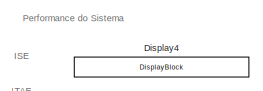
[diagram: root canvas - part 1/5, top center region]
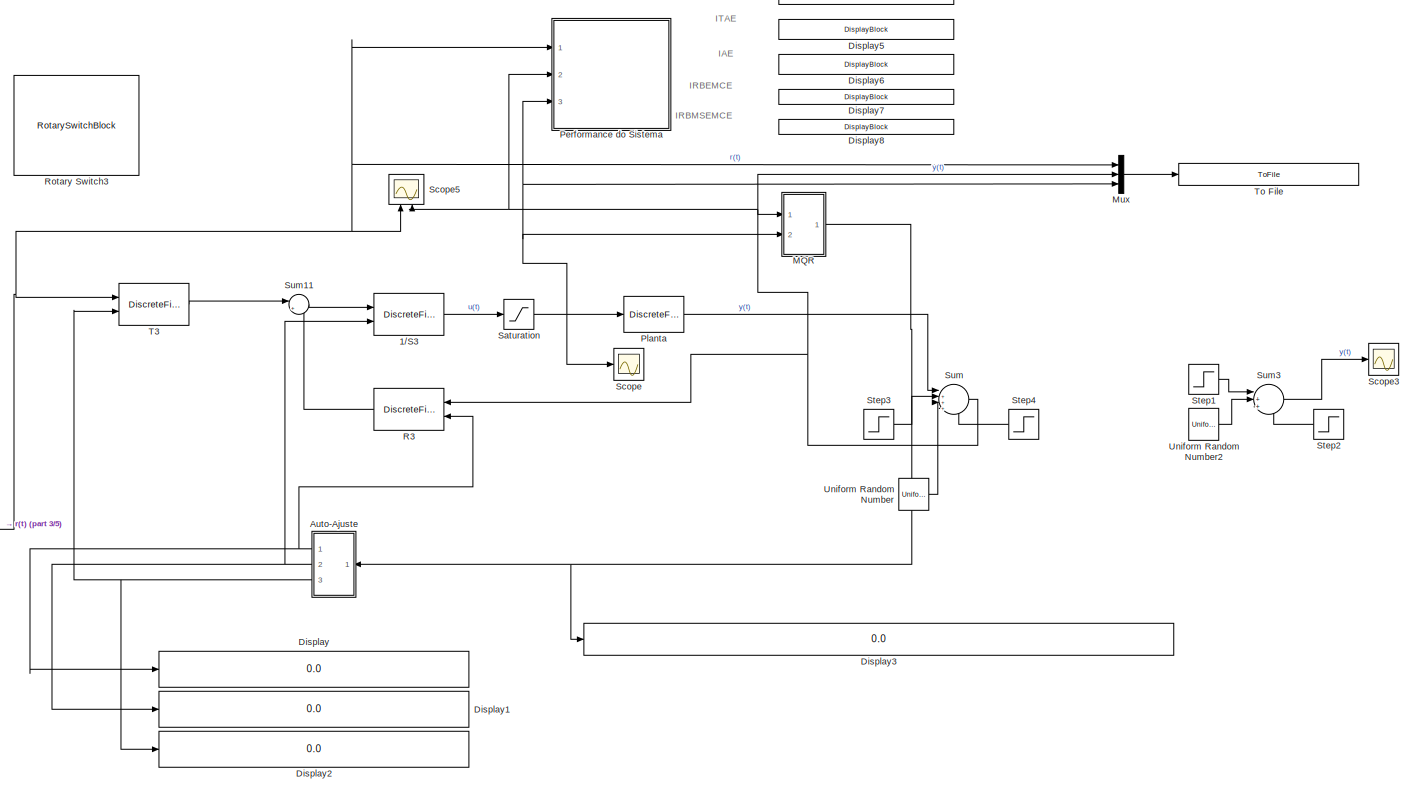
[diagram: root canvas - part 2/5, full width, top band]
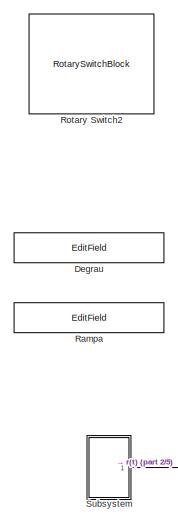
[diagram: root canvas - part 3/5, top left region]
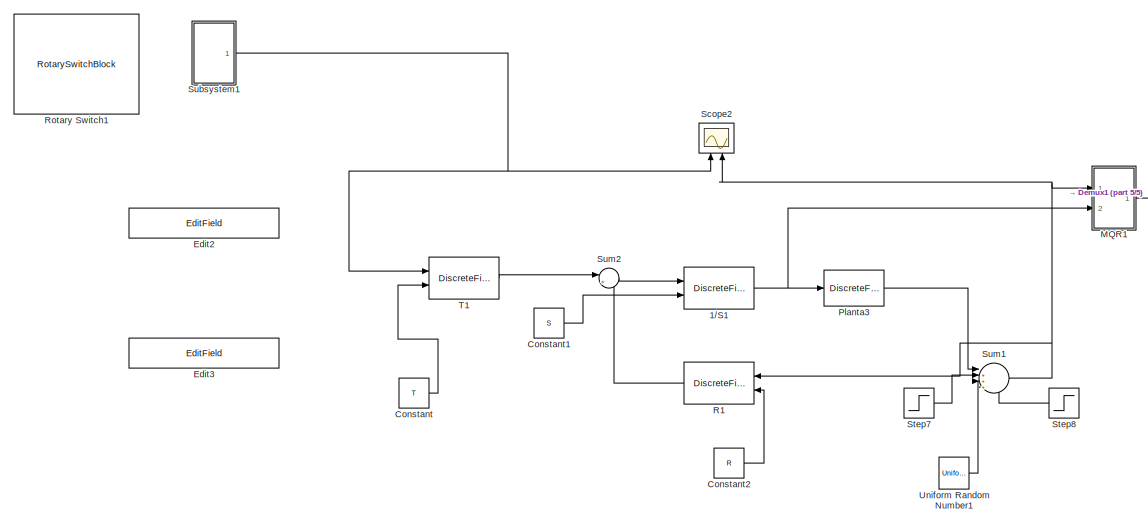
[diagram: root canvas - part 4/5, bottom center region]
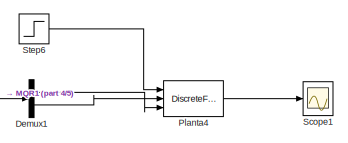
[diagram: root canvas - part 5/5, bottom right region]
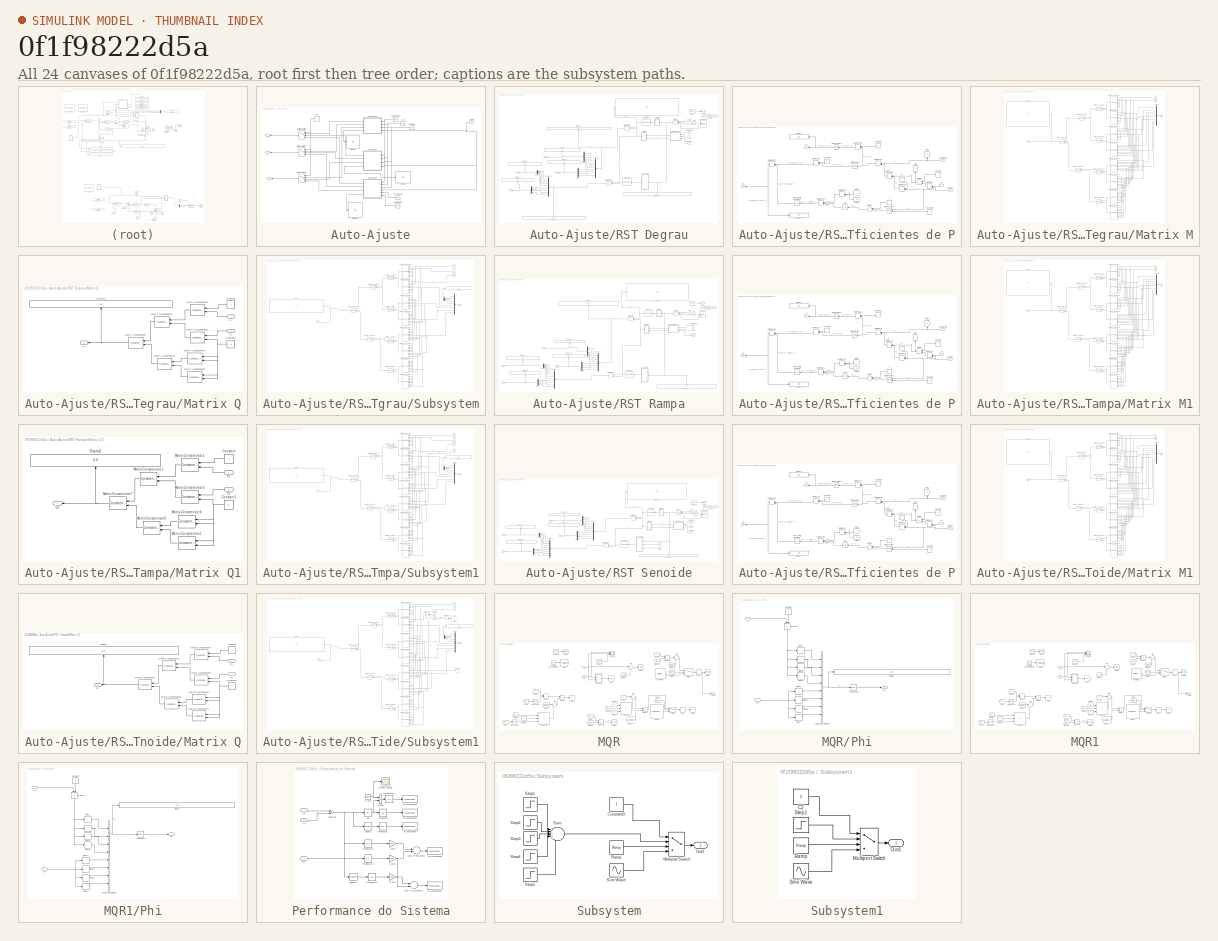
[diagram: thumbnail index - all 24 canvases of the model, root first then tree order]
MODEL slx_0f1f98222d5a
KIND model
CONFIG AbsTol = auto
CONFIG EnableMultiTasking = off
CONFIG FixedStep = auto
CONFIG MaxStep = auto
CONFIG MinStep = auto
CONFIG RelTol = 1e-3
CONFIG SampleTimeConstraint = Unconstrained
CONFIG Solver = FixedStepAuto
CONFIG SolverName = FixedStepAuto
CONFIG StartTime = 0.0
CONFIG StopTime = 200
BLOCK [DiscreteFilter] 1//S1
  Commented = on
  Denominator = 1
  DenominatorSource = Input port
  InputPortMap = u0,p3
  Numerator = 1
  Ports = [2, 1]
  SampleTime = Ta
  a0EqualsOne = on
BLOCK [DiscreteFilter] 1//S3
  Denominator = 1
  DenominatorSource = Input port
  InputPortMap = u0,p3
  Numerator = 1
  Ports = [2, 1]
  SampleTime = Ta
  a0EqualsOne = on
BLOCK [SubSystem] Auto-Ajuste
  Ports = [1, 3]
  RequestExecContextInheritance = off
BLOCK [Constant] Auto-Ajuste/Damping3
  Value = ep
BLOCK [Display] Auto-Ajuste/Display
  Decimation = 1
  Ports = [1]
BLOCK [Display] Auto-Ajuste/Display1
  Decimation = 1
  Ports = [1]
BLOCK [Display] Auto-Ajuste/Display2
  Decimation = 1
  Ports = [1]
BLOCK [Constant] Auto-Ajuste/Frequência
  Value = w0
BLOCK [Constant] Auto-Ajuste/MC
BLOCK [MultiPortSwitch] Auto-Ajuste/Multiport Switch
  InputSameDT = off
  Ports = [4, 1]
  SaturateOnIntegerOverflow = off
BLOCK [MultiPortSwitch] Auto-Ajuste/Multiport Switch1
  InputSameDT = off
  Ports = [4, 1]
  SaturateOnIntegerOverflow = off
BLOCK [MultiPortSwitch] Auto-Ajuste/Multiport Switch2
  InputSameDT = off
  Ports = [4, 1]
  SaturateOnIntegerOverflow = off
BLOCK [Outport] Auto-Ajuste/R
  IconDisplay = Port number
BLOCK [SubSystem] Auto-Ajuste/RST Degrau
  Ports = [4, 4]
  RequestExecContextInheritance = off
BLOCK [Reference] Auto-Ajuste/RST Degrau/ LU Inverse  REF=dspinverses/ LU Inverse
  Ports = [1, 1]
  SourceBlock = dspinverses/ LU Inverse
  SourceProductBaseCode = DS
  SourceProductName = DSP System Toolbox
  SourceType = LU Inverse
BLOCK [Reference] Auto-Ajuste/RST Degrau/ LU Inverse1  REF=dspinverses/ LU Inverse
  Ports = [1, 1]
  SourceBlock = dspinverses/ LU Inverse
  SourceProductBaseCode = DS
  SourceProductName = DSP System Toolbox
  SourceType = LU Inverse
BLOCK [Clock] Auto-Ajuste/RST Degrau/Clock
  DisplayTime = on
BLOCK [SubSystem] Auto-Ajuste/RST Degrau/Coeficientes de P
  Ports = [3, 2]
  RequestExecContextInheritance = off
BLOCK [Constant] Auto-Ajuste/RST Degrau/Coeficientes de P/ 
  Value = -1
BLOCK [Constant] Auto-Ajuste/RST Degrau/Coeficientes de P/1
BLOCK [Constant] Auto-Ajuste/RST Degrau/Coeficientes de P/Constant
  Value = 4
BLOCK [Constant] Auto-Ajuste/RST Degrau/Coeficientes de P/Constant1
  Value = -2
BLOCK [Constant] Auto-Ajuste/RST Degrau/Coeficientes de P/Constant2
  Value = 2
BLOCK [Constant] Auto-Ajuste/RST Degrau/Coeficientes de P/Constant3
  Value = 2
BLOCK [Inport] Auto-Ajuste/RST Degrau/Coeficientes de P/Damping
  IconDisplay = Port number
  Port = 3
BLOCK [Display] Auto-Ajuste/RST Degrau/Coeficientes de P/Display1
  Decimation = 1
  Ports = [1]
BLOCK [Display] Auto-Ajuste/RST Degrau/Coeficientes de P/Display3
  Decimation = 1
  Ports = [1]
BLOCK [Product] Auto-Ajuste/RST Degrau/Coeficientes de P/Divide
  InputSameDT = off
  Inputs = */
  OutDataTypeStr = Inherit: Inherit via internal rule
  Ports = [2, 1]
  RndMeth = Floor
  SaturateOnIntegerOverflow = off
BLOCK [DotProduct] Auto-Ajuste/RST Degrau/Coeficientes de P/Dot Product
  OutDataTypeStr = Inherit: Inherit via internal rule
BLOCK [DotProduct] Auto-Ajuste/RST Degrau/Coeficientes de P/Dot Product1
  OutDataTypeStr = Inherit: Inherit via internal rule
BLOCK [DotProduct] Auto-Ajuste/RST Degrau/Coeficientes de P/Dot Product2
  OutDataTypeStr = Inherit: Inherit via internal rule
BLOCK [DotProduct] Auto-Ajuste/RST Degrau/Coeficientes de P/Dot Product3
  OutDataTypeStr = Inherit: Inherit via internal rule
BLOCK [DotProduct] Auto-Ajuste/RST Degrau/Coeficientes de P/Dot Product4
  OutDataTypeStr = Inherit: Inherit via internal rule
BLOCK [DotProduct] Auto-Ajuste/RST Degrau/Coeficientes de P/Dot Product5
  OutDataTypeStr = Inherit: Inherit via internal rule
BLOCK [DotProduct] Auto-Ajuste/RST Degrau/Coeficientes de P/Dot Product6
  OutDataTypeStr = Inherit: Inherit via internal rule
BLOCK [DotProduct] Auto-Ajuste/RST Degrau/Coeficientes de P/Dot Product7
  OutDataTypeStr = Inherit: Inherit via internal rule
BLOCK [DotProduct] Auto-Ajuste/RST Degrau/Coeficientes de P/Dot Product8
  OutDataTypeStr = Inherit: Inherit via internal rule
BLOCK [From] Auto-Ajuste/RST Degrau/Coeficientes de P/From
BLOCK [From] Auto-Ajuste/RST Degrau/Coeficientes de P/From1
  GotoTag = B
BLOCK [Goto] Auto-Ajuste/RST Degrau/Coeficientes de P/Goto
BLOCK [Goto] Auto-Ajuste/RST Degrau/Coeficientes de P/Goto1
  GotoTag = B
BLOCK [Math] Auto-Ajuste/RST Degrau/Coeficientes de P/Math Function
  Ports = [1, 1]
BLOCK [Math] Auto-Ajuste/RST Degrau/Coeficientes de P/Math Function1
  Operator = pow
  Ports = [2, 1]
BLOCK [Math] Auto-Ajuste/RST Degrau/Coeficientes de P/Math Function2
  Ports = [1, 1]
BLOCK [Outport] Auto-Ajuste/RST Degrau/Coeficientes de P/P1
  IconDisplay = Port number
BLOCK [Outport] Auto-Ajuste/RST Degrau/Coeficientes de P/P2
  IconDisplay = Port number
  Port = 2
BLOCK [Inport] Auto-Ajuste/RST Degrau/Coeficientes de P/Sample Time
  IconDisplay = Port number
BLOCK [Sqrt] Auto-Ajuste/RST Degrau/Coeficientes de P/Sqrt
BLOCK [Sum] Auto-Ajuste/RST Degrau/Coeficientes de P/Subtract
  InputSameDT = off
  Inputs = +-
  OutDataTypeStr = Inherit: Inherit via internal rule
  Ports = [2, 1]
  SaturateOnIntegerOverflow = off
BLOCK [Trigonometry] Auto-Ajuste/RST Degrau/Coeficientes de P/Trigonometric Function1
  Operator = cos
  Ports = [1, 1]
BLOCK [Inport] Auto-Ajuste/RST Degrau/Coeficientes de P/Ts
  IconDisplay = Port number
  Port = 2
BLOCK [Inport] Auto-Ajuste/RST Degrau/Damping
  IconDisplay = Port number
  Port = 3
BLOCK [Demux] Auto-Ajuste/RST Degrau/Demux
  DisplayOption = bar
  Outputs = 8
  Ports = [1, 8]
BLOCK [Demux] Auto-Ajuste/RST Degrau/Demux1
  DisplayOption = bar
  Outputs = 8
  Ports = [1, 8]
BLOCK [Display] Auto-Ajuste/RST Degrau/Display
  Decimation = 1
  Ports = [1]
BLOCK [Display] Auto-Ajuste/RST Degrau/Display1
  Decimation = 1
  Ports = [1]
BLOCK [Display] Auto-Ajuste/RST Degrau/Display2
  Decimation = 1
  Ports = [1]
BLOCK [Display] Auto-Ajuste/RST Degrau/Display3
  Decimation = 1
  Ports = [1]
BLOCK [Display] Auto-Ajuste/RST Degrau/Display4
  Decimation = 1
  Ports = [1]
BLOCK [Display] Auto-Ajuste/RST Degrau/Display7
  Decimation = 1
  Ports = [1]
BLOCK [Display] Auto-Ajuste/RST Degrau/Display8
  Decimation = 1
  Ports = [1]
BLOCK [Display] Auto-Ajuste/RST Degrau/Display9
  Decimation = 1
  Ports = [1]
BLOCK [From] Auto-Ajuste/RST Degrau/From
  GotoTag = Clock3
BLOCK [Goto] Auto-Ajuste/RST Degrau/Goto
  GotoTag = Clock3
BLOCK [Outport] Auto-Ajuste/RST Degrau/L
  IconDisplay = Port number
  Port = 4
BLOCK [SubSystem] Auto-Ajuste/RST Degrau/Matrix M
  Ports = [1, 1]
  RequestExecContextInheritance = off
BLOCK [Constant] Auto-Ajuste/RST Degrau/Matrix M/ 1
  Value = 0
BLOCK [Constant] Auto-Ajuste/RST Degrau/Matrix M/2
BLOCK [Demux] Auto-Ajuste/RST Degrau/Matrix M/Demux
  DisplayOption = bar
  Outputs = 8
  Ports = [1, 8]
BLOCK [Display] Auto-Ajuste/RST Degrau/Matrix M/Display1
  Decimation = 1
  Ports = [1]
BLOCK [Inport] Auto-Ajuste/RST Degrau/Matrix M/In1
  IconDisplay = Port number
BLOCK [Outport] Auto-Ajuste/RST Degrau/Matrix M/M
  IconDisplay = Port number
BLOCK [Concatenate] Auto-Ajuste/RST Degrau/Matrix M/Matrix Concatenate1
  ConcatenateDimension = 2
  Mode = Multidimensional array
  NumInputs = 8
  Ports = [8, 1]
BLOCK [Concatenate] Auto-Ajuste/RST Degrau/Matrix M/Matrix Concatenate10
  Mode = Multidimensional array
  Ports = [2, 1]
BLOCK [Concatenate] Auto-Ajuste/RST Degrau/Matrix M/Matrix Concatenate11
  Mode = Multidimensional array
  Ports = [2, 1]
BLOCK [Concatenate] Auto-Ajuste/RST Degrau/Matrix M/Matrix Concatenate12
  Mode = Multidimensional array
  Ports = [2, 1]
BLOCK [Concatenate] Auto-Ajuste/RST Degrau/Matrix M/Matrix Concatenate13
  Mode = Multidimensional array
  Ports = [2, 1]
BLOCK [Concatenate] Auto-Ajuste/RST Degrau/Matrix M/Matrix Concatenate14
  Mode = Multidimensional array
  Ports = [2, 1]
BLOCK [Concatenate] Auto-Ajuste/RST Degrau/Matrix M/Matrix Concatenate15
  Mode = Multidimensional array
  Ports = [2, 1]
BLOCK [Concatenate] Auto-Ajuste/RST Degrau/Matrix M/Matrix Concatenate2
  ConcatenateDimension = 2
  Mode = Multidimensional array
  NumInputs = 8
  Ports = [8, 1]
BLOCK [Concatenate] Auto-Ajuste/RST Degrau/Matrix M/Matrix Concatenate3
  ConcatenateDimension = 2
  Mode = Multidimensional array
  NumInputs = 8
  Ports = [8, 1]
BLOCK [Concatenate] Auto-Ajuste/RST Degrau/Matrix M/Matrix Concatenate4
  ConcatenateDimension = 2
  Mode = Multidimensional array
  NumInputs = 8
  Ports = [8, 1]
BLOCK [Concatenate] Auto-Ajuste/RST Degrau/Matrix M/Matrix Concatenate5
  ConcatenateDimension = 2
  Mode = Multidimensional array
  NumInputs = 8
  Ports = [8, 1]
BLOCK [Concatenate] Auto-Ajuste/RST Degrau/Matrix M/Matrix Concatenate6
  ConcatenateDimension = 2
  Mode = Multidimensional array
  NumInputs = 8
  Ports = [8, 1]
BLOCK [Concatenate] Auto-Ajuste/RST Degrau/Matrix M/Matrix Concatenate7
  ConcatenateDimension = 2
  Mode = Multidimensional array
  NumInputs = 8
  Ports = [8, 1]
BLOCK [Concatenate] Auto-Ajuste/RST Degrau/Matrix M/Matrix Concatenate8
  ConcatenateDimension = 2
  Mode = Multidimensional array
  NumInputs = 8
  Ports = [8, 1]
BLOCK [Concatenate] Auto-Ajuste/RST Degrau/Matrix M/Matrix Concatenate9
  Mode = Multidimensional array
  Ports = [2, 1]
BLOCK [Product] Auto-Ajuste/RST Degrau/Matrix Multiply
  InputSameDT = off
  Multiplication = Matrix(*)
  OutDataTypeStr = Inherit: Inherit via internal rule
  Ports = [2, 1]
  RndMeth = Floor
  SaturateOnIntegerOverflow = off
BLOCK [Product] Auto-Ajuste/RST Degrau/Matrix Multiply1
  InputSameDT = off
  Multiplication = Matrix(*)
  OutDataTypeStr = Inherit: Inherit via internal rule
  Ports = [2, 1]
  RndMeth = Floor
  SaturateOnIntegerOverflow = off
BLOCK [SubSystem] Auto-Ajuste/RST Degrau/Matrix Q
  Ports = [2, 1]
  RequestExecContextInheritance = off
BLOCK [Constant] Auto-Ajuste/RST Degrau/Matrix Q/Constant
BLOCK [Constant] Auto-Ajuste/RST Degrau/Matrix Q/Constant1
  Value = 0
BLOCK [Display] Auto-Ajuste/RST Degrau/Matrix Q/Display1
  Decimation = 1
  Ports = [1]
BLOCK [Concatenate] Auto-Ajuste/RST Degrau/Matrix Q/Matrix Concatenate1
  Mode = Multidimensional array
  Ports = [2, 1]
BLOCK [Concatenate] Auto-Ajuste/RST Degrau/Matrix Q/Matrix Concatenate2
  Mode = Multidimensional array
  Ports = [2, 1]
BLOCK [Concatenate] Auto-Ajuste/RST Degrau/Matrix Q/Matrix Concatenate3
  Mode = Multidimensional array
  Ports = [2, 1]
BLOCK [Concatenate] Auto-Ajuste/RST Degrau/Matrix Q/Matrix Concatenate4
  Mode = Multidimensional array
  Ports = [2, 1]
BLOCK [Concatenate] Auto-Ajuste/RST Degrau/Matrix Q/Matrix Concatenate5
  Mode = Multidimensional array
  Ports = [2, 1]
BLOCK [Concatenate] Auto-Ajuste/RST Degrau/Matrix Q/Matrix Concatenate6
  Mode = Multidimensional array
  Ports = [2, 1]
BLOCK [Concatenate] Auto-Ajuste/RST Degrau/Matrix Q/Matrix Concatenate7
  Mode = Multidimensional array
  Ports = [2, 1]
BLOCK [Inport] Auto-Ajuste/RST Degrau/Matrix Q/P1
  IconDisplay = Port number
BLOCK [Inport] Auto-Ajuste/RST Degrau/Matrix Q/P2
  IconDisplay = Port number
  Port = 2
BLOCK [Outport] Auto-Ajuste/RST Degrau/Matrix Q/Q1
  IconDisplay = Port number
BLOCK [Mux] Auto-Ajuste/RST Degrau/Mux
  DisplayOption = bar
  Ports = [4, 1]
BLOCK [Mux] Auto-Ajuste/RST Degrau/Mux1
  DisplayOption = bar
  Ports = [4, 1]
BLOCK [Mux] Auto-Ajuste/RST Degrau/Mux2
  DisplayOption = bar
  Ports = [4, 1]
BLOCK [Mux] Auto-Ajuste/RST Degrau/Mux3
  DisplayOption = bar
  Ports = [4, 1]
BLOCK [Outport] Auto-Ajuste/RST Degrau/R
  IconDisplay = Port number
BLOCK [Outport] Auto-Ajuste/RST Degrau/S
  IconDisplay = Port number
  Port = 2
BLOCK [Inport] Auto-Ajuste/RST Degrau/Sample Time
  IconDisplay = Port number
BLOCK [SubSystem] Auto-Ajuste/RST Degrau/Subsystem
  Ports = [1, 1]
  RequestExecContextInheritance = off
BLOCK [Constant] Auto-Ajuste/RST Degrau/Subsystem/0
  Value = 0
BLOCK [Demux] Auto-Ajuste/RST Degrau/Subsystem/Demux
  DisplayOption = bar
  Outputs = 8
  Ports = [1, 8]
BLOCK [Display] Auto-Ajuste/RST Degrau/Subsystem/Display1
  Decimation = 1
  Ports = [1]
BLOCK [Display] Auto-Ajuste/RST Degrau/Subsystem/Display3
  Decimation = 1
  Ports = [1]
BLOCK [Outport] Auto-Ajuste/RST Degrau/Subsystem/M2
  IconDisplay = Port number
BLOCK [Concatenate] Auto-Ajuste/RST Degrau/Subsystem/Matrix Concatenate1
  ConcatenateDimension = 2
  Mode = Multidimensional array
  NumInputs = 8
  Ports = [8, 1]
BLOCK [Concatenate] Auto-Ajuste/RST Degrau/Subsystem/Matrix Concatenate10
  Mode = Multidimensional array
  Ports = [2, 1]
BLOCK [Concatenate] Auto-Ajuste/RST Degrau/Subsystem/Matrix Concatenate11
  Mode = Multidimensional array
  Ports = [2, 1]
BLOCK [Concatenate] Auto-Ajuste/RST Degrau/Subsystem/Matrix Concatenate15
  Mode = Multidimensional array
  Ports = [2, 1]
BLOCK [Concatenate] Auto-Ajuste/RST Degrau/Subsystem/Matrix Concatenate16
  ConcatenateDimension = 2
  Mode = Multidimensional array
  NumInputs = 8
  Ports = [8, 1]
BLOCK [Concatenate] Auto-Ajuste/RST Degrau/Subsystem/Matrix Concatenate17
  ConcatenateDimension = 2
  Mode = Multidimensional array
  NumInputs = 8
  Ports = [8, 1]
BLOCK [Concatenate] Auto-Ajuste/RST Degrau/Subsystem/Matrix Concatenate18
  ConcatenateDimension = 2
  Mode = Multidimensional array
  NumInputs = 8
  Ports = [8, 1]
BLOCK [Concatenate] Auto-Ajuste/RST Degrau/Subsystem/Matrix Concatenate19
  ConcatenateDimension = 2
  Mode = Multidimensional array
  NumInputs = 8
  Ports = [8, 1]
BLOCK [Concatenate] Auto-Ajuste/RST Degrau/Subsystem/Matrix Concatenate20
  ConcatenateDimension = 2
  Mode = Multidimensional array
  NumInputs = 8
  Ports = [8, 1]
BLOCK [Concatenate] Auto-Ajuste/RST Degrau/Subsystem/Matrix Concatenate21
  ConcatenateDimension = 2
  Mode = Multidimensional array
  NumInputs = 8
  Ports = [8, 1]
BLOCK [Concatenate] Auto-Ajuste/RST Degrau/Subsystem/Matrix Concatenate22
  Mode = Multidimensional array
  Ports = [2, 1]
BLOCK [Concatenate] Auto-Ajuste/RST Degrau/Subsystem/Matrix Concatenate3
  Mode = Multidimensional array
  Ports = [2, 1]
BLOCK [Concatenate] Auto-Ajuste/RST Degrau/Subsystem/Matrix Concatenate7
  Mode = Multidimensional array
  Ports = [2, 1]
BLOCK [Concatenate] Auto-Ajuste/RST Degrau/Subsystem/Matrix Concatenate8
  Mode = Multidimensional array
  Ports = [2, 1]
BLOCK [Concatenate] Auto-Ajuste/RST Degrau/Subsystem/Matrix Concatenate9
  ConcatenateDimension = 2
  Mode = Multidimensional array
  NumInputs = 8
  Ports = [8, 1]
BLOCK [Mux] Auto-Ajuste/RST Degrau/Subsystem/Mux
  DisplayOption = bar
  Ports = [4, 1]
BLOCK [Inport] Auto-Ajuste/RST Degrau/Subsystem/Theta
  IconDisplay = Port number
BLOCK [Constant] Auto-Ajuste/RST Degrau/Subsystem/X1(1)
BLOCK [Constant] Auto-Ajuste/RST Degrau/Subsystem/X1(2)
  Value = -1
BLOCK [Switch] Auto-Ajuste/RST Degrau/Switch1
  Criteria = u2 > Threshold
  InputSameDT = off
  SaturateOnIntegerOverflow = off
  Threshold = theta_switch_time
BLOCK [Outport] Auto-Ajuste/RST Degrau/T
  IconDisplay = Port number
  Port = 3
BLOCK [Inport] Auto-Ajuste/RST Degrau/Theta
  IconDisplay = Port number
  Port = 4
BLOCK [Constant] Auto-Ajuste/RST Degrau/Theta Inicial
  Value = initial_theta
BLOCK [Inport] Auto-Ajuste/RST Degrau/Ts
  IconDisplay = Port number
  Port = 2
BLOCK [SubSystem] Auto-Ajuste/RST Rampa
  Ports = [4, 4]
  RequestExecContextInheritance = off
BLOCK [Reference] Auto-Ajuste/RST Rampa/ LU Inverse  REF=dspinverses/ LU Inverse
  Ports = [1, 1]
  SourceBlock = dspinverses/ LU Inverse
  SourceProductBaseCode = DS
  SourceProductName = DSP System Toolbox
  SourceType = LU Inverse
BLOCK [Reference] Auto-Ajuste/RST Rampa/ LU Inverse2  REF=dspinverses/ LU Inverse
  Ports = [1, 1]
  SourceBlock = dspinverses/ LU Inverse
  SourceProductBaseCode = DS
  SourceProductName = DSP System Toolbox
  SourceType = LU Inverse
BLOCK [Clock] Auto-Ajuste/RST Rampa/Clock
  DisplayTime = on
BLOCK [SubSystem] Auto-Ajuste/RST Rampa/Coeficientes de P
  Ports = [3, 2]
  RequestExecContextInheritance = off
BLOCK [Constant] Auto-Ajuste/RST Rampa/Coeficientes de P/ 
  Value = -1
BLOCK [Constant] Auto-Ajuste/RST Rampa/Coeficientes de P/1
BLOCK [Constant] Auto-Ajuste/RST Rampa/Coeficientes de P/Constant
  Value = 4
BLOCK [Constant] Auto-Ajuste/RST Rampa/Coeficientes de P/Constant1
  Value = -2
BLOCK [Constant] Auto-Ajuste/RST Rampa/Coeficientes de P/Constant2
  Value = 2
BLOCK [Constant] Auto-Ajuste/RST Rampa/Coeficientes de P/Constant3
  Value = 2
BLOCK [Inport] Auto-Ajuste/RST Rampa/Coeficientes de P/Damping
  IconDisplay = Port number
  Port = 3
BLOCK [Display] Auto-Ajuste/RST Rampa/Coeficientes de P/Display1
  Decimation = 1
  Ports = [1]
BLOCK [Display] Auto-Ajuste/RST Rampa/Coeficientes de P/Display3
  Decimation = 1
  Ports = [1]
BLOCK [Product] Auto-Ajuste/RST Rampa/Coeficientes de P/Divide
  InputSameDT = off
  Inputs = */
  OutDataTypeStr = Inherit: Inherit via internal rule
  Ports = [2, 1]
  RndMeth = Floor
  SaturateOnIntegerOverflow = off
BLOCK [DotProduct] Auto-Ajuste/RST Rampa/Coeficientes de P/Dot Product
  OutDataTypeStr = Inherit: Inherit via internal rule
BLOCK [DotProduct] Auto-Ajuste/RST Rampa/Coeficientes de P/Dot Product1
  OutDataTypeStr = Inherit: Inherit via internal rule
BLOCK [DotProduct] Auto-Ajuste/RST Rampa/Coeficientes de P/Dot Product2
  OutDataTypeStr = Inherit: Inherit via internal rule
BLOCK [DotProduct] Auto-Ajuste/RST Rampa/Coeficientes de P/Dot Product3
  OutDataTypeStr = Inherit: Inherit via internal rule
BLOCK [DotProduct] Auto-Ajuste/RST Rampa/Coeficientes de P/Dot Product4
  OutDataTypeStr = Inherit: Inherit via internal rule
BLOCK [DotProduct] Auto-Ajuste/RST Rampa/Coeficientes de P/Dot Product5
  OutDataTypeStr = Inherit: Inherit via internal rule
BLOCK [DotProduct] Auto-Ajuste/RST Rampa/Coeficientes de P/Dot Product6
  OutDataTypeStr = Inherit: Inherit via internal rule
BLOCK [DotProduct] Auto-Ajuste/RST Rampa/Coeficientes de P/Dot Product7
  OutDataTypeStr = Inherit: Inherit via internal rule
BLOCK [DotProduct] Auto-Ajuste/RST Rampa/Coeficientes de P/Dot Product8
  OutDataTypeStr = Inherit: Inherit via internal rule
BLOCK [From] Auto-Ajuste/RST Rampa/Coeficientes de P/From
BLOCK [From] Auto-Ajuste/RST Rampa/Coeficientes de P/From1
  GotoTag = B
BLOCK [Goto] Auto-Ajuste/RST Rampa/Coeficientes de P/Goto
BLOCK [Goto] Auto-Ajuste/RST Rampa/Coeficientes de P/Goto1
  GotoTag = B
BLOCK [Math] Auto-Ajuste/RST Rampa/Coeficientes de P/Math Function
  Ports = [1, 1]
BLOCK [Math] Auto-Ajuste/RST Rampa/Coeficientes de P/Math Function1
  Operator = pow
  Ports = [2, 1]
BLOCK [Math] Auto-Ajuste/RST Rampa/Coeficientes de P/Math Function2
  Ports = [1, 1]
BLOCK [Outport] Auto-Ajuste/RST Rampa/Coeficientes de P/P1
  IconDisplay = Port number
BLOCK [Outport] Auto-Ajuste/RST Rampa/Coeficientes de P/P2
  IconDisplay = Port number
  Port = 2
BLOCK [Inport] Auto-Ajuste/RST Rampa/Coeficientes de P/Sample Time
  IconDisplay = Port number
BLOCK [Sqrt] Auto-Ajuste/RST Rampa/Coeficientes de P/Sqrt
BLOCK [Sum] Auto-Ajuste/RST Rampa/Coeficientes de P/Subtract
  InputSameDT = off
  Inputs = +-
  OutDataTypeStr = Inherit: Inherit via internal rule
  Ports = [2, 1]
  SaturateOnIntegerOverflow = off
BLOCK [Trigonometry] Auto-Ajuste/RST Rampa/Coeficientes de P/Trigonometric Function1
  Operator = cos
  Ports = [1, 1]
BLOCK [Inport] Auto-Ajuste/RST Rampa/Coeficientes de P/Ts
  IconDisplay = Port number
  Port = 2
BLOCK [Inport] Auto-Ajuste/RST Rampa/Damping
  IconDisplay = Port number
  Port = 3
BLOCK [Demux] Auto-Ajuste/RST Rampa/Demux2
  DisplayOption = bar
  Outputs = 8
  Ports = [1, 8]
BLOCK [Demux] Auto-Ajuste/RST Rampa/Demux3
  DisplayOption = bar
  Outputs = 8
  Ports = [1, 8]
BLOCK [Display] Auto-Ajuste/RST Rampa/Display
  Decimation = 1
  Ports = [1]
BLOCK [Display] Auto-Ajuste/RST Rampa/Display1
  Decimation = 1
  Ports = [1]
BLOCK [Display] Auto-Ajuste/RST Rampa/Display12
  Decimation = 1
  Ports = [1]
BLOCK [Display] Auto-Ajuste/RST Rampa/Display13
  Decimation = 1
  Ports = [1]
BLOCK [Display] Auto-Ajuste/RST Rampa/Display14
  Decimation = 1
  Ports = [1]
BLOCK [Display] Auto-Ajuste/RST Rampa/Display6
  Decimation = 1
  Ports = [1]
BLOCK [Display] Auto-Ajuste/RST Rampa/Display7
  Decimation = 1
  Ports = [1]
BLOCK [From] Auto-Ajuste/RST Rampa/From
  GotoTag = Clock3
BLOCK [Goto] Auto-Ajuste/RST Rampa/Goto
  GotoTag = Clock3
BLOCK [Outport] Auto-Ajuste/RST Rampa/L
  IconDisplay = Port number
  Port = 4
BLOCK [SubSystem] Auto-Ajuste/RST Rampa/Matrix M1
  Ports = [1, 1]
  RequestExecContextInheritance = off
BLOCK [Constant] Auto-Ajuste/RST Rampa/Matrix M1/ 1
  Value = 0
BLOCK [Constant] Auto-Ajuste/RST Rampa/Matrix M1/2
BLOCK [Demux] Auto-Ajuste/RST Rampa/Matrix M1/Demux
  DisplayOption = bar
  Outputs = 8
  Ports = [1, 8]
BLOCK [Display] Auto-Ajuste/RST Rampa/Matrix M1/Display1
  Decimation = 1
  Ports = [1]
BLOCK [Inport] Auto-Ajuste/RST Rampa/Matrix M1/In1
  IconDisplay = Port number
BLOCK [Outport] Auto-Ajuste/RST Rampa/Matrix M1/M
  IconDisplay = Port number
BLOCK [Concatenate] Auto-Ajuste/RST Rampa/Matrix M1/Matrix Concatenate1
  ConcatenateDimension = 2
  Mode = Multidimensional array
  NumInputs = 8
  Ports = [8, 1]
BLOCK [Concatenate] Auto-Ajuste/RST Rampa/Matrix M1/Matrix Concatenate10
  Mode = Multidimensional array
  Ports = [2, 1]
BLOCK [Concatenate] Auto-Ajuste/RST Rampa/Matrix M1/Matrix Concatenate11
  Mode = Multidimensional array
  Ports = [2, 1]
BLOCK [Concatenate] Auto-Ajuste/RST Rampa/Matrix M1/Matrix Concatenate12
  Mode = Multidimensional array
  Ports = [2, 1]
BLOCK [Concatenate] Auto-Ajuste/RST Rampa/Matrix M1/Matrix Concatenate13
  Mode = Multidimensional array
  Ports = [2, 1]
BLOCK [Concatenate] Auto-Ajuste/RST Rampa/Matrix M1/Matrix Concatenate14
  Mode = Multidimensional array
  Ports = [2, 1]
BLOCK [Concatenate] Auto-Ajuste/RST Rampa/Matrix M1/Matrix Concatenate15
  Mode = Multidimensional array
  Ports = [2, 1]
BLOCK [Concatenate] Auto-Ajuste/RST Rampa/Matrix M1/Matrix Concatenate2
  ConcatenateDimension = 2
  Mode = Multidimensional array
  NumInputs = 8
  Ports = [8, 1]
BLOCK [Concatenate] Auto-Ajuste/RST Rampa/Matrix M1/Matrix Concatenate3
  ConcatenateDimension = 2
  Mode = Multidimensional array
  NumInputs = 8
  Ports = [8, 1]
BLOCK [Concatenate] Auto-Ajuste/RST Rampa/Matrix M1/Matrix Concatenate4
  ConcatenateDimension = 2
  Mode = Multidimensional array
  NumInputs = 8
  Ports = [8, 1]
BLOCK [Concatenate] Auto-Ajuste/RST Rampa/Matrix M1/Matrix Concatenate5
  ConcatenateDimension = 2
  Mode = Multidimensional array
  NumInputs = 8
  Ports = [8, 1]
BLOCK [Concatenate] Auto-Ajuste/RST Rampa/Matrix M1/Matrix Concatenate6
  ConcatenateDimension = 2
  Mode = Multidimensional array
  NumInputs = 8
  Ports = [8, 1]
BLOCK [Concatenate] Auto-Ajuste/RST Rampa/Matrix M1/Matrix Concatenate7
  ConcatenateDimension = 2
  Mode = Multidimensional array
  NumInputs = 8
  Ports = [8, 1]
BLOCK [Concatenate] Auto-Ajuste/RST Rampa/Matrix M1/Matrix Concatenate8
  ConcatenateDimension = 2
  Mode = Multidimensional array
  NumInputs = 8
  Ports = [8, 1]
BLOCK [Concatenate] Auto-Ajuste/RST Rampa/Matrix M1/Matrix Concatenate9
  Mode = Multidimensional array
  Ports = [2, 1]
BLOCK [Product] Auto-Ajuste/RST Rampa/Matrix Multiply
  InputSameDT = off
  Multiplication = Matrix(*)
  OutDataTypeStr = Inherit: Inherit via internal rule
  Ports = [2, 1]
  RndMeth = Floor
  SaturateOnIntegerOverflow = off
BLOCK [Product] Auto-Ajuste/RST Rampa/Matrix Multiply2
  InputSameDT = off
  Multiplication = Matrix(*)
  OutDataTypeStr = Inherit: Inherit via internal rule
  Ports = [2, 1]
  RndMeth = Floor
  SaturateOnIntegerOverflow = off
BLOCK [SubSystem] Auto-Ajuste/RST Rampa/Matrix Q1
  Ports = [2, 1]
  RequestExecContextInheritance = off
BLOCK [Constant] Auto-Ajuste/RST Rampa/Matrix Q1/Constant
BLOCK [Constant] Auto-Ajuste/RST Rampa/Matrix Q1/Constant1
  Value = 0
BLOCK [Display] Auto-Ajuste/RST Rampa/Matrix Q1/Display1
  Decimation = 1
  Ports = [1]
BLOCK [Concatenate] Auto-Ajuste/RST Rampa/Matrix Q1/Matrix Concatenate1
  Mode = Multidimensional array
  Ports = [2, 1]
BLOCK [Concatenate] Auto-Ajuste/RST Rampa/Matrix Q1/Matrix Concatenate2
  Mode = Multidimensional array
  Ports = [2, 1]
BLOCK [Concatenate] Auto-Ajuste/RST Rampa/Matrix Q1/Matrix Concatenate3
  Mode = Multidimensional array
  Ports = [2, 1]
BLOCK [Concatenate] Auto-Ajuste/RST Rampa/Matrix Q1/Matrix Concatenate4
  Mode = Multidimensional array
  Ports = [2, 1]
BLOCK [Concatenate] Auto-Ajuste/RST Rampa/Matrix Q1/Matrix Concatenate5
  Mode = Multidimensional array
  Ports = [2, 1]
BLOCK [Concatenate] Auto-Ajuste/RST Rampa/Matrix Q1/Matrix Concatenate6
  Mode = Multidimensional array
  Ports = [2, 1]
BLOCK [Concatenate] Auto-Ajuste/RST Rampa/Matrix Q1/Matrix Concatenate7
  Mode = Multidimensional array
  Ports = [2, 1]
BLOCK [Inport] Auto-Ajuste/RST Rampa/Matrix Q1/P1
  IconDisplay = Port number
BLOCK [Inport] Auto-Ajuste/RST Rampa/Matrix Q1/P2
  IconDisplay = Port number
  Port = 2
BLOCK [Outport] Auto-Ajuste/RST Rampa/Matrix Q1/Q1
  IconDisplay = Port number
BLOCK [Mux] Auto-Ajuste/RST Rampa/Mux4
  DisplayOption = bar
  Ports = [4, 1]
BLOCK [Mux] Auto-Ajuste/RST Rampa/Mux5
  DisplayOption = bar
  Ports = [4, 1]
BLOCK [Mux] Auto-Ajuste/RST Rampa/Mux6
  DisplayOption = bar
  Ports = [4, 1]
BLOCK [Mux] Auto-Ajuste/RST Rampa/Mux7
  DisplayOption = bar
  Ports = [4, 1]
BLOCK [Outport] Auto-Ajuste/RST Rampa/R
  IconDisplay = Port number
BLOCK [Outport] Auto-Ajuste/RST Rampa/S
  IconDisplay = Port number
  Port = 2
BLOCK [Inport] Auto-Ajuste/RST Rampa/Sample Time
  IconDisplay = Port number
BLOCK [SubSystem] Auto-Ajuste/RST Rampa/Subsystem1
  Ports = [1, 1]
  RequestExecContextInheritance = off
BLOCK [Constant] Auto-Ajuste/RST Rampa/Subsystem1/0
  Value = 0
BLOCK [Demux] Auto-Ajuste/RST Rampa/Subsystem1/Demux
  DisplayOption = bar
  Outputs = 8
  Ports = [1, 8]
BLOCK [Display] Auto-Ajuste/RST Rampa/Subsystem1/Display1
  Decimation = 1
  Ports = [1]
BLOCK [Display] Auto-Ajuste/RST Rampa/Subsystem1/Display3
  Decimation = 1
  Ports = [1]
BLOCK [Outport] Auto-Ajuste/RST Rampa/Subsystem1/M2
  IconDisplay = Port number
BLOCK [Concatenate] Auto-Ajuste/RST Rampa/Subsystem1/Matrix Concatenate1
  ConcatenateDimension = 2
  Mode = Multidimensional array
  NumInputs = 8
  Ports = [8, 1]
BLOCK [Concatenate] Auto-Ajuste/RST Rampa/Subsystem1/Matrix Concatenate10
  Mode = Multidimensional array
  Ports = [2, 1]
BLOCK [Concatenate] Auto-Ajuste/RST Rampa/Subsystem1/Matrix Concatenate11
  Mode = Multidimensional array
  Ports = [2, 1]
BLOCK [Concatenate] Auto-Ajuste/RST Rampa/Subsystem1/Matrix Concatenate15
  Mode = Multidimensional array
  Ports = [2, 1]
BLOCK [Concatenate] Auto-Ajuste/RST Rampa/Subsystem1/Matrix Concatenate16
  ConcatenateDimension = 2
  Mode = Multidimensional array
  NumInputs = 8
  Ports = [8, 1]
BLOCK [Concatenate] Auto-Ajuste/RST Rampa/Subsystem1/Matrix Concatenate17
  ConcatenateDimension = 2
  Mode = Multidimensional array
  NumInputs = 8
  Ports = [8, 1]
BLOCK [Concatenate] Auto-Ajuste/RST Rampa/Subsystem1/Matrix Concatenate18
  ConcatenateDimension = 2
  Mode = Multidimensional array
  NumInputs = 8
  Ports = [8, 1]
BLOCK [Concatenate] Auto-Ajuste/RST Rampa/Subsystem1/Matrix Concatenate19
  ConcatenateDimension = 2
  Mode = Multidimensional array
  NumInputs = 8
  Ports = [8, 1]
BLOCK [Concatenate] Auto-Ajuste/RST Rampa/Subsystem1/Matrix Concatenate20
  ConcatenateDimension = 2
  Mode = Multidimensional array
  NumInputs = 8
  Ports = [8, 1]
BLOCK [Concatenate] Auto-Ajuste/RST Rampa/Subsystem1/Matrix Concatenate21
  ConcatenateDimension = 2
  Mode = Multidimensional array
  NumInputs = 8
  Ports = [8, 1]
BLOCK [Concatenate] Auto-Ajuste/RST Rampa/Subsystem1/Matrix Concatenate22
  Mode = Multidimensional array
  Ports = [2, 1]
BLOCK [Concatenate] Auto-Ajuste/RST Rampa/Subsystem1/Matrix Concatenate3
  Mode = Multidimensional array
  Ports = [2, 1]
BLOCK [Concatenate] Auto-Ajuste/RST Rampa/Subsystem1/Matrix Concatenate7
  Mode = Multidimensional array
  Ports = [2, 1]
BLOCK [Concatenate] Auto-Ajuste/RST Rampa/Subsystem1/Matrix Concatenate8
  Mode = Multidimensional array
  Ports = [2, 1]
BLOCK [Concatenate] Auto-Ajuste/RST Rampa/Subsystem1/Matrix Concatenate9
  ConcatenateDimension = 2
  Mode = Multidimensional array
  NumInputs = 8
  Ports = [8, 1]
BLOCK [Mux] Auto-Ajuste/RST Rampa/Subsystem1/Mux
  DisplayOption = bar
  Ports = [4, 1]
BLOCK [Inport] Auto-Ajuste/RST Rampa/Subsystem1/Theta
  IconDisplay = Port number
BLOCK [Constant] Auto-Ajuste/RST Rampa/Subsystem1/X1(1)
BLOCK [Constant] Auto-Ajuste/RST Rampa/Subsystem1/X1(2)
  Value = -2
BLOCK [Constant] Auto-Ajuste/RST Rampa/Subsystem1/X1(3)
BLOCK [Switch] Auto-Ajuste/RST Rampa/Switch1
  Criteria = u2 > Threshold
  InputSameDT = off
  SaturateOnIntegerOverflow = off
  Threshold = theta_switch_time
BLOCK [Outport] Auto-Ajuste/RST Rampa/T
  IconDisplay = Port number
  Port = 3
BLOCK [Inport] Auto-Ajuste/RST Rampa/Theta
  IconDisplay = Port number
  Port = 4
BLOCK [Constant] Auto-Ajuste/RST Rampa/Theta Inicial
  Value = initial_theta
BLOCK [Inport] Auto-Ajuste/RST Rampa/Ts
  IconDisplay = Port number
  Port = 2
BLOCK [SubSystem] Auto-Ajuste/RST Senoide
  Ports = [6, 4]
  RequestExecContextInheritance = off
BLOCK [Reference] Auto-Ajuste/RST Senoide/ LU Inverse  REF=dspinverses/ LU Inverse
  Ports = [1, 1]
  SourceBlock = dspinverses/ LU Inverse
  SourceProductBaseCode = DS
  SourceProductName = DSP System Toolbox
  SourceType = LU Inverse
BLOCK [Reference] Auto-Ajuste/RST Senoide/ LU Inverse2  REF=dspinverses/ LU Inverse
  Ports = [1, 1]
  SourceBlock = dspinverses/ LU Inverse
  SourceProductBaseCode = DS
  SourceProductName = DSP System Toolbox
  SourceType = LU Inverse
BLOCK [Clock] Auto-Ajuste/RST Senoide/Clock
  DisplayTime = on
BLOCK [SubSystem] Auto-Ajuste/RST Senoide/Coeficientes de P
  Ports = [3, 2]
  RequestExecContextInheritance = off
BLOCK [Constant] Auto-Ajuste/RST Senoide/Coeficientes de P/ 
  Value = -1
BLOCK [Constant] Auto-Ajuste/RST Senoide/Coeficientes de P/1
BLOCK [Constant] Auto-Ajuste/RST Senoide/Coeficientes de P/Constant
  Value = 4
BLOCK [Constant] Auto-Ajuste/RST Senoide/Coeficientes de P/Constant1
  Value = -2
BLOCK [Constant] Auto-Ajuste/RST Senoide/Coeficientes de P/Constant2
  Value = 2
BLOCK [Constant] Auto-Ajuste/RST Senoide/Coeficientes de P/Constant3
  Value = 2
BLOCK [Inport] Auto-Ajuste/RST Senoide/Coeficientes de P/Damping
  IconDisplay = Port number
  Port = 3
BLOCK [Display] Auto-Ajuste/RST Senoide/Coeficientes de P/Display1
  Decimation = 1
  Ports = [1]
BLOCK [Display] Auto-Ajuste/RST Senoide/Coeficientes de P/Display3
  Decimation = 1
  Ports = [1]
BLOCK [Product] Auto-Ajuste/RST Senoide/Coeficientes de P/Divide
  InputSameDT = off
  Inputs = */
  OutDataTypeStr = Inherit: Inherit via internal rule
  Ports = [2, 1]
  RndMeth = Floor
  SaturateOnIntegerOverflow = off
BLOCK [DotProduct] Auto-Ajuste/RST Senoide/Coeficientes de P/Dot Product
  OutDataTypeStr = Inherit: Inherit via internal rule
BLOCK [DotProduct] Auto-Ajuste/RST Senoide/Coeficientes de P/Dot Product1
  OutDataTypeStr = Inherit: Inherit via internal rule
BLOCK [DotProduct] Auto-Ajuste/RST Senoide/Coeficientes de P/Dot Product2
  OutDataTypeStr = Inherit: Inherit via internal rule
BLOCK [DotProduct] Auto-Ajuste/RST Senoide/Coeficientes de P/Dot Product3
  OutDataTypeStr = Inherit: Inherit via internal rule
BLOCK [DotProduct] Auto-Ajuste/RST Senoide/Coeficientes de P/Dot Product4
  OutDataTypeStr = Inherit: Inherit via internal rule
BLOCK [DotProduct] Auto-Ajuste/RST Senoide/Coeficientes de P/Dot Product5
  OutDataTypeStr = Inherit: Inherit via internal rule
BLOCK [DotProduct] Auto-Ajuste/RST Senoide/Coeficientes de P/Dot Product6
  OutDataTypeStr = Inherit: Inherit via internal rule
BLOCK [DotProduct] Auto-Ajuste/RST Senoide/Coeficientes de P/Dot Product7
  OutDataTypeStr = Inherit: Inherit via internal rule
BLOCK [DotProduct] Auto-Ajuste/RST Senoide/Coeficientes de P/Dot Product8
  OutDataTypeStr = Inherit: Inherit via internal rule
BLOCK [From] Auto-Ajuste/RST Senoide/Coeficientes de P/From
BLOCK [From] Auto-Ajuste/RST Senoide/Coeficientes de P/From1
  GotoTag = B
BLOCK [Goto] Auto-Ajuste/RST Senoide/Coeficientes de P/Goto
BLOCK [Goto] Auto-Ajuste/RST Senoide/Coeficientes de P/Goto1
  GotoTag = B
BLOCK [Math] Auto-Ajuste/RST Senoide/Coeficientes de P/Math Function
  Ports = [1, 1]
BLOCK [Math] Auto-Ajuste/RST Senoide/Coeficientes de P/Math Function1
  Operator = pow
  Ports = [2, 1]
BLOCK [Math] Auto-Ajuste/RST Senoide/Coeficientes de P/Math Function2
  Ports = [1, 1]
BLOCK [Outport] Auto-Ajuste/RST Senoide/Coeficientes de P/P1
  IconDisplay = Port number
BLOCK [Outport] Auto-Ajuste/RST Senoide/Coeficientes de P/P2
  IconDisplay = Port number
  Port = 2
BLOCK [Inport] Auto-Ajuste/RST Senoide/Coeficientes de P/Sample Time
  IconDisplay = Port number
BLOCK [Sqrt] Auto-Ajuste/RST Senoide/Coeficientes de P/Sqrt
BLOCK [Sum] Auto-Ajuste/RST Senoide/Coeficientes de P/Subtract
  InputSameDT = off
  Inputs = +-
  OutDataTypeStr = Inherit: Inherit via internal rule
  Ports = [2, 1]
  SaturateOnIntegerOverflow = off
BLOCK [Trigonometry] Auto-Ajuste/RST Senoide/Coeficientes de P/Trigonometric Function1
  Operator = cos
  Ports = [1, 1]
BLOCK [Inport] Auto-Ajuste/RST Senoide/Coeficientes de P/Ts
  IconDisplay = Port number
  Port = 2
BLOCK [Inport] Auto-Ajuste/RST Senoide/Damping
  IconDisplay = Port number
  Port = 3
BLOCK [Demux] Auto-Ajuste/RST Senoide/Demux2
  DisplayOption = bar
  Outputs = 8
  Ports = [1, 8]
BLOCK [Demux] Auto-Ajuste/RST Senoide/Demux3
  DisplayOption = bar
  Outputs = 8
  Ports = [1, 8]
BLOCK [Display] Auto-Ajuste/RST Senoide/Display
  Decimation = 1
  Ports = [1]
BLOCK [Display] Auto-Ajuste/RST Senoide/Display12
  Decimation = 1
  Ports = [1]
BLOCK [Display] Auto-Ajuste/RST Senoide/Display13
  Decimation = 1
  Ports = [1]
BLOCK [Display] Auto-Ajuste/RST Senoide/Display14
  Decimation = 1
  Ports = [1]
BLOCK [Display] Auto-Ajuste/RST Senoide/Display6
  Decimation = 1
  Ports = [1]
BLOCK [Display] Auto-Ajuste/RST Senoide/Display7
  Decimation = 1
  Ports = [1]
BLOCK [From] Auto-Ajuste/RST Senoide/From
  GotoTag = Clock3
BLOCK [Goto] Auto-Ajuste/RST Senoide/Goto
  GotoTag = Clock3
BLOCK [Outport] Auto-Ajuste/RST Senoide/L
  IconDisplay = Port number
  Port = 4
BLOCK [SubSystem] Auto-Ajuste/RST Senoide/Matrix M1
  Ports = [1, 1]
  RequestExecContextInheritance = off
BLOCK [Constant] Auto-Ajuste/RST Senoide/Matrix M1/ 1
  Value = 0
BLOCK [Constant] Auto-Ajuste/RST Senoide/Matrix M1/2
BLOCK [Demux] Auto-Ajuste/RST Senoide/Matrix M1/Demux
  DisplayOption = bar
  Outputs = 8
  Ports = [1, 8]
BLOCK [Display] Auto-Ajuste/RST Senoide/Matrix M1/Display1
  Decimation = 1
  Ports = [1]
BLOCK [Inport] Auto-Ajuste/RST Senoide/Matrix M1/In1
  IconDisplay = Port number
BLOCK [Outport] Auto-Ajuste/RST Senoide/Matrix M1/M
  IconDisplay = Port number
BLOCK [Concatenate] Auto-Ajuste/RST Senoide/Matrix M1/Matrix Concatenate1
  ConcatenateDimension = 2
  Mode = Multidimensional array
  NumInputs = 8
  Ports = [8, 1]
BLOCK [Concatenate] Auto-Ajuste/RST Senoide/Matrix M1/Matrix Concatenate10
  Mode = Multidimensional array
  Ports = [2, 1]
BLOCK [Concatenate] Auto-Ajuste/RST Senoide/Matrix M1/Matrix Concatenate11
  Mode = Multidimensional array
  Ports = [2, 1]
BLOCK [Concatenate] Auto-Ajuste/RST Senoide/Matrix M1/Matrix Concatenate12
  Mode = Multidimensional array
  Ports = [2, 1]
BLOCK [Concatenate] Auto-Ajuste/RST Senoide/Matrix M1/Matrix Concatenate13
  Mode = Multidimensional array
  Ports = [2, 1]
BLOCK [Concatenate] Auto-Ajuste/RST Senoide/Matrix M1/Matrix Concatenate14
  Mode = Multidimensional array
  Ports = [2, 1]
BLOCK [Concatenate] Auto-Ajuste/RST Senoide/Matrix M1/Matrix Concatenate15
  Mode = Multidimensional array
  Ports = [2, 1]
BLOCK [Concatenate] Auto-Ajuste/RST Senoide/Matrix M1/Matrix Concatenate2
  ConcatenateDimension = 2
  Mode = Multidimensional array
  NumInputs = 8
  Ports = [8, 1]
BLOCK [Concatenate] Auto-Ajuste/RST Senoide/Matrix M1/Matrix Concatenate3
  ConcatenateDimension = 2
  Mode = Multidimensional array
  NumInputs = 8
  Ports = [8, 1]
BLOCK [Concatenate] Auto-Ajuste/RST Senoide/Matrix M1/Matrix Concatenate4
  ConcatenateDimension = 2
  Mode = Multidimensional array
  NumInputs = 8
  Ports = [8, 1]
BLOCK [Concatenate] Auto-Ajuste/RST Senoide/Matrix M1/Matrix Concatenate5
  ConcatenateDimension = 2
  Mode = Multidimensional array
  NumInputs = 8
  Ports = [8, 1]
BLOCK [Concatenate] Auto-Ajuste/RST Senoide/Matrix M1/Matrix Concatenate6
  ConcatenateDimension = 2
  Mode = Multidimensional array
  NumInputs = 8
  Ports = [8, 1]
BLOCK [Concatenate] Auto-Ajuste/RST Senoide/Matrix M1/Matrix Concatenate7
  ConcatenateDimension = 2
  Mode = Multidimensional array
  NumInputs = 8
  Ports = [8, 1]
BLOCK [Concatenate] Auto-Ajuste/RST Senoide/Matrix M1/Matrix Concatenate8
  ConcatenateDimension = 2
  Mode = Multidimensional array
  NumInputs = 8
  Ports = [8, 1]
BLOCK [Concatenate] Auto-Ajuste/RST Senoide/Matrix M1/Matrix Concatenate9
  Mode = Multidimensional array
  Ports = [2, 1]
BLOCK [Product] Auto-Ajuste/RST Senoide/Matrix Multiply
  InputSameDT = off
  Multiplication = Matrix(*)
  OutDataTypeStr = Inherit: Inherit via internal rule
  Ports = [2, 1]
  RndMeth = Floor
  SaturateOnIntegerOverflow = off
BLOCK [Product] Auto-Ajuste/RST Senoide/Matrix Multiply2
  InputSameDT = off
  Multiplication = Matrix(*)
  OutDataTypeStr = Inherit: Inherit via internal rule
  Ports = [2, 1]
  RndMeth = Floor
  SaturateOnIntegerOverflow = off
BLOCK [SubSystem] Auto-Ajuste/RST Senoide/Matrix Q
  Ports = [2, 1]
  RequestExecContextInheritance = off
BLOCK [Constant] Auto-Ajuste/RST Senoide/Matrix Q/Constant
BLOCK [Constant] Auto-Ajuste/RST Senoide/Matrix Q/Constant1
  Value = 0
BLOCK [Display] Auto-Ajuste/RST Senoide/Matrix Q/Display1
  Decimation = 1
  Ports = [1]
BLOCK [Concatenate] Auto-Ajuste/RST Senoide/Matrix Q/Matrix Concatenate1
  Mode = Multidimensional array
  Ports = [2, 1]
BLOCK [Concatenate] Auto-Ajuste/RST Senoide/Matrix Q/Matrix Concatenate2
  Mode = Multidimensional array
  Ports = [2, 1]
BLOCK [Concatenate] Auto-Ajuste/RST Senoide/Matrix Q/Matrix Concatenate3
  Mode = Multidimensional array
  Ports = [2, 1]
BLOCK [Concatenate] Auto-Ajuste/RST Senoide/Matrix Q/Matrix Concatenate4
  Mode = Multidimensional array
  Ports = [2, 1]
BLOCK [Concatenate] Auto-Ajuste/RST Senoide/Matrix Q/Matrix Concatenate5
  Mode = Multidimensional array
  Ports = [2, 1]
BLOCK [Concatenate] Auto-Ajuste/RST Senoide/Matrix Q/Matrix Concatenate6
  Mode = Multidimensional array
  Ports = [2, 1]
BLOCK [Concatenate] Auto-Ajuste/RST Senoide/Matrix Q/Matrix Concatenate7
  Mode = Multidimensional array
  Ports = [2, 1]
BLOCK [Inport] Auto-Ajuste/RST Senoide/Matrix Q/P1
  IconDisplay = Port number
BLOCK [Inport] Auto-Ajuste/RST Senoide/Matrix Q/P2
  IconDisplay = Port number
  Port = 2
BLOCK [Outport] Auto-Ajuste/RST Senoide/Matrix Q/Q1
  IconDisplay = Port number
BLOCK [Mux] Auto-Ajuste/RST Senoide/Mux4
  DisplayOption = bar
  Ports = [4, 1]
BLOCK [Mux] Auto-Ajuste/RST Senoide/Mux5
  DisplayOption = bar
  Ports = [4, 1]
BLOCK [Mux] Auto-Ajuste/RST Senoide/Mux6
  DisplayOption = bar
  Ports = [4, 1]
BLOCK [Mux] Auto-Ajuste/RST Senoide/Mux7
  DisplayOption = bar
  Ports = [4, 1]
BLOCK [Outport] Auto-Ajuste/RST Senoide/R
  IconDisplay = Port number
BLOCK [Outport] Auto-Ajuste/RST Senoide/S
  IconDisplay = Port number
  Port = 2
BLOCK [Inport] Auto-Ajuste/RST Senoide/Sample Time
  IconDisplay = Port number
BLOCK [SubSystem] Auto-Ajuste/RST Senoide/Subsystem1
  Ports = [3, 1]
  RequestExecContextInheritance = off
BLOCK [Constant] Auto-Ajuste/RST Senoide/Subsystem1/0
  Value = 0
BLOCK [Constant] Auto-Ajuste/RST Senoide/Subsystem1/Constant
  Value = -2
BLOCK [Constant] Auto-Ajuste/RST Senoide/Subsystem1/Constant4
BLOCK [Trigonometry] Auto-Ajuste/RST Senoide/Subsystem1/Cos
  Operator = cos
  Ports = [1, 1]
BLOCK [Demux] Auto-Ajuste/RST Senoide/Subsystem1/Demux
  DisplayOption = bar
  Outputs = 8
  Ports = [1, 8]
BLOCK [Display] Auto-Ajuste/RST Senoide/Subsystem1/Display1
  Decimation = 1
  Ports = [1]
BLOCK [Display] Auto-Ajuste/RST Senoide/Subsystem1/Display3
  Decimation = 1
  Ports = [1]
BLOCK [DotProduct] Auto-Ajuste/RST Senoide/Subsystem1/Dot Product
  OutDataTypeStr = Inherit: Inherit via internal rule
BLOCK [DotProduct] Auto-Ajuste/RST Senoide/Subsystem1/Dot Product1
  OutDataTypeStr = Inherit: Inherit via internal rule
BLOCK [Outport] Auto-Ajuste/RST Senoide/Subsystem1/M2
  IconDisplay = Port number
BLOCK [Concatenate] Auto-Ajuste/RST Senoide/Subsystem1/Matrix Concatenate1
  ConcatenateDimension = 2
  Mode = Multidimensional array
  NumInputs = 8
  Ports = [8, 1]
BLOCK [Concatenate] Auto-Ajuste/RST Senoide/Subsystem1/Matrix Concatenate10
  Mode = Multidimensional array
  Ports = [2, 1]
BLOCK [Concatenate] Auto-Ajuste/RST Senoide/Subsystem1/Matrix Concatenate11
  Mode = Multidimensional array
  Ports = [2, 1]
BLOCK [Concatenate] Auto-Ajuste/RST Senoide/Subsystem1/Matrix Concatenate15
  Mode = Multidimensional array
  Ports = [2, 1]
BLOCK [Concatenate] Auto-Ajuste/RST Senoide/Subsystem1/Matrix Concatenate16
  ConcatenateDimension = 2
  Mode = Multidimensional array
  NumInputs = 8
  Ports = [8, 1]
BLOCK [Concatenate] Auto-Ajuste/RST Senoide/Subsystem1/Matrix Concatenate17
  ConcatenateDimension = 2
  Mode = Multidimensional array
  NumInputs = 8
  Ports = [8, 1]
BLOCK [Concatenate] Auto-Ajuste/RST Senoide/Subsystem1/Matrix Concatenate18
  ConcatenateDimension = 2
  Mode = Multidimensional array
  NumInputs = 8
  Ports = [8, 1]
BLOCK [Concatenate] Auto-Ajuste/RST Senoide/Subsystem1/Matrix Concatenate19
  ConcatenateDimension = 2
  Mode = Multidimensional array
  NumInputs = 8
  Ports = [8, 1]
BLOCK [Concatenate] Auto-Ajuste/RST Senoide/Subsystem1/Matrix Concatenate20
  ConcatenateDimension = 2
  Mode = Multidimensional array
  NumInputs = 8
  Ports = [8, 1]
BLOCK [Concatenate] Auto-Ajuste/RST Senoide/Subsystem1/Matrix Concatenate21
  ConcatenateDimension = 2
  Mode = Multidimensional array
  NumInputs = 8
  Ports = [8, 1]
BLOCK [Concatenate] Auto-Ajuste/RST Senoide/Subsystem1/Matrix Concatenate22
  Mode = Multidimensional array
  Ports = [2, 1]
BLOCK [Concatenate] Auto-Ajuste/RST Senoide/Subsystem1/Matrix Concatenate3
  Mode = Multidimensional array
  Ports = [2, 1]
BLOCK [Concatenate] Auto-Ajuste/RST Senoide/Subsystem1/Matrix Concatenate7
  Mode = Multidimensional array
  Ports = [2, 1]
BLOCK [Concatenate] Auto-Ajuste/RST Senoide/Subsystem1/Matrix Concatenate8
  Mode = Multidimensional array
  Ports = [2, 1]
BLOCK [Concatenate] Auto-Ajuste/RST Senoide/Subsystem1/Matrix Concatenate9
  ConcatenateDimension = 2
  Mode = Multidimensional array
  NumInputs = 8
  Ports = [8, 1]
BLOCK [Mux] Auto-Ajuste/RST Senoide/Subsystem1/Mux
  DisplayOption = bar
  Ports = [4, 1]
BLOCK [Inport] Auto-Ajuste/RST Senoide/Subsystem1/Tas
  IconDisplay = Port number
  Port = 3
BLOCK [Inport] Auto-Ajuste/RST Senoide/Subsystem1/Theta
  IconDisplay = Port number
BLOCK [Constant] Auto-Ajuste/RST Senoide/Subsystem1/X1(1)
BLOCK [Inport] Auto-Ajuste/RST Senoide/Subsystem1/w0
  IconDisplay = Port number
  Port = 2
BLOCK [Switch] Auto-Ajuste/RST Senoide/Switch1
  Criteria = u2 > Threshold
  InputSameDT = off
  SaturateOnIntegerOverflow = off
  Threshold = theta_switch_time
BLOCK [Outport] Auto-Ajuste/RST Senoide/T
  IconDisplay = Port number
  Port = 3
BLOCK [Inport] Auto-Ajuste/RST Senoide/Tas
  IconDisplay = Port number
  Port = 6
BLOCK [Inport] Auto-Ajuste/RST Senoide/Theta
  IconDisplay = Port number
  Port = 4
BLOCK [Constant] Auto-Ajuste/RST Senoide/Theta Inicial
  Value = initial_theta
BLOCK [Inport] Auto-Ajuste/RST Senoide/Ts
  IconDisplay = Port number
  Port = 2
BLOCK [Inport] Auto-Ajuste/RST Senoide/w0
  IconDisplay = Port number
  Port = 5
BLOCK [Outport] Auto-Ajuste/S
  IconDisplay = Port number
  Port = 2
BLOCK [Constant] Auto-Ajuste/Sample Time 2
  Value = Tas
BLOCK [Constant] Auto-Ajuste/Sample Time3
  Value = Ta
BLOCK [Outport] Auto-Ajuste/T
  IconDisplay = Port number
  Port = 3
BLOCK [Inport] Auto-Ajuste/Theta
  IconDisplay = Port number
BLOCK [Constant] Auto-Ajuste/Ts3
  Value = Ts
BLOCK [Constant] Constant
  Commented = on
  Value = T
BLOCK [Constant] Constant1
  Commented = on
  Value = S
BLOCK [Constant] Constant2
  Commented = on
  Value = R
BLOCK [EditField] Degrau
  Alignment = Center
  LabelPosition = Hide
  WebBlockId = 1084
BLOCK [Demux] Demux1
  Commented = on
  DisplayOption = bar
  Outputs = 2
  Ports = [1, 2]
BLOCK [Display] Display
  Decimation = 1
  Ports = [1]
BLOCK [Display] Display1
  Decimation = 1
  Ports = [1]
BLOCK [Display] Display2
  Decimation = 1
  Ports = [1]
BLOCK [Display] Display3
  Decimation = 1
  Ports = [1]
BLOCK [DisplayBlock] Display4
  LabelPosition = Hide
  WebBlockId = 2030
BLOCK [DisplayBlock] Display5
  LabelPosition = Hide
  WebBlockId = 2031
BLOCK [DisplayBlock] Display6
  LabelPosition = Hide
  WebBlockId = 2032
BLOCK [DisplayBlock] Display7
  LabelPosition = Hide
  WebBlockId = 2033
BLOCK [DisplayBlock] Display8
  LabelPosition = Hide
  WebBlockId = 2034
BLOCK [EditField] Edit2
  Alignment = Center
  Commented = on
  LabelPosition = Hide
  WebBlockId = 1838
BLOCK [EditField] Edit3
  Alignment = Center
  Commented = on
  LabelPosition = Hide
  WebBlockId = 1839
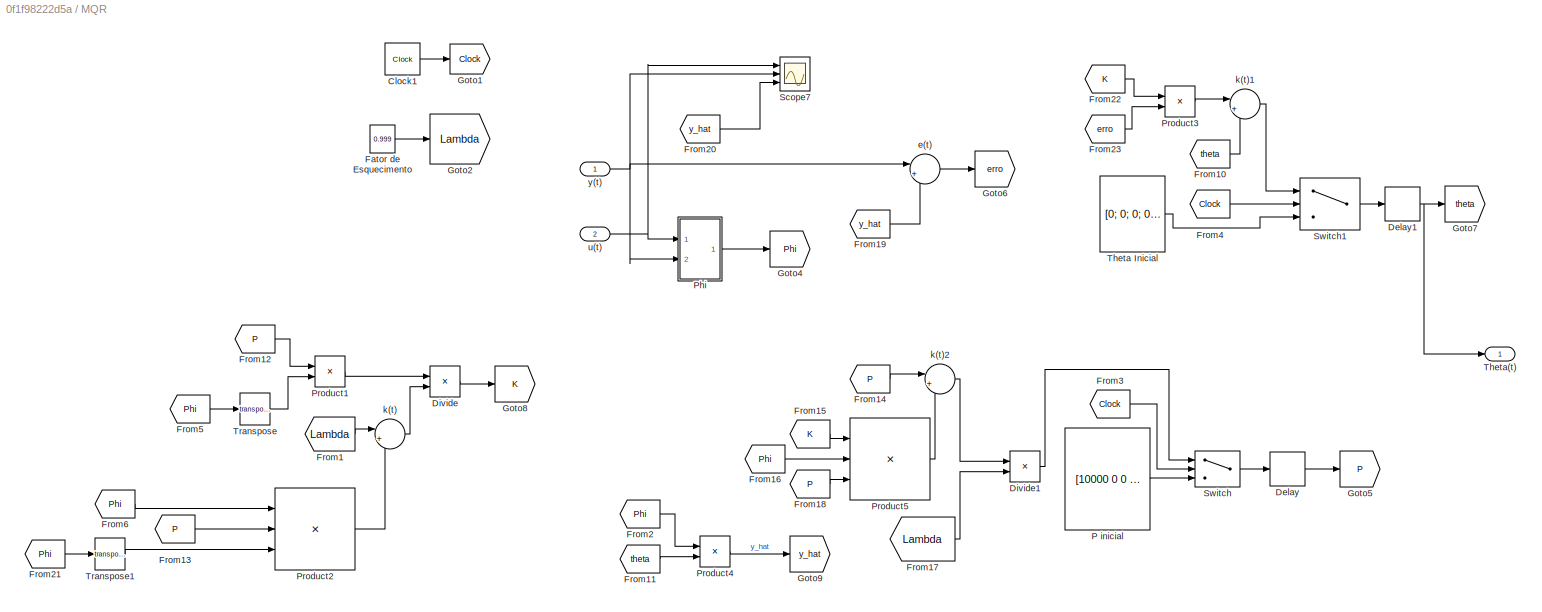
BLOCK [SubSystem] MQR
  Ports = [2, 1]
  RequestExecContextInheritance = off
BLOCK [Clock] MQR/Clock1
BLOCK [Delay] MQR/Delay
  DelayLength = 1
  InitialCondition = 0
  InputPortMap = u0
  Ports = [1, 1]
BLOCK [Delay] MQR/Delay1
  DelayLength = 1
  InitialCondition = 0
  InputPortMap = u0
  Ports = [1, 1]
BLOCK [Product] MQR/Divide
  InputSameDT = off
  Inputs = */
  OutDataTypeStr = Inherit: Inherit via internal rule
  Ports = [2, 1]
  RndMeth = Floor
  SaturateOnIntegerOverflow = off
BLOCK [Product] MQR/Divide1
  InputSameDT = off
  Inputs = */
  OutDataTypeStr = Inherit: Inherit via internal rule
  Ports = [2, 1]
  RndMeth = Floor
  SaturateOnIntegerOverflow = off
BLOCK [Constant] MQR/Fator de Esquecimento 
  Value = 0.999
BLOCK [From] MQR/From1
  GotoTag = Lambda
BLOCK [From] MQR/From10
  GotoTag = theta
BLOCK [From] MQR/From11
  GotoTag = theta
BLOCK [From] MQR/From12
  GotoTag = P
BLOCK [From] MQR/From13
  GotoTag = P
BLOCK [From] MQR/From14
  GotoTag = P
BLOCK [From] MQR/From15
  GotoTag = K
BLOCK [From] MQR/From16
  GotoTag = Phi
BLOCK [From] MQR/From17
  GotoTag = Lambda
BLOCK [From] MQR/From18
  GotoTag = P
BLOCK [From] MQR/From19
  GotoTag = y_hat
BLOCK [From] MQR/From2
  GotoTag = Phi
BLOCK [From] MQR/From20
  GotoTag = y_hat
BLOCK [From] MQR/From21
  GotoTag = Phi
BLOCK [From] MQR/From22
  GotoTag = K
BLOCK [From] MQR/From23
  GotoTag = erro
BLOCK [From] MQR/From3
  GotoTag = Clock
BLOCK [From] MQR/From4
  GotoTag = Clock
BLOCK [From] MQR/From5
  GotoTag = Phi
BLOCK [From] MQR/From6
  GotoTag = Phi
BLOCK [Goto] MQR/Goto1
  GotoTag = Clock
BLOCK [Goto] MQR/Goto2
  GotoTag = Lambda
BLOCK [Goto] MQR/Goto4
  GotoTag = Phi
BLOCK [Goto] MQR/Goto5
  GotoTag = P
BLOCK [Goto] MQR/Goto6
  GotoTag = erro
BLOCK [Goto] MQR/Goto7
  GotoTag = theta
BLOCK [Goto] MQR/Goto8
  GotoTag = K
BLOCK [Goto] MQR/Goto9
  GotoTag = y_hat
BLOCK [Constant] MQR/P inicial
  Value = [10000 0 0 0 0 0 0 0; 0 10000 0 0 0 0 0 0; 0 0 10000 0 0 0 0 0; 0 0 0 10000 0 0 0 0; 0 0 0 0 10000 0 0 0; 0 0 0 0 0 10000 0 0; 0 0 0 0 0 0 10000 0; 0 0 0 0 0 0 0 10000]
BLOCK [SubSystem] MQR/Phi
  Ports = [2, 1]
  RequestExecContextInheritance = off
BLOCK [Constant] MQR/Phi/Constant
  Value = -1
BLOCK [Delay] MQR/Phi/Delay
  InputPortMap = u0
  Ports = [1, 1]
BLOCK [Delay] MQR/Phi/Delay1
  DelayLength = 1
  InputPortMap = u0
  Ports = [1, 1]
BLOCK [Delay] MQR/Phi/Delay2
  InputPortMap = u0
  Ports = [1, 1]
BLOCK [Delay] MQR/Phi/Delay3
  DelayLength = 1
  InputPortMap = u0
  Ports = [1, 1]
BLOCK [Delay] MQR/Phi/Delay4
  DelayLength = 3
  InputPortMap = u0
  Ports = [1, 1]
BLOCK [Delay] MQR/Phi/Delay5
  DelayLength = 4
  InputPortMap = u0
  Ports = [1, 1]
BLOCK [Delay] MQR/Phi/Delay6
  DelayLength = 3
  InputPortMap = u0
  Ports = [1, 1]
BLOCK [Delay] MQR/Phi/Delay7
  DelayLength = 4
  InputPortMap = u0
  Ports = [1, 1]
BLOCK [Display] MQR/Phi/Display
  Decimation = 1
  Ports = [1]
BLOCK [Outport] MQR/Phi/Phi
  IconDisplay = Port number
BLOCK [Product] MQR/Phi/Product
  InputSameDT = off
  OutDataTypeStr = Inherit: Inherit via internal rule
  Ports = [2, 1]
  RndMeth = Floor
  SaturateOnIntegerOverflow = off
BLOCK [Math] MQR/Phi/Transpose1
  Operator = transpose
  Ports = [1, 1]
BLOCK [Concatenate] MQR/Phi/Vector Concatenate
  NumInputs = 8
  Ports = [8, 1]
BLOCK [Inport] MQR/Phi/u(t)
  IconDisplay = Port number
BLOCK [Inport] MQR/Phi/y(t)
  IconDisplay = Port number
  Port = 2
BLOCK [Product] MQR/Product1
  InputSameDT = off
  Multiplication = Matrix(*)
  OutDataTypeStr = Inherit: Inherit via internal rule
  Ports = [2, 1]
  RndMeth = Floor
  SaturateOnIntegerOverflow = off
BLOCK [Product] MQR/Product2
  InputSameDT = off
  Inputs = 3
  Multiplication = Matrix(*)
  OutDataTypeStr = Inherit: Inherit via internal rule
  Ports = [3, 1]
  RndMeth = Floor
  SaturateOnIntegerOverflow = off
BLOCK [Product] MQR/Product3
  InputSameDT = off
  Multiplication = Matrix(*)
  OutDataTypeStr = Inherit: Inherit via internal rule
  Ports = [2, 1]
  RndMeth = Floor
  SaturateOnIntegerOverflow = off
BLOCK [Product] MQR/Product4
  InputSameDT = off
  Multiplication = Matrix(*)
  OutDataTypeStr = Inherit: Inherit via internal rule
  Ports = [2, 1]
  RndMeth = Floor
  SaturateOnIntegerOverflow = off
BLOCK [Product] MQR/Product5
  InputSameDT = off
  Inputs = 3
  Multiplication = Matrix(*)
  OutDataTypeStr = Inherit: Inherit via internal rule
  Ports = [3, 1]
  RndMeth = Floor
  SaturateOnIntegerOverflow = off
BLOCK [Scope] MQR/Scope7
  Floating = off
  NumInputPorts = 3
  Ports = [3]
  ScopeSpecificationString = Simulink.scopes.TimeScopeBlockCfg('CurrentConfiguration', extmgr.ConfigurationSet(extmgr.Configuration('Core','General UI',true,'FigureColor',[0.156862745098039 0.156862745098039 0.156862745098039]),extmgr.Configuration('Core','Source UI',true),extmgr.Configuration('Sources','WiredSimulink',true,'DataLoggingVariableName','ScopeData1','DataLoggingSaveFormat','StructureWithTime','DataLoggingDecimati...<+3159ch>
BLOCK [Switch] MQR/Switch
  Criteria = u2 > Threshold
  InputSameDT = off
  SaturateOnIntegerOverflow = off
BLOCK [Switch] MQR/Switch1
  Criteria = u2 > Threshold
  InputSameDT = off
  SaturateOnIntegerOverflow = off
BLOCK [Constant] MQR/Theta Inicial 
  Value = [0; 0; 0; 0; 0; 0; 0; 0]
BLOCK [Outport] MQR/Theta(t) 
  IconDisplay = Port number
BLOCK [Math] MQR/Transpose
  Operator = transpose
  Ports = [1, 1]
BLOCK [Math] MQR/Transpose1
  Operator = transpose
  Ports = [1, 1]
BLOCK [Sum] MQR/e(t)
  IconShape = round
  InputSameDT = off
  Inputs = |+-
  OutDataTypeStr = Inherit: Inherit via internal rule
  Ports = [2, 1]
  SaturateOnIntegerOverflow = off
BLOCK [Sum] MQR/k(t)
  IconShape = round
  InputSameDT = off
  Inputs = |++
  OutDataTypeStr = Inherit: Inherit via internal rule
  Ports = [2, 1]
  SaturateOnIntegerOverflow = off
BLOCK [Sum] MQR/k(t)1
  IconShape = round
  InputSameDT = off
  Inputs = |++
  OutDataTypeStr = Inherit: Inherit via internal rule
  Ports = [2, 1]
  SaturateOnIntegerOverflow = off
BLOCK [Sum] MQR/k(t)2
  IconShape = round
  InputSameDT = off
  Inputs = |+-
  OutDataTypeStr = Inherit: Inherit via internal rule
  Ports = [2, 1]
  SaturateOnIntegerOverflow = off
BLOCK [Inport] MQR/u(t) 
  IconDisplay = Port number
  Port = 2
BLOCK [Inport] MQR/y(t)
  IconDisplay = Port number
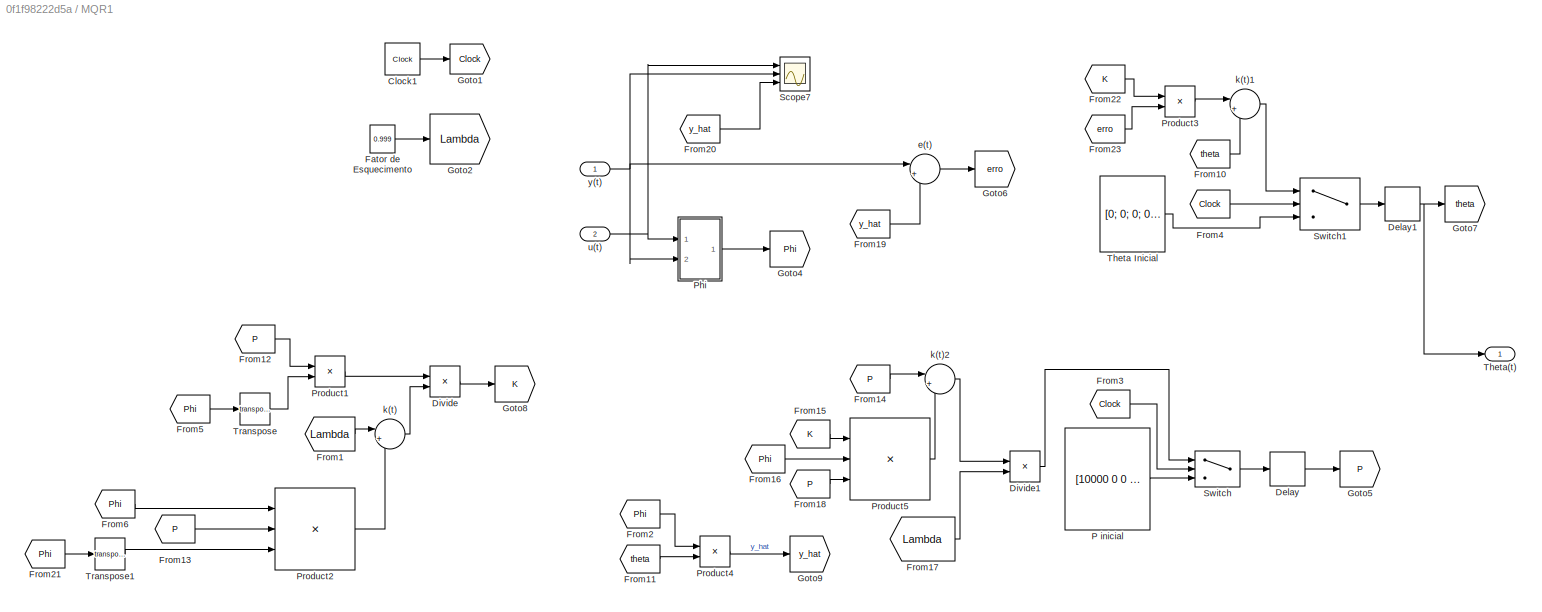
BLOCK [SubSystem] MQR1
  Commented = on
  Ports = [2, 1]
  RequestExecContextInheritance = off
BLOCK [Clock] MQR1/Clock1
BLOCK [Delay] MQR1/Delay
  DelayLength = 1
  InitialCondition = 0
  InputPortMap = u0
  Ports = [1, 1]
BLOCK [Delay] MQR1/Delay1
  DelayLength = 1
  InitialCondition = 0
  InputPortMap = u0
  Ports = [1, 1]
BLOCK [Product] MQR1/Divide
  InputSameDT = off
  Inputs = */
  OutDataTypeStr = Inherit: Inherit via internal rule
  Ports = [2, 1]
  RndMeth = Floor
  SaturateOnIntegerOverflow = off
BLOCK [Product] MQR1/Divide1
  InputSameDT = off
  Inputs = */
  OutDataTypeStr = Inherit: Inherit via internal rule
  Ports = [2, 1]
  RndMeth = Floor
  SaturateOnIntegerOverflow = off
BLOCK [Constant] MQR1/Fator de Esquecimento 
  Value = 0.999
BLOCK [From] MQR1/From1
  GotoTag = Lambda
BLOCK [From] MQR1/From10
  GotoTag = theta
BLOCK [From] MQR1/From11
  GotoTag = theta
BLOCK [From] MQR1/From12
  GotoTag = P
BLOCK [From] MQR1/From13
  GotoTag = P
BLOCK [From] MQR1/From14
  GotoTag = P
BLOCK [From] MQR1/From15
  GotoTag = K
BLOCK [From] MQR1/From16
  GotoTag = Phi
BLOCK [From] MQR1/From17
  GotoTag = Lambda
BLOCK [From] MQR1/From18
  GotoTag = P
BLOCK [From] MQR1/From19
  GotoTag = y_hat
BLOCK [From] MQR1/From2
  GotoTag = Phi
BLOCK [From] MQR1/From20
  GotoTag = y_hat
BLOCK [From] MQR1/From21
  GotoTag = Phi
BLOCK [From] MQR1/From22
  GotoTag = K
BLOCK [From] MQR1/From23
  GotoTag = erro
BLOCK [From] MQR1/From3
  GotoTag = Clock
BLOCK [From] MQR1/From4
  GotoTag = Clock
BLOCK [From] MQR1/From5
  GotoTag = Phi
BLOCK [From] MQR1/From6
  GotoTag = Phi
BLOCK [Goto] MQR1/Goto1
  GotoTag = Clock
BLOCK [Goto] MQR1/Goto2
  GotoTag = Lambda
BLOCK [Goto] MQR1/Goto4
  GotoTag = Phi
BLOCK [Goto] MQR1/Goto5
  GotoTag = P
BLOCK [Goto] MQR1/Goto6
  GotoTag = erro
BLOCK [Goto] MQR1/Goto7
  GotoTag = theta
BLOCK [Goto] MQR1/Goto8
  GotoTag = K
BLOCK [Goto] MQR1/Goto9
  GotoTag = y_hat
BLOCK [Constant] MQR1/P inicial
  Value = [10000 0 0 0 0 0 0 0; 0 10000 0 0 0 0 0 0; 0 0 10000 0 0 0 0 0; 0 0 0 10000 0 0 0 0; 0 0 0 0 10000 0 0 0; 0 0 0 0 0 10000 0 0; 0 0 0 0 0 0 10000 0; 0 0 0 0 0 0 0 10000]
BLOCK [SubSystem] MQR1/Phi
  Ports = [2, 1]
  RequestExecContextInheritance = off
BLOCK [Constant] MQR1/Phi/Constant
  Value = -1
BLOCK [Delay] MQR1/Phi/Delay
  InputPortMap = u0
  Ports = [1, 1]
BLOCK [Delay] MQR1/Phi/Delay1
  DelayLength = 1
  InputPortMap = u0
  Ports = [1, 1]
BLOCK [Delay] MQR1/Phi/Delay2
  InputPortMap = u0
  Ports = [1, 1]
BLOCK [Delay] MQR1/Phi/Delay3
  DelayLength = 1
  InputPortMap = u0
  Ports = [1, 1]
BLOCK [Delay] MQR1/Phi/Delay4
  DelayLength = 3
  InputPortMap = u0
  Ports = [1, 1]
BLOCK [Delay] MQR1/Phi/Delay5
  DelayLength = 4
  InputPortMap = u0
  Ports = [1, 1]
BLOCK [Delay] MQR1/Phi/Delay6
  DelayLength = 3
  InputPortMap = u0
  Ports = [1, 1]
BLOCK [Delay] MQR1/Phi/Delay7
  DelayLength = 4
  InputPortMap = u0
  Ports = [1, 1]
BLOCK [Display] MQR1/Phi/Display
  Decimation = 1
  Ports = [1]
BLOCK [Outport] MQR1/Phi/Phi
  IconDisplay = Port number
BLOCK [Product] MQR1/Phi/Product
  InputSameDT = off
  OutDataTypeStr = Inherit: Inherit via internal rule
  Ports = [2, 1]
  RndMeth = Floor
  SaturateOnIntegerOverflow = off
BLOCK [Math] MQR1/Phi/Transpose1
  Operator = transpose
  Ports = [1, 1]
BLOCK [Concatenate] MQR1/Phi/Vector Concatenate
  NumInputs = 8
  Ports = [8, 1]
BLOCK [Inport] MQR1/Phi/u(t)
  IconDisplay = Port number
BLOCK [Inport] MQR1/Phi/y(t)
  IconDisplay = Port number
  Port = 2
BLOCK [Product] MQR1/Product1
  InputSameDT = off
  Multiplication = Matrix(*)
  OutDataTypeStr = Inherit: Inherit via internal rule
  Ports = [2, 1]
  RndMeth = Floor
  SaturateOnIntegerOverflow = off
BLOCK [Product] MQR1/Product2
  InputSameDT = off
  Inputs = 3
  Multiplication = Matrix(*)
  OutDataTypeStr = Inherit: Inherit via internal rule
  Ports = [3, 1]
  RndMeth = Floor
  SaturateOnIntegerOverflow = off
BLOCK [Product] MQR1/Product3
  InputSameDT = off
  Multiplication = Matrix(*)
  OutDataTypeStr = Inherit: Inherit via internal rule
  Ports = [2, 1]
  RndMeth = Floor
  SaturateOnIntegerOverflow = off
BLOCK [Product] MQR1/Product4
  InputSameDT = off
  Multiplication = Matrix(*)
  OutDataTypeStr = Inherit: Inherit via internal rule
  Ports = [2, 1]
  RndMeth = Floor
  SaturateOnIntegerOverflow = off
BLOCK [Product] MQR1/Product5
  InputSameDT = off
  Inputs = 3
  Multiplication = Matrix(*)
  OutDataTypeStr = Inherit: Inherit via internal rule
  Ports = [3, 1]
  RndMeth = Floor
  SaturateOnIntegerOverflow = off
BLOCK [Scope] MQR1/Scope7
  Floating = off
  NumInputPorts = 3
  Ports = [3]
  ScopeSpecificationString = Simulink.scopes.TimeScopeBlockCfg('CurrentConfiguration', extmgr.ConfigurationSet(extmgr.Configuration('Core','General UI',true,'FigureColor',[0.156862745098039 0.156862745098039 0.156862745098039]),extmgr.Configuration('Core','Source UI',true),extmgr.Configuration('Sources','WiredSimulink',true,'DataLoggingVariableName','ScopeData1','DataLoggingSaveFormat','StructureWithTime','DataLoggingDecimati...<+3159ch>
BLOCK [Switch] MQR1/Switch
  Criteria = u2 > Threshold
  InputSameDT = off
  SaturateOnIntegerOverflow = off
BLOCK [Switch] MQR1/Switch1
  Criteria = u2 > Threshold
  InputSameDT = off
  SaturateOnIntegerOverflow = off
BLOCK [Constant] MQR1/Theta Inicial 
  Value = [0; 0; 0; 0; 0; 0; 0; 0]
BLOCK [Outport] MQR1/Theta(t) 
  IconDisplay = Port number
BLOCK [Math] MQR1/Transpose
  Operator = transpose
  Ports = [1, 1]
BLOCK [Math] MQR1/Transpose1
  Operator = transpose
  Ports = [1, 1]
BLOCK [Sum] MQR1/e(t)
  IconShape = round
  InputSameDT = off
  Inputs = |+-
  OutDataTypeStr = Inherit: Inherit via internal rule
  Ports = [2, 1]
  SaturateOnIntegerOverflow = off
BLOCK [Sum] MQR1/k(t)
  IconShape = round
  InputSameDT = off
  Inputs = |++
  OutDataTypeStr = Inherit: Inherit via internal rule
  Ports = [2, 1]
  SaturateOnIntegerOverflow = off
BLOCK [Sum] MQR1/k(t)1
  IconShape = round
  InputSameDT = off
  Inputs = |++
  OutDataTypeStr = Inherit: Inherit via internal rule
  Ports = [2, 1]
  SaturateOnIntegerOverflow = off
BLOCK [Sum] MQR1/k(t)2
  IconShape = round
  InputSameDT = off
  Inputs = |+-
  OutDataTypeStr = Inherit: Inherit via internal rule
  Ports = [2, 1]
  SaturateOnIntegerOverflow = off
BLOCK [Inport] MQR1/u(t) 
  IconDisplay = Port number
  Port = 2
BLOCK [Inport] MQR1/y(t)
  IconDisplay = Port number
BLOCK [Mux] Mux
  DisplayOption = bar
  Inputs = 3
  Ports = [3, 1]
BLOCK [SubSystem] Performance do Sistema
  Ports = [3]
  RequestExecContextInheritance = off
BLOCK [Abs] Performance do Sistema/Abs
  SaturateOnIntegerOverflow = off
BLOCK [Clock] Performance do Sistema/Clock
  Decimation = 1
BLOCK [Gain] Performance do Sistema/Gain
  Gain = 0.02
  OutDataTypeStr = Inherit: Inherit via internal rule
  ParamDataTypeStr = Inherit: Inherit via internal rule
  SaturateOnIntegerOverflow = off
BLOCK [Gain] Performance do Sistema/Gain1
  Gain = 0.02
  OutDataTypeStr = Inherit: Inherit via internal rule
  ParamDataTypeStr = Inherit: Inherit via internal rule
  SaturateOnIntegerOverflow = off
BLOCK [Gain] Performance do Sistema/Gain2
  Gain = 0.02
  OutDataTypeStr = Inherit: Inherit via internal rule
  ParamDataTypeStr = Inherit: Inherit via internal rule
  SaturateOnIntegerOverflow = off
BLOCK [Integrator] Performance do Sistema/Integrator
  Ports = [1, 1]
BLOCK [Integrator] Performance do Sistema/Integrator1
  Ports = [1, 1]
BLOCK [Integrator] Performance do Sistema/Integrator2
  Ports = [1, 1]
BLOCK [Integrator] Performance do Sistema/Integrator3
  Ports = [1, 1]
BLOCK [Integrator] Performance do Sistema/Integrator4
  Ports = [1, 1]
BLOCK [Integrator] Performance do Sistema/Integrator5
  Ports = [1, 1]
BLOCK [Scope] Performance do Sistema/Output Signal
  Floating = off
  NumInputPorts = 1
  Ports = [1]
  ScopeSpecificationString = Simulink.scopes.TimeScopeBlockCfg('CurrentConfiguration', extmgr.ConfigurationSet(extmgr.Configuration('Core','General UI',true,'FigureColor',[1 1 1]),extmgr.Configuration('Core','Source UI',true),extmgr.Configuration('Sources','WiredSimulink',true,'DataLoggingVariableName','ScopeData1','DataLoggingSaveFormat','StructureWithTime','DataLoggingDecimation','1','DataLoggingDecimateData',true),extmgr.C...<+2862ch>
BLOCK [Product] Performance do Sistema/Product
  InputSameDT = off
  OutDataTypeStr = Inherit: Inherit via internal rule
  Ports = [2, 1]
  RndMeth = Floor
  SaturateOnIntegerOverflow = off
BLOCK [Math] Performance do Sistema/Square
  Operator = square
  Ports = [1, 1]
BLOCK [Math] Performance do Sistema/Square1
  Operator = square
  Ports = [1, 1]
BLOCK [Sum] Performance do Sistema/Subtract
  InputSameDT = off
  Inputs = +-
  OutDataTypeStr = Inherit: Inherit via internal rule
  Ports = [2, 1]
  SaturateOnIntegerOverflow = off
BLOCK [Sum] Performance do Sistema/Sum of Elements
  InputSameDT = off
  OutDataTypeStr = Inherit: Inherit via internal rule
  Ports = [2, 1]
  SaturateOnIntegerOverflow = off
BLOCK [Sum] Performance do Sistema/Sum of Elements1
  InputSameDT = off
  OutDataTypeStr = Inherit: Inherit via internal rule
  Ports = [2, 1]
  SaturateOnIntegerOverflow = off
BLOCK [ToWorkspace] Performance do Sistema/To Workspace
  FixptAsFi = on
  MaxDataPoints = inf
  Ports = [1]
  SampleTime = -1
  Save2DSignal = 3-D array (concatenate along third dimension)
  SaveFormat = Timeseries
  VariableName = ISE
BLOCK [ToWorkspace] Performance do Sistema/To Workspace1
  FixptAsFi = on
  MaxDataPoints = inf
  Ports = [1]
  SampleTime = -1
  Save2DSignal = 3-D array (concatenate along third dimension)
  SaveFormat = Timeseries
  VariableName = IAE
BLOCK [ToWorkspace] Performance do Sistema/To Workspace2
  FixptAsFi = on
  MaxDataPoints = inf
  Ports = [1]
  SampleTime = -1
  Save2DSignal = 3-D array (concatenate along third dimension)
  SaveFormat = Timeseries
  VariableName = ITAE
BLOCK [ToWorkspace] Performance do Sistema/To Workspace3
  FixptAsFi = on
  MaxDataPoints = inf
  Ports = [1]
  SampleTime = -1
  Save2DSignal = 3-D array (concatenate along third dimension)
  SaveFormat = Timeseries
  VariableName = IRBEMCE
BLOCK [ToWorkspace] Performance do Sistema/To Workspace4
  FixptAsFi = on
  MaxDataPoints = inf
  Ports = [1]
  SampleTime = -1
  Save2DSignal = 3-D array (concatenate along third dimension)
  SaveFormat = Timeseries
  VariableName = IRBMSEMCE
BLOCK [Inport] Performance do Sistema/r(t)
  IconDisplay = Port number
BLOCK [Inport] Performance do Sistema/u(t)
  IconDisplay = Port number
  Port = 3
BLOCK [Inport] Performance do Sistema/y(t)
  IconDisplay = Port number
  Port = 2
BLOCK [DiscreteFilter] Planta
  Denominator = A
  InputPortMap = u0
  Numerator = B
  Ports = [1, 1]
  SampleTime = Ta
  a0EqualsOne = on
BLOCK [DiscreteFilter] Planta3
  Commented = on
  Denominator = A
  InputPortMap = u0
  Numerator = B
  Ports = [1, 1]
  SampleTime = Ta
  a0EqualsOne = on
BLOCK [DiscreteFilter] Planta4
  Commented = on
  Denominator = A
  DenominatorSource = Input port
  InputPortMap = u0,p1,p3
  Numerator = B
  NumeratorSource = Input port
  Ports = [3, 1]
  SampleTime = Ta
  a0EqualsOne = on
BLOCK [DiscreteFilter] R1
  Commented = on
  Denominator = 1
  InputPortMap = u0,p1
  Numerator = [-620.2 131.3]
  NumeratorSource = Input port
  Ports = [2, 1]
  SampleTime = Ta
BLOCK [DiscreteFilter] R3
  Denominator = 1
  InputPortMap = u0,p1
  Numerator = [-620.2 131.3]
  NumeratorSource = Input port
  Ports = [2, 1]
  SampleTime = Ta
BLOCK [EditField] Rampa
  Alignment = Center
  LabelPosition = Hide
  WebBlockId = 1415
BLOCK [RotarySwitchBlock] Rotary Switch1
  Commented = on
  WebBlockId = 1942
BLOCK [RotarySwitchBlock] Rotary Switch2
  WebBlockId = 1006
BLOCK [RotarySwitchBlock] Rotary Switch3
  WebBlockId = 1934
BLOCK [Saturate] Saturation
  InputPortMap = u0
  LowerLimit = 0
  Ports = [1, 1]
  UpperLimit = 41
BLOCK [Scope] Scope
  Floating = off
  NumInputPorts = 1
  Ports = [1]
  ScopeSpecificationString = Simulink.scopes.TimeScopeBlockCfg('CurrentConfiguration', extmgr.ConfigurationSet(extmgr.Configuration('Core','General UI',true),extmgr.Configuration('Core','Source UI',true),extmgr.Configuration('Sources','WiredSimulink',true,'DataLoggingVariableName','ut_auto_reg_4','DataLogging',true,'DataLoggingSaveFormat','StructureWithTime'),extmgr.Configuration('Visuals','Time Domain',true,'SerializedDispla...<+1498ch>
BLOCK [Scope] Scope1
  Commented = on
  Floating = off
  NumInputPorts = 1
  Ports = [1]
  ScopeSpecificationString = Simulink.scopes.TimeScopeBlockCfg('CurrentConfiguration', extmgr.ConfigurationSet(extmgr.Configuration('Core','General UI',true,'FigureColor',[0.156862745098039 0.156862745098039 0.156862745098039]),extmgr.Configuration('Core','Source UI',true),extmgr.Configuration('Sources','WiredSimulink',true,'DataLoggingVariableName','ScopeData2','DataLoggingSaveFormat','StructureWithTime','DataLoggingDecimati...<+5614ch>
BLOCK [Scope] Scope2
  Commented = on
  Floating = off
  NumInputPorts = 2
  Ports = [2]
  ScopeSpecificationString = Simulink.scopes.TimeScopeBlockCfg('CurrentConfiguration', extmgr.ConfigurationSet(extmgr.Configuration('Core','General UI',true,'FigureColor',[0.156862745098039 0.156862745098039 0.156862745098039]),extmgr.Configuration('Core','Source UI',true),extmgr.Configuration('Sources','WiredSimulink',true,'DataLoggingVariableName','ScopeData3','DataLoggingSaveFormat','StructureWithTime','DataLoggingDecimati...<+3191ch>
BLOCK [Scope] Scope3
  Floating = off
  NumInputPorts = 1
  Ports = [1]
  ScopeSpecificationString = Simulink.scopes.TimeScopeBlockCfg('CurrentConfiguration', extmgr.ConfigurationSet(extmgr.Configuration('Core','General UI',true),extmgr.Configuration('Core','Source UI',true),extmgr.Configuration('Sources','WiredSimulink',true,'DataLoggingVariableName','perturbacao','DataLogging',true),extmgr.Configuration('Visuals','Time Domain',true,'SerializedDisplays',{struct('MinYLimReal','-0.22496','MaxYLimR...<+1406ch>
BLOCK [Scope] Scope5
  Floating = off
  NumInputPorts = 2
  Ports = [2]
  ScopeSpecificationString = Simulink.scopes.TimeScopeBlockCfg('CurrentConfiguration', extmgr.ConfigurationSet(extmgr.Configuration('Core','General UI',true,'FigureColor',[0.156862745098039 0.156862745098039 0.156862745098039]),extmgr.Configuration('Core','Source UI',true),extmgr.Configuration('Sources','WiredSimulink',true,'DataLoggingVariableName','auto_reg_4','DataLoggingSaveFormat','StructureWithTime','DataLoggingDecimati...<+3194ch>
BLOCK [Step] Step1
  SampleTime = 0
  Time = 150
BLOCK [Step] Step2
  After = -1
  SampleTime = 0
  Time = 151
BLOCK [Step] Step3
  SampleTime = 0
  Time = 150
BLOCK [Step] Step4
  After = -1
  SampleTime = 0
  Time = 151
BLOCK [Step] Step6
  Commented = on
  SampleTime = 0
BLOCK [Step] Step7
  Commented = on
  SampleTime = 0
  Time = 40
BLOCK [Step] Step8
  After = -1
  Commented = on
  SampleTime = 0
  Time = 41
BLOCK [SubSystem] Subsystem
  Ports = [0, 1]
  RequestExecContextInheritance = off
BLOCK [Constant] Subsystem/Constant3
BLOCK [MultiPortSwitch] Subsystem/Multiport Switch
  InputSameDT = off
  Ports = [4, 1]
  SaturateOnIntegerOverflow = off
BLOCK [Outport] Subsystem/Out1
  IconDisplay = Port number
BLOCK [Reference] Subsystem/Ramp  REF=simulink/Sources/Ramp
  Ports = [0, 1]
  SourceBlock = simulink/Sources/Ramp
  SourceProductBaseCode = SL
  SourceProductName = Simulink
  SourceType = Ramp
BLOCK [Sin] Subsystem/Sine Wave
  Frequency = w0
  Ports = [0, 1]
  SampleTime = Tas
BLOCK [Step] Subsystem/Step1
  SampleTime = 0
  Time = 0
BLOCK [Step] Subsystem/Step2
  After = 2
  SampleTime = 0
  Time = 30
BLOCK [Step] Subsystem/Step3
  After = -3
  SampleTime = 0
  Time = 60
BLOCK [Step] Subsystem/Step4
  After = 4
  SampleTime = 0
  Time = 90
BLOCK [Step] Subsystem/Step5
  After = -2
  SampleTime = 0
  Time = 120
BLOCK [Sum] Subsystem/Sum
  IconShape = round
  InputSameDT = off
  Inputs = |+++++
  OutDataTypeStr = Inherit: Inherit via internal rule
  Ports = [5, 1]
  SaturateOnIntegerOverflow = off
BLOCK [SubSystem] Subsystem1
  Commented = on
  Ports = [0, 1]
  RequestExecContextInheritance = off
BLOCK [Constant] Subsystem1/C2
  Value = 2
BLOCK [MultiPortSwitch] Subsystem1/Multiport Switch
  InputSameDT = off
  Ports = [4, 1]
  SaturateOnIntegerOverflow = off
BLOCK [Outport] Subsystem1/Out1
  IconDisplay = Port number
BLOCK [Reference] Subsystem1/Ramp  REF=simulink/Sources/Ramp
  Ports = [0, 1]
  SourceBlock = simulink/Sources/Ramp
  SourceProductBaseCode = SL
  SourceProductName = Simulink
  SourceType = Ramp
BLOCK [Sin] Subsystem1/Sine Wave
  Frequency = w0
  Ports = [0, 1]
  SampleTime = Tas
BLOCK [Step] Subsystem1/Step1
  SampleTime = 0
  Time = 0
BLOCK [Sum] Sum
  IconShape = round
  InputSameDT = off
  Inputs = |++++
  OutDataTypeStr = Inherit: Inherit via internal rule
  Ports = [4, 1]
  SaturateOnIntegerOverflow = off
BLOCK [Sum] Sum1
  Commented = on
  IconShape = round
  InputSameDT = off
  Inputs = |++++
  OutDataTypeStr = Inherit: Inherit via internal rule
  Ports = [4, 1]
  SaturateOnIntegerOverflow = off
BLOCK [Sum] Sum11
  IconShape = round
  InputSameDT = off
  Inputs = |+-
  OutDataTypeStr = Inherit: Inherit via internal rule
  Ports = [2, 1]
  SaturateOnIntegerOverflow = off
BLOCK [Sum] Sum2
  Commented = on
  IconShape = round
  InputSameDT = off
  Inputs = |+-
  OutDataTypeStr = Inherit: Inherit via internal rule
  Ports = [2, 1]
  SaturateOnIntegerOverflow = off
BLOCK [Sum] Sum3
  IconShape = round
  InputSameDT = off
  Inputs = |+++
  OutDataTypeStr = Inherit: Inherit via internal rule
  Ports = [3, 1]
  SaturateOnIntegerOverflow = off
BLOCK [DiscreteFilter] T1
  Commented = on
  Denominator = 1
  InputPortMap = u0,p1
  Numerator = 13.39
  NumeratorSource = Input port
  Ports = [2, 1]
  SampleTime = Ta
BLOCK [DiscreteFilter] T3
  Denominator = 1
  InputPortMap = u0,p1
  Numerator = 13.39
  NumeratorSource = Input port
  Ports = [2, 1]
  SampleTime = Ta
BLOCK [ToFile] To File
  Filename = auto_reg_4_order_with_error_values.mat
  Ports = [1]
BLOCK [UniformRandomNumber] Uniform Random Number
  Maximum = 0.1
  Minimum = -0.1
  SampleTime = 0
  Seed = 10
BLOCK [UniformRandomNumber] Uniform Random Number1
  Commented = on
  Maximum = 0.1
  Minimum = -0.1
  SampleTime = 0
BLOCK [UniformRandomNumber] Uniform Random Number2
  Maximum = 0.1
  Minimum = -0.1
  SampleTime = 0
  Seed = 10
ANNOTATION (root): Performance do Sistema
ANNOTATION (root): IAE
ANNOTATION (root): IRBEMCE
ANNOTATION (root): IRBMSEMCE
ANNOTATION (root): ISE
ANNOTATION (root): ITAE
ANNOTATION Auto-Ajuste/RST Degrau: Theta Inicializado com um valor qualquer até que ocorra o processo de identificação da planta.
ANNOTATION Auto-Ajuste/RST Rampa: Theta Inicializado com um valor qualquer até que ocorra o processo de identificação da planta.
ANNOTATION Auto-Ajuste/RST Senoide: Theta Inicializado com um valor qualquer até que ocorra o processo de identificação da planta.
NET 1//S1:1 -> MQR1:2, Planta3:1
LINE 1//S3:1 -> Saturation:1
NET Auto-Ajuste/Damping3:1 -> Auto-Ajuste/RST Degrau:3, Auto-Ajuste/RST Rampa:3, Auto-Ajuste/RST Senoide:3
LINE Auto-Ajuste/Frequência:1 -> Auto-Ajuste/RST Senoide:5
NET Auto-Ajuste/MC:1 -> Auto-Ajuste/Multiport Switch1:1, Auto-Ajuste/Multiport Switch2:1, Auto-Ajuste/Multiport Switch:1
LINE Auto-Ajuste/Multiport Switch1:1 -> Auto-Ajuste/S:1
LINE Auto-Ajuste/Multiport Switch2:1 -> Auto-Ajuste/T:1
LINE Auto-Ajuste/Multiport Switch:1 -> Auto-Ajuste/R:1
LINE Auto-Ajuste/RST Degrau/ LU Inverse1:1 -> Auto-Ajuste/RST Degrau/Matrix Multiply1:1
NET Auto-Ajuste/RST Degrau/ LU Inverse:1 -> Auto-Ajuste/RST Degrau/Display:1, Auto-Ajuste/RST Degrau/Matrix Multiply:1
LINE Auto-Ajuste/RST Degrau/Clock:1 -> Auto-Ajuste/RST Degrau/Goto:1
LINE Auto-Ajuste/RST Degrau/Coeficientes de P/ :1 -> Auto-Ajuste/RST Degrau/Coeficientes de P/Dot Product3:1
LINE Auto-Ajuste/RST Degrau/Coeficientes de P/1:1 -> Auto-Ajuste/RST Degrau/Coeficientes de P/Subtract:1
LINE Auto-Ajuste/RST Degrau/Coeficientes de P/Constant1:1 -> Auto-Ajuste/RST Degrau/Coeficientes de P/Dot Product1:1
LINE Auto-Ajuste/RST Degrau/Coeficientes de P/Constant2:1 -> Auto-Ajuste/RST Degrau/Coeficientes de P/Math Function1:2
LINE Auto-Ajuste/RST Degrau/Coeficientes de P/Constant3:1 -> Auto-Ajuste/RST Degrau/Coeficientes de P/Dot Product8:1
LINE Auto-Ajuste/RST Degrau/Coeficientes de P/Constant:1 -> Auto-Ajuste/RST Degrau/Coeficientes de P/Divide:1
NET Auto-Ajuste/RST Degrau/Coeficientes de P/Damping:1 -> Auto-Ajuste/RST Degrau/Coeficientes de P/Dot Product3:2, Auto-Ajuste/RST Degrau/Coeficientes de P/Dot Product:2, Auto-Ajuste/RST Degrau/Coeficientes de P/Math Function1:1
NET Auto-Ajuste/RST Degrau/Coeficientes de P/Divide:1 -> Auto-Ajuste/RST Degrau/Coeficientes de P/Dot Product2:1, Auto-Ajuste/RST Degrau/Coeficientes de P/Goto:1
LINE Auto-Ajuste/RST Degrau/Coeficientes de P/Dot Product1:1 -> Auto-Ajuste/RST Degrau/Coeficientes de P/Dot Product5:1
LINE Auto-Ajuste/RST Degrau/Coeficientes de P/Dot Product2:1 -> Auto-Ajuste/RST Degrau/Coeficientes de P/Dot Product4:2
LINE Auto-Ajuste/RST Degrau/Coeficientes de P/Dot Product3:1 -> Auto-Ajuste/RST Degrau/Coeficientes de P/Dot Product2:2
NET Auto-Ajuste/RST Degrau/Coeficientes de P/Dot Product4:1 -> Auto-Ajuste/RST Degrau/Coeficientes de P/Dot Product8:2, Auto-Ajuste/RST Degrau/Coeficientes de P/Math Function:1
NET Auto-Ajuste/RST Degrau/Coeficientes de P/Dot Product5:1 -> Auto-Ajuste/RST Degrau/Coeficientes de P/Display3:1, Auto-Ajuste/RST Degrau/Coeficientes de P/P1:1
LINE Auto-Ajuste/RST Degrau/Coeficientes de P/Dot Product6:1 -> Auto-Ajuste/RST Degrau/Coeficientes de P/Trigonometric Function1:1
LINE Auto-Ajuste/RST Degrau/Coeficientes de P/Dot Product7:1 -> Auto-Ajuste/RST Degrau/Coeficientes de P/Dot Product6:1
LINE Auto-Ajuste/RST Degrau/Coeficientes de P/Dot Product8:1 -> Auto-Ajuste/RST Degrau/Coeficientes de P/Math Function2:1
LINE Auto-Ajuste/RST Degrau/Coeficientes de P/Dot Product:1 -> Auto-Ajuste/RST Degrau/Coeficientes de P/Divide:2
LINE Auto-Ajuste/RST Degrau/Coeficientes de P/From1:1 -> Auto-Ajuste/RST Degrau/Coeficientes de P/Dot Product7:2
LINE Auto-Ajuste/RST Degrau/Coeficientes de P/From:1 -> Auto-Ajuste/RST Degrau/Coeficientes de P/Dot Product7:1
LINE Auto-Ajuste/RST Degrau/Coeficientes de P/Math Function1:1 -> Auto-Ajuste/RST Degrau/Coeficientes de P/Subtract:2
NET Auto-Ajuste/RST Degrau/Coeficientes de P/Math Function2:1 -> Auto-Ajuste/RST Degrau/Coeficientes de P/Display1:1, Auto-Ajuste/RST Degrau/Coeficientes de P/P2:1
LINE Auto-Ajuste/RST Degrau/Coeficientes de P/Math Function:1 -> Auto-Ajuste/RST Degrau/Coeficientes de P/Dot Product1:2
NET Auto-Ajuste/RST Degrau/Coeficientes de P/Sample Time:1 -> Auto-Ajuste/RST Degrau/Coeficientes de P/Dot Product4:1, Auto-Ajuste/RST Degrau/Coeficientes de P/Goto1:1
LINE Auto-Ajuste/RST Degrau/Coeficientes de P/Sqrt:1 -> Auto-Ajuste/RST Degrau/Coeficientes de P/Dot Product6:2
LINE Auto-Ajuste/RST Degrau/Coeficientes de P/Subtract:1 -> Auto-Ajuste/RST Degrau/Coeficientes de P/Sqrt:1
LINE Auto-Ajuste/RST Degrau/Coeficientes de P/Trigonometric Function1:1 -> Auto-Ajuste/RST Degrau/Coeficientes de P/Dot Product5:2
LINE Auto-Ajuste/RST Degrau/Coeficientes de P/Ts:1 -> Auto-Ajuste/RST Degrau/Coeficientes de P/Dot Product:1
LINE Auto-Ajuste/RST Degrau/Coeficientes de P:1 -> Auto-Ajuste/RST Degrau/Matrix Q:1
LINE Auto-Ajuste/RST Degrau/Coeficientes de P:2 -> Auto-Ajuste/RST Degrau/Matrix Q:2
LINE Auto-Ajuste/RST Degrau/Damping:1 -> Auto-Ajuste/RST Degrau/Coeficientes de P:3
LINE Auto-Ajuste/RST Degrau/Demux1:1 -> Auto-Ajuste/RST Degrau/Mux3:1
LINE Auto-Ajuste/RST Degrau/Demux1:2 -> Auto-Ajuste/RST Degrau/Mux3:2
LINE Auto-Ajuste/RST Degrau/Demux1:3 -> Auto-Ajuste/RST Degrau/Mux3:3
LINE Auto-Ajuste/RST Degrau/Demux1:4 -> Auto-Ajuste/RST Degrau/Mux3:4
LINE Auto-Ajuste/RST Degrau/Demux1:5 -> Auto-Ajuste/RST Degrau/Mux2:1
LINE Auto-Ajuste/RST Degrau/Demux1:6 -> Auto-Ajuste/RST Degrau/Mux2:2
LINE Auto-Ajuste/RST Degrau/Demux1:7 -> Auto-Ajuste/RST Degrau/Mux2:3
LINE Auto-Ajuste/RST Degrau/Demux1:8 -> Auto-Ajuste/RST Degrau/Mux2:4
LINE Auto-Ajuste/RST Degrau/Demux:1 -> Auto-Ajuste/RST Degrau/Mux1:1
LINE Auto-Ajuste/RST Degrau/Demux:2 -> Auto-Ajuste/RST Degrau/Mux1:2
LINE Auto-Ajuste/RST Degrau/Demux:3 -> Auto-Ajuste/RST Degrau/Mux1:3
LINE Auto-Ajuste/RST Degrau/Demux:4 -> Auto-Ajuste/RST Degrau/Mux1:4
LINE Auto-Ajuste/RST Degrau/Demux:5 -> Auto-Ajuste/RST Degrau/Mux:1
LINE Auto-Ajuste/RST Degrau/Demux:6 -> Auto-Ajuste/RST Degrau/Mux:2
LINE Auto-Ajuste/RST Degrau/Demux:7 -> Auto-Ajuste/RST Degrau/Mux:3
LINE Auto-Ajuste/RST Degrau/Demux:8 -> Auto-Ajuste/RST Degrau/Mux:4
LINE Auto-Ajuste/RST Degrau/From:1 -> Auto-Ajuste/RST Degrau/Switch1:2
NET Auto-Ajuste/RST Degrau/Matrix M/ 1:1 -> Auto-Ajuste/RST Degrau/Matrix M/Matrix Concatenate1:3, Auto-Ajuste/RST Degrau/Matrix M/Matrix Concatenate1:4, Auto-Ajuste/RST Degrau/Matrix M/Matrix Concatenate1:6, Auto-Ajuste/RST Degrau/Matrix M/Matrix Concatenate1:7, Auto-Ajuste/RST Degrau/Matrix M/Matrix Concatenate1:8, Auto-Ajuste/RST Degrau/Matrix M/Matrix Concatenate2:4, Auto-Ajuste/RST Degrau/Matrix M/Matrix Concatenate2:7, Auto-Ajuste/RST Degrau/Matrix M/Matrix Concatenate2:8, Auto-Ajuste/RST Degrau/Matrix M/Matrix Concatenate3:8, Auto-Ajuste/RST Degrau/Matrix M/Matrix Concatenate5:1, Auto-Ajuste/RST Degrau/Matrix M/Matrix Concatenate5:5, Auto-Ajuste/RST Degrau/Matrix M/Matrix Concatenate6:2, Auto-Ajuste/RST Degrau/Matrix M/Matrix Concatenate6:3, Auto-Ajuste/RST Degrau/Matrix M/Matrix Concatenate6:4, Auto-Ajuste/RST Degrau/Matrix M/Matrix Concatenate6:5, Auto-Ajuste/RST Degrau/Matrix M/Matrix Concatenate6:6, Auto-Ajuste/RST Degrau/Matrix M/Matrix Concatenate6:7, Auto-Ajuste/RST Degrau/Matrix M/Matrix Concatenate6:8, Auto-Ajuste/RST Degrau/Matrix M/Matrix Concatenate7:1, Auto-Ajuste/RST Degrau/Matrix M/Matrix Concatenate7:2, Auto-Ajuste/RST Degrau/Matrix M/Matrix Concatenate7:5, Auto-Ajuste/RST Degrau/Matrix M/Matrix Concatenate7:6, Auto-Ajuste/RST Degrau/Matrix M/Matrix Concatenate8:1, Auto-Ajuste/RST Degrau/Matrix M/Matrix Concatenate8:2, Auto-Ajuste/RST Degrau/Matrix M/Matrix Concatenate8:3, Auto-Ajuste/RST Degrau/Matrix M/Matrix Concatenate8:5, Auto-Ajuste/RST Degrau/Matrix M/Matrix Concatenate8:6, Auto-Ajuste/RST Degrau/Matrix M/Matrix Concatenate8:7
NET Auto-Ajuste/RST Degrau/Matrix M/2:1 -> Auto-Ajuste/RST Degrau/Matrix M/Matrix Concatenate1:2, Auto-Ajuste/RST Degrau/Matrix M/Matrix Concatenate2:3, Auto-Ajuste/RST Degrau/Matrix M/Matrix Concatenate3:4, Auto-Ajuste/RST Degrau/Matrix M/Matrix Concatenate6:1
NET Auto-Ajuste/RST Degrau/Matrix M/Demux:1 -> Auto-Ajuste/RST Degrau/Matrix M/Matrix Concatenate1:1, Auto-Ajuste/RST Degrau/Matrix M/Matrix Concatenate2:2, Auto-Ajuste/RST Degrau/Matrix M/Matrix Concatenate3:3, Auto-Ajuste/RST Degrau/Matrix M/Matrix Concatenate4:4
NET Auto-Ajuste/RST Degrau/Matrix M/Demux:2 -> Auto-Ajuste/RST Degrau/Matrix M/Matrix Concatenate2:1, Auto-Ajuste/RST Degrau/Matrix M/Matrix Concatenate3:2, Auto-Ajuste/RST Degrau/Matrix M/Matrix Concatenate4:3, Auto-Ajuste/RST Degrau/Matrix M/Matrix Concatenate5:4
NET Auto-Ajuste/RST Degrau/Matrix M/Demux:3 -> Auto-Ajuste/RST Degrau/Matrix M/Matrix Concatenate3:1, Auto-Ajuste/RST Degrau/Matrix M/Matrix Concatenate4:2, Auto-Ajuste/RST Degrau/Matrix M/Matrix Concatenate5:3, Auto-Ajuste/RST Degrau/Matrix M/Matrix Concatenate7:4
NET Auto-Ajuste/RST Degrau/Matrix M/Demux:4 -> Auto-Ajuste/RST Degrau/Matrix M/Matrix Concatenate4:1, Auto-Ajuste/RST Degrau/Matrix M/Matrix Concatenate5:2, Auto-Ajuste/RST Degrau/Matrix M/Matrix Concatenate7:3, Auto-Ajuste/RST Degrau/Matrix M/Matrix Concatenate8:4
NET Auto-Ajuste/RST Degrau/Matrix M/Demux:5 -> Auto-Ajuste/RST Degrau/Matrix M/Matrix Concatenate1:5, Auto-Ajuste/RST Degrau/Matrix M/Matrix Concatenate2:6, Auto-Ajuste/RST Degrau/Matrix M/Matrix Concatenate3:7, Auto-Ajuste/RST Degrau/Matrix M/Matrix Concatenate4:8
NET Auto-Ajuste/RST Degrau/Matrix M/Demux:6 -> Auto-Ajuste/RST Degrau/Matrix M/Matrix Concatenate2:5, Auto-Ajuste/RST Degrau/Matrix M/Matrix Concatenate3:6, Auto-Ajuste/RST Degrau/Matrix M/Matrix Concatenate4:7, Auto-Ajuste/RST Degrau/Matrix M/Matrix Concatenate5:8
NET Auto-Ajuste/RST Degrau/Matrix M/Demux:7 -> Auto-Ajuste/RST Degrau/Matrix M/Matrix Concatenate3:5, Auto-Ajuste/RST Degrau/Matrix M/Matrix Concatenate4:6, Auto-Ajuste/RST Degrau/Matrix M/Matrix Concatenate5:7, Auto-Ajuste/RST Degrau/Matrix M/Matrix Concatenate7:8
NET Auto-Ajuste/RST Degrau/Matrix M/Demux:8 -> Auto-Ajuste/RST Degrau/Matrix M/Matrix Concatenate4:5, Auto-Ajuste/RST Degrau/Matrix M/Matrix Concatenate5:6, Auto-Ajuste/RST Degrau/Matrix M/Matrix Concatenate7:7, Auto-Ajuste/RST Degrau/Matrix M/Matrix Concatenate8:8
LINE Auto-Ajuste/RST Degrau/Matrix M/In1:1 -> Auto-Ajuste/RST Degrau/Matrix M/Demux:1
LINE Auto-Ajuste/RST Degrau/Matrix M/Matrix Concatenate10:1 -> Auto-Ajuste/RST Degrau/Matrix M/Matrix Concatenate11:2
LINE Auto-Ajuste/RST Degrau/Matrix M/Matrix Concatenate11:1 -> Auto-Ajuste/RST Degrau/Matrix M/Matrix Concatenate15:2
LINE Auto-Ajuste/RST Degrau/Matrix M/Matrix Concatenate12:1 -> Auto-Ajuste/RST Degrau/Matrix M/Matrix Concatenate14:1
LINE Auto-Ajuste/RST Degrau/Matrix M/Matrix Concatenate13:1 -> Auto-Ajuste/RST Degrau/Matrix M/Matrix Concatenate14:2
LINE Auto-Ajuste/RST Degrau/Matrix M/Matrix Concatenate14:1 -> Auto-Ajuste/RST Degrau/Matrix M/Matrix Concatenate15:1
NET Auto-Ajuste/RST Degrau/Matrix M/Matrix Concatenate15:1 -> Auto-Ajuste/RST Degrau/Matrix M/Display1:1, Auto-Ajuste/RST Degrau/Matrix M/M:1
LINE Auto-Ajuste/RST Degrau/Matrix M/Matrix Concatenate1:1 -> Auto-Ajuste/RST Degrau/Matrix M/Matrix Concatenate12:2
LINE Auto-Ajuste/RST Degrau/Matrix M/Matrix Concatenate2:1 -> Auto-Ajuste/RST Degrau/Matrix M/Matrix Concatenate13:1
LINE Auto-Ajuste/RST Degrau/Matrix M/Matrix Concatenate3:1 -> Auto-Ajuste/RST Degrau/Matrix M/Matrix Concatenate13:2
LINE Auto-Ajuste/RST Degrau/Matrix M/Matrix Concatenate4:1 -> Auto-Ajuste/RST Degrau/Matrix M/Matrix Concatenate9:1
LINE Auto-Ajuste/RST Degrau/Matrix M/Matrix Concatenate5:1 -> Auto-Ajuste/RST Degrau/Matrix M/Matrix Concatenate9:2
LINE Auto-Ajuste/RST Degrau/Matrix M/Matrix Concatenate6:1 -> Auto-Ajuste/RST Degrau/Matrix M/Matrix Concatenate12:1
LINE Auto-Ajuste/RST Degrau/Matrix M/Matrix Concatenate7:1 -> Auto-Ajuste/RST Degrau/Matrix M/Matrix Concatenate10:1
LINE Auto-Ajuste/RST Degrau/Matrix M/Matrix Concatenate8:1 -> Auto-Ajuste/RST Degrau/Matrix M/Matrix Concatenate10:2
LINE Auto-Ajuste/RST Degrau/Matrix M/Matrix Concatenate9:1 -> Auto-Ajuste/RST Degrau/Matrix M/Matrix Concatenate11:1
LINE Auto-Ajuste/RST Degrau/Matrix M:1 -> Auto-Ajuste/RST Degrau/ LU Inverse:1
NET Auto-Ajuste/RST Degrau/Matrix Multiply1:1 -> Auto-Ajuste/RST Degrau/Demux1:1, Auto-Ajuste/RST Degrau/Display2:1
NET Auto-Ajuste/RST Degrau/Matrix Multiply:1 -> Auto-Ajuste/RST Degrau/Demux:1, Auto-Ajuste/RST Degrau/Display1:1
NET Auto-Ajuste/RST Degrau/Matrix Q/Constant1:1 -> Auto-Ajuste/RST Degrau/Matrix Q/Matrix Concatenate3:2, Auto-Ajuste/RST Degrau/Matrix Q/Matrix Concatenate4:1, Auto-Ajuste/RST Degrau/Matrix Q/Matrix Concatenate4:2, Auto-Ajuste/RST Degrau/Matrix Q/Matrix Concatenate5:1, Auto-Ajuste/RST Degrau/Matrix Q/Matrix Concatenate5:2
LINE Auto-Ajuste/RST Degrau/Matrix Q/Constant:1 -> Auto-Ajuste/RST Degrau/Matrix Q/Matrix Concatenate1:1
LINE Auto-Ajuste/RST Degrau/Matrix Q/Matrix Concatenate1:1 -> Auto-Ajuste/RST Degrau/Matrix Q/Matrix Concatenate2:1
LINE Auto-Ajuste/RST Degrau/Matrix Q/Matrix Concatenate2:1 -> Auto-Ajuste/RST Degrau/Matrix Q/Matrix Concatenate7:1
LINE Auto-Ajuste/RST Degrau/Matrix Q/Matrix Concatenate3:1 -> Auto-Ajuste/RST Degrau/Matrix Q/Matrix Concatenate2:2
LINE Auto-Ajuste/RST Degrau/Matrix Q/Matrix Concatenate4:1 -> Auto-Ajuste/RST Degrau/Matrix Q/Matrix Concatenate6:1
LINE Auto-Ajuste/RST Degrau/Matrix Q/Matrix Concatenate5:1 -> Auto-Ajuste/RST Degrau/Matrix Q/Matrix Concatenate6:2
LINE Auto-Ajuste/RST Degrau/Matrix Q/Matrix Concatenate6:1 -> Auto-Ajuste/RST Degrau/Matrix Q/Matrix Concatenate7:2
NET Auto-Ajuste/RST Degrau/Matrix Q/Matrix Concatenate7:1 -> Auto-Ajuste/RST Degrau/Matrix Q/Display1:1, Auto-Ajuste/RST Degrau/Matrix Q/Q1:1
LINE Auto-Ajuste/RST Degrau/Matrix Q/P1:1 -> Auto-Ajuste/RST Degrau/Matrix Q/Matrix Concatenate1:2
LINE Auto-Ajuste/RST Degrau/Matrix Q/P2:1 -> Auto-Ajuste/RST Degrau/Matrix Q/Matrix Concatenate3:1
NET Auto-Ajuste/RST Degrau/Matrix Q:1 -> Auto-Ajuste/RST Degrau/Matrix Multiply1:2, Auto-Ajuste/RST Degrau/Matrix Multiply:2
NET Auto-Ajuste/RST Degrau/Mux1:1 -> Auto-Ajuste/RST Degrau/Display9:1, Auto-Ajuste/RST Degrau/S:1
NET Auto-Ajuste/RST Degrau/Mux2:1 -> Auto-Ajuste/RST Degrau/Display3:1, Auto-Ajuste/RST Degrau/T:1
NET Auto-Ajuste/RST Degrau/Mux3:1 -> Auto-Ajuste/RST Degrau/Display4:1, Auto-Ajuste/RST Degrau/L:1
NET Auto-Ajuste/RST Degrau/Mux:1 -> Auto-Ajuste/RST Degrau/Display8:1, Auto-Ajuste/RST Degrau/R:1
LINE Auto-Ajuste/RST Degrau/Sample Time:1 -> Auto-Ajuste/RST Degrau/Coeficientes de P:1
NET Auto-Ajuste/RST Degrau/Subsystem/0:1 -> Auto-Ajuste/RST Degrau/Subsystem/Matrix Concatenate16:1, Auto-Ajuste/RST Degrau/Subsystem/Matrix Concatenate16:2, Auto-Ajuste/RST Degrau/Subsystem/Matrix Concatenate16:8, Auto-Ajuste/RST Degrau/Subsystem/Matrix Concatenate17:1, Auto-Ajuste/RST Degrau/Subsystem/Matrix Concatenate17:2, Auto-Ajuste/RST Degrau/Subsystem/Matrix Concatenate17:3, Auto-Ajuste/RST Degrau/Subsystem/Matrix Concatenate18:1, Auto-Ajuste/RST Degrau/Subsystem/Matrix Concatenate18:2, Auto-Ajuste/RST Degrau/Subsystem/Matrix Concatenate18:3, Auto-Ajuste/RST Degrau/Subsystem/Matrix Concatenate18:4, Auto-Ajuste/RST Degrau/Subsystem/Matrix Concatenate18:5, Auto-Ajuste/RST Degrau/Subsystem/Matrix Concatenate19:2, Auto-Ajuste/RST Degrau/Subsystem/Matrix Concatenate19:3, Auto-Ajuste/RST Degrau/Subsystem/Matrix Concatenate19:4, Auto-Ajuste/RST Degrau/Subsystem/Matrix Concatenate19:5, Auto-Ajuste/RST Degrau/Subsystem/Matrix Concatenate19:6, Auto-Ajuste/RST Degrau/Subsystem/Matrix Concatenate19:7, Auto-Ajuste/RST Degrau/Subsystem/Matrix Concatenate19:8, Auto-Ajuste/RST Degrau/Subsystem/Matrix Concatenate1:3, Auto-Ajuste/RST Degrau/Subsystem/Matrix Concatenate1:4, Auto-Ajuste/RST Degrau/Subsystem/Matrix Concatenate1:6, Auto-Ajuste/RST Degrau/Subsystem/Matrix Concatenate1:7, Auto-Ajuste/RST Degrau/Subsystem/Matrix Concatenate1:8, Auto-Ajuste/RST Degrau/Subsystem/Matrix Concatenate20:1, Auto-Ajuste/RST Degrau/Subsystem/Matrix Concatenate20:2, Auto-Ajuste/RST Degrau/Subsystem/Matrix Concatenate20:3, Auto-Ajuste/RST Degrau/Subsystem/Matrix Concatenate20:4, Auto-Ajuste/RST Degrau/Subsystem/Matrix Concatenate20:5, Auto-Ajuste/RST Degrau/Subsystem/Matrix Concatenate20:6, Auto-Ajuste/RST Degrau/Subsystem/Matrix Concatenate21:1, Auto-Ajuste/RST Degrau/Subsystem/Matrix Concatenate21:2, Auto-Ajuste/RST Degrau/Subsystem/Matrix Concatenate21:3, Auto-Ajuste/RST Degrau/Subsystem/Matrix Concatenate21:4, Auto-Ajuste/RST Degrau/Subsystem/Matrix Concatenate21:5, Auto-Ajuste/RST Degrau/Subsystem/Matrix Concatenate21:6, Auto-Ajuste/RST Degrau/Subsystem/Matrix Concatenate21:7, Auto-Ajuste/RST Degrau/Subsystem/Matrix Concatenate9:1, Auto-Ajuste/RST Degrau/Subsystem/Matrix Concatenate9:4, Auto-Ajuste/RST Degrau/Subsystem/Matrix Concatenate9:7, Auto-Ajuste/RST Degrau/Subsystem/Matrix Concatenate9:8
LINE Auto-Ajuste/RST Degrau/Subsystem/Demux:1 -> Auto-Ajuste/RST Degrau/Subsystem/Mux:1
LINE Auto-Ajuste/RST Degrau/Subsystem/Demux:2 -> Auto-Ajuste/RST Degrau/Subsystem/Mux:2
LINE Auto-Ajuste/RST Degrau/Subsystem/Demux:3 -> Auto-Ajuste/RST Degrau/Subsystem/Mux:3
LINE Auto-Ajuste/RST Degrau/Subsystem/Demux:4 -> Auto-Ajuste/RST Degrau/Subsystem/Mux:4
NET Auto-Ajuste/RST Degrau/Subsystem/Demux:5 -> Auto-Ajuste/RST Degrau/Subsystem/Matrix Concatenate16:7, Auto-Ajuste/RST Degrau/Subsystem/Matrix Concatenate17:8, Auto-Ajuste/RST Degrau/Subsystem/Matrix Concatenate1:5, Auto-Ajuste/RST Degrau/Subsystem/Matrix Concatenate9:6
NET Auto-Ajuste/RST Degrau/Subsystem/Demux:6 -> Auto-Ajuste/RST Degrau/Subsystem/Matrix Concatenate16:6, Auto-Ajuste/RST Degrau/Subsystem/Matrix Concatenate17:7, Auto-Ajuste/RST Degrau/Subsystem/Matrix Concatenate18:8, Auto-Ajuste/RST Degrau/Subsystem/Matrix Concatenate9:5
NET Auto-Ajuste/RST Degrau/Subsystem/Demux:7 -> Auto-Ajuste/RST Degrau/Subsystem/Matrix Concatenate16:5, Auto-Ajuste/RST Degrau/Subsystem/Matrix Concatenate17:6, Auto-Ajuste/RST Degrau/Subsystem/Matrix Concatenate18:7, Auto-Ajuste/RST Degrau/Subsystem/Matrix Concatenate20:8
NET Auto-Ajuste/RST Degrau/Subsystem/Demux:8 -> Auto-Ajuste/RST Degrau/Subsystem/Matrix Concatenate17:5, Auto-Ajuste/RST Degrau/Subsystem/Matrix Concatenate18:6, Auto-Ajuste/RST Degrau/Subsystem/Matrix Concatenate20:7, Auto-Ajuste/RST Degrau/Subsystem/Matrix Concatenate21:8
LINE Auto-Ajuste/RST Degrau/Subsystem/Matrix Concatenate10:1 -> Auto-Ajuste/RST Degrau/Subsystem/Matrix Concatenate11:2
LINE Auto-Ajuste/RST Degrau/Subsystem/Matrix Concatenate11:1 -> Auto-Ajuste/RST Degrau/Subsystem/Matrix Concatenate15:2
NET Auto-Ajuste/RST Degrau/Subsystem/Matrix Concatenate15:1 -> Auto-Ajuste/RST Degrau/Subsystem/Display1:1, Auto-Ajuste/RST Degrau/Subsystem/M2:1
LINE Auto-Ajuste/RST Degrau/Subsystem/Matrix Concatenate16:1 -> Auto-Ajuste/RST Degrau/Subsystem/Matrix Concatenate7:2
LINE Auto-Ajuste/RST Degrau/Subsystem/Matrix Concatenate17:1 -> Auto-Ajuste/RST Degrau/Subsystem/Matrix Concatenate22:1
LINE Auto-Ajuste/RST Degrau/Subsystem/Matrix Concatenate18:1 -> Auto-Ajuste/RST Degrau/Subsystem/Matrix Concatenate22:2
LINE Auto-Ajuste/RST Degrau/Subsystem/Matrix Concatenate19:1 -> Auto-Ajuste/RST Degrau/Subsystem/Matrix Concatenate3:1
LINE Auto-Ajuste/RST Degrau/Subsystem/Matrix Concatenate1:1 -> Auto-Ajuste/RST Degrau/Subsystem/Matrix Concatenate3:2
LINE Auto-Ajuste/RST Degrau/Subsystem/Matrix Concatenate20:1 -> Auto-Ajuste/RST Degrau/Subsystem/Matrix Concatenate10:1
LINE Auto-Ajuste/RST Degrau/Subsystem/Matrix Concatenate21:1 -> Auto-Ajuste/RST Degrau/Subsystem/Matrix Concatenate10:2
LINE Auto-Ajuste/RST Degrau/Subsystem/Matrix Concatenate22:1 -> Auto-Ajuste/RST Degrau/Subsystem/Matrix Concatenate11:1
LINE Auto-Ajuste/RST Degrau/Subsystem/Matrix Concatenate3:1 -> Auto-Ajuste/RST Degrau/Subsystem/Matrix Concatenate8:1
LINE Auto-Ajuste/RST Degrau/Subsystem/Matrix Concatenate7:1 -> Auto-Ajuste/RST Degrau/Subsystem/Matrix Concatenate8:2
LINE Auto-Ajuste/RST Degrau/Subsystem/Matrix Concatenate8:1 -> Auto-Ajuste/RST Degrau/Subsystem/Matrix Concatenate15:1
LINE Auto-Ajuste/RST Degrau/Subsystem/Matrix Concatenate9:1 -> Auto-Ajuste/RST Degrau/Subsystem/Matrix Concatenate7:1
LINE Auto-Ajuste/RST Degrau/Subsystem/Mux:1 -> Auto-Ajuste/RST Degrau/Subsystem/Display3:1
LINE Auto-Ajuste/RST Degrau/Subsystem/Theta:1 -> Auto-Ajuste/RST Degrau/Subsystem/Demux:1
NET Auto-Ajuste/RST Degrau/Subsystem/X1(1):1 -> Auto-Ajuste/RST Degrau/Subsystem/Matrix Concatenate16:4, Auto-Ajuste/RST Degrau/Subsystem/Matrix Concatenate19:1, Auto-Ajuste/RST Degrau/Subsystem/Matrix Concatenate1:2, Auto-Ajuste/RST Degrau/Subsystem/Matrix Concatenate9:3
NET Auto-Ajuste/RST Degrau/Subsystem/X1(2):1 -> Auto-Ajuste/RST Degrau/Subsystem/Matrix Concatenate16:3, Auto-Ajuste/RST Degrau/Subsystem/Matrix Concatenate17:4, Auto-Ajuste/RST Degrau/Subsystem/Matrix Concatenate1:1, Auto-Ajuste/RST Degrau/Subsystem/Matrix Concatenate9:2
LINE Auto-Ajuste/RST Degrau/Subsystem:1 -> Auto-Ajuste/RST Degrau/ LU Inverse1:1
NET Auto-Ajuste/RST Degrau/Switch1:1 -> Auto-Ajuste/RST Degrau/Display7:1, Auto-Ajuste/RST Degrau/Matrix M:1, Auto-Ajuste/RST Degrau/Subsystem:1
LINE Auto-Ajuste/RST Degrau/Theta Inicial:1 -> Auto-Ajuste/RST Degrau/Switch1:3
LINE Auto-Ajuste/RST Degrau/Theta:1 -> Auto-Ajuste/RST Degrau/Switch1:1
LINE Auto-Ajuste/RST Degrau/Ts:1 -> Auto-Ajuste/RST Degrau/Coeficientes de P:2
LINE Auto-Ajuste/RST Degrau:1 -> Auto-Ajuste/Multiport Switch:2
LINE Auto-Ajuste/RST Degrau:2 -> Auto-Ajuste/Multiport Switch1:2
LINE Auto-Ajuste/RST Degrau:3 -> Auto-Ajuste/Multiport Switch2:2
LINE Auto-Ajuste/RST Degrau:4 -> Auto-Ajuste/Display1:1
LINE Auto-Ajuste/RST Rampa/ LU Inverse2:1 -> Auto-Ajuste/RST Rampa/Matrix Multiply2:1
NET Auto-Ajuste/RST Rampa/ LU Inverse:1 -> Auto-Ajuste/RST Rampa/Display:1, Auto-Ajuste/RST Rampa/Matrix Multiply:1
LINE Auto-Ajuste/RST Rampa/Clock:1 -> Auto-Ajuste/RST Rampa/Goto:1
LINE Auto-Ajuste/RST Rampa/Coeficientes de P/ :1 -> Auto-Ajuste/RST Rampa/Coeficientes de P/Dot Product3:1
LINE Auto-Ajuste/RST Rampa/Coeficientes de P/1:1 -> Auto-Ajuste/RST Rampa/Coeficientes de P/Subtract:1
LINE Auto-Ajuste/RST Rampa/Coeficientes de P/Constant1:1 -> Auto-Ajuste/RST Rampa/Coeficientes de P/Dot Product1:1
LINE Auto-Ajuste/RST Rampa/Coeficientes de P/Constant2:1 -> Auto-Ajuste/RST Rampa/Coeficientes de P/Math Function1:2
LINE Auto-Ajuste/RST Rampa/Coeficientes de P/Constant3:1 -> Auto-Ajuste/RST Rampa/Coeficientes de P/Dot Product8:1
LINE Auto-Ajuste/RST Rampa/Coeficientes de P/Constant:1 -> Auto-Ajuste/RST Rampa/Coeficientes de P/Divide:1
NET Auto-Ajuste/RST Rampa/Coeficientes de P/Damping:1 -> Auto-Ajuste/RST Rampa/Coeficientes de P/Dot Product3:2, Auto-Ajuste/RST Rampa/Coeficientes de P/Dot Product:2, Auto-Ajuste/RST Rampa/Coeficientes de P/Math Function1:1
NET Auto-Ajuste/RST Rampa/Coeficientes de P/Divide:1 -> Auto-Ajuste/RST Rampa/Coeficientes de P/Dot Product2:1, Auto-Ajuste/RST Rampa/Coeficientes de P/Goto:1
LINE Auto-Ajuste/RST Rampa/Coeficientes de P/Dot Product1:1 -> Auto-Ajuste/RST Rampa/Coeficientes de P/Dot Product5:1
LINE Auto-Ajuste/RST Rampa/Coeficientes de P/Dot Product2:1 -> Auto-Ajuste/RST Rampa/Coeficientes de P/Dot Product4:2
LINE Auto-Ajuste/RST Rampa/Coeficientes de P/Dot Product3:1 -> Auto-Ajuste/RST Rampa/Coeficientes de P/Dot Product2:2
NET Auto-Ajuste/RST Rampa/Coeficientes de P/Dot Product4:1 -> Auto-Ajuste/RST Rampa/Coeficientes de P/Dot Product8:2, Auto-Ajuste/RST Rampa/Coeficientes de P/Math Function:1
NET Auto-Ajuste/RST Rampa/Coeficientes de P/Dot Product5:1 -> Auto-Ajuste/RST Rampa/Coeficientes de P/Display3:1, Auto-Ajuste/RST Rampa/Coeficientes de P/P1:1
LINE Auto-Ajuste/RST Rampa/Coeficientes de P/Dot Product6:1 -> Auto-Ajuste/RST Rampa/Coeficientes de P/Trigonometric Function1:1
LINE Auto-Ajuste/RST Rampa/Coeficientes de P/Dot Product7:1 -> Auto-Ajuste/RST Rampa/Coeficientes de P/Dot Product6:1
LINE Auto-Ajuste/RST Rampa/Coeficientes de P/Dot Product8:1 -> Auto-Ajuste/RST Rampa/Coeficientes de P/Math Function2:1
LINE Auto-Ajuste/RST Rampa/Coeficientes de P/Dot Product:1 -> Auto-Ajuste/RST Rampa/Coeficientes de P/Divide:2
LINE Auto-Ajuste/RST Rampa/Coeficientes de P/From1:1 -> Auto-Ajuste/RST Rampa/Coeficientes de P/Dot Product7:2
LINE Auto-Ajuste/RST Rampa/Coeficientes de P/From:1 -> Auto-Ajuste/RST Rampa/Coeficientes de P/Dot Product7:1
LINE Auto-Ajuste/RST Rampa/Coeficientes de P/Math Function1:1 -> Auto-Ajuste/RST Rampa/Coeficientes de P/Subtract:2
NET Auto-Ajuste/RST Rampa/Coeficientes de P/Math Function2:1 -> Auto-Ajuste/RST Rampa/Coeficientes de P/Display1:1, Auto-Ajuste/RST Rampa/Coeficientes de P/P2:1
LINE Auto-Ajuste/RST Rampa/Coeficientes de P/Math Function:1 -> Auto-Ajuste/RST Rampa/Coeficientes de P/Dot Product1:2
NET Auto-Ajuste/RST Rampa/Coeficientes de P/Sample Time:1 -> Auto-Ajuste/RST Rampa/Coeficientes de P/Dot Product4:1, Auto-Ajuste/RST Rampa/Coeficientes de P/Goto1:1
LINE Auto-Ajuste/RST Rampa/Coeficientes de P/Sqrt:1 -> Auto-Ajuste/RST Rampa/Coeficientes de P/Dot Product6:2
LINE Auto-Ajuste/RST Rampa/Coeficientes de P/Subtract:1 -> Auto-Ajuste/RST Rampa/Coeficientes de P/Sqrt:1
LINE Auto-Ajuste/RST Rampa/Coeficientes de P/Trigonometric Function1:1 -> Auto-Ajuste/RST Rampa/Coeficientes de P/Dot Product5:2
LINE Auto-Ajuste/RST Rampa/Coeficientes de P/Ts:1 -> Auto-Ajuste/RST Rampa/Coeficientes de P/Dot Product:1
LINE Auto-Ajuste/RST Rampa/Coeficientes de P:1 -> Auto-Ajuste/RST Rampa/Matrix Q1:1
LINE Auto-Ajuste/RST Rampa/Coeficientes de P:2 -> Auto-Ajuste/RST Rampa/Matrix Q1:2
LINE Auto-Ajuste/RST Rampa/Damping:1 -> Auto-Ajuste/RST Rampa/Coeficientes de P:3
LINE Auto-Ajuste/RST Rampa/Demux2:1 -> Auto-Ajuste/RST Rampa/Mux5:1
LINE Auto-Ajuste/RST Rampa/Demux2:2 -> Auto-Ajuste/RST Rampa/Mux5:2
LINE Auto-Ajuste/RST Rampa/Demux2:3 -> Auto-Ajuste/RST Rampa/Mux5:3
LINE Auto-Ajuste/RST Rampa/Demux2:4 -> Auto-Ajuste/RST Rampa/Mux5:4
LINE Auto-Ajuste/RST Rampa/Demux2:5 -> Auto-Ajuste/RST Rampa/Mux4:1
LINE Auto-Ajuste/RST Rampa/Demux2:6 -> Auto-Ajuste/RST Rampa/Mux4:2
LINE Auto-Ajuste/RST Rampa/Demux2:7 -> Auto-Ajuste/RST Rampa/Mux4:3
LINE Auto-Ajuste/RST Rampa/Demux2:8 -> Auto-Ajuste/RST Rampa/Mux4:4
LINE Auto-Ajuste/RST Rampa/Demux3:1 -> Auto-Ajuste/RST Rampa/Mux7:1
LINE Auto-Ajuste/RST Rampa/Demux3:2 -> Auto-Ajuste/RST Rampa/Mux7:2
LINE Auto-Ajuste/RST Rampa/Demux3:3 -> Auto-Ajuste/RST Rampa/Mux7:3
LINE Auto-Ajuste/RST Rampa/Demux3:4 -> Auto-Ajuste/RST Rampa/Mux7:4
LINE Auto-Ajuste/RST Rampa/Demux3:5 -> Auto-Ajuste/RST Rampa/Mux6:1
LINE Auto-Ajuste/RST Rampa/Demux3:6 -> Auto-Ajuste/RST Rampa/Mux6:2
LINE Auto-Ajuste/RST Rampa/Demux3:7 -> Auto-Ajuste/RST Rampa/Mux6:3
LINE Auto-Ajuste/RST Rampa/Demux3:8 -> Auto-Ajuste/RST Rampa/Mux6:4
LINE Auto-Ajuste/RST Rampa/From:1 -> Auto-Ajuste/RST Rampa/Switch1:2
NET Auto-Ajuste/RST Rampa/Matrix M1/ 1:1 -> Auto-Ajuste/RST Rampa/Matrix M1/Matrix Concatenate1:3, Auto-Ajuste/RST Rampa/Matrix M1/Matrix Concatenate1:4, Auto-Ajuste/RST Rampa/Matrix M1/Matrix Concatenate1:6, Auto-Ajuste/RST Rampa/Matrix M1/Matrix Concatenate1:7, Auto-Ajuste/RST Rampa/Matrix M1/Matrix Concatenate1:8, Auto-Ajuste/RST Rampa/Matrix M1/Matrix Concatenate2:4, Auto-Ajuste/RST Rampa/Matrix M1/Matrix Concatenate2:7, Auto-Ajuste/RST Rampa/Matrix M1/Matrix Concatenate2:8, Auto-Ajuste/RST Rampa/Matrix M1/Matrix Concatenate3:8, Auto-Ajuste/RST Rampa/Matrix M1/Matrix Concatenate5:1, Auto-Ajuste/RST Rampa/Matrix M1/Matrix Concatenate5:5, Auto-Ajuste/RST Rampa/Matrix M1/Matrix Concatenate6:2, Auto-Ajuste/RST Rampa/Matrix M1/Matrix Concatenate6:3, Auto-Ajuste/RST Rampa/Matrix M1/Matrix Concatenate6:4, Auto-Ajuste/RST Rampa/Matrix M1/Matrix Concatenate6:5, Auto-Ajuste/RST Rampa/Matrix M1/Matrix Concatenate6:6, Auto-Ajuste/RST Rampa/Matrix M1/Matrix Concatenate6:7, Auto-Ajuste/RST Rampa/Matrix M1/Matrix Concatenate6:8, Auto-Ajuste/RST Rampa/Matrix M1/Matrix Concatenate7:1, Auto-Ajuste/RST Rampa/Matrix M1/Matrix Concatenate7:2, Auto-Ajuste/RST Rampa/Matrix M1/Matrix Concatenate7:5, Auto-Ajuste/RST Rampa/Matrix M1/Matrix Concatenate7:6, Auto-Ajuste/RST Rampa/Matrix M1/Matrix Concatenate8:1, Auto-Ajuste/RST Rampa/Matrix M1/Matrix Concatenate8:2, Auto-Ajuste/RST Rampa/Matrix M1/Matrix Concatenate8:3, Auto-Ajuste/RST Rampa/Matrix M1/Matrix Concatenate8:5, Auto-Ajuste/RST Rampa/Matrix M1/Matrix Concatenate8:6, Auto-Ajuste/RST Rampa/Matrix M1/Matrix Concatenate8:7
NET Auto-Ajuste/RST Rampa/Matrix M1/2:1 -> Auto-Ajuste/RST Rampa/Matrix M1/Matrix Concatenate1:2, Auto-Ajuste/RST Rampa/Matrix M1/Matrix Concatenate2:3, Auto-Ajuste/RST Rampa/Matrix M1/Matrix Concatenate3:4, Auto-Ajuste/RST Rampa/Matrix M1/Matrix Concatenate6:1
NET Auto-Ajuste/RST Rampa/Matrix M1/Demux:1 -> Auto-Ajuste/RST Rampa/Matrix M1/Matrix Concatenate1:1, Auto-Ajuste/RST Rampa/Matrix M1/Matrix Concatenate2:2, Auto-Ajuste/RST Rampa/Matrix M1/Matrix Concatenate3:3, Auto-Ajuste/RST Rampa/Matrix M1/Matrix Concatenate4:4
NET Auto-Ajuste/RST Rampa/Matrix M1/Demux:2 -> Auto-Ajuste/RST Rampa/Matrix M1/Matrix Concatenate2:1, Auto-Ajuste/RST Rampa/Matrix M1/Matrix Concatenate3:2, Auto-Ajuste/RST Rampa/Matrix M1/Matrix Concatenate4:3, Auto-Ajuste/RST Rampa/Matrix M1/Matrix Concatenate5:4
NET Auto-Ajuste/RST Rampa/Matrix M1/Demux:3 -> Auto-Ajuste/RST Rampa/Matrix M1/Matrix Concatenate3:1, Auto-Ajuste/RST Rampa/Matrix M1/Matrix Concatenate4:2, Auto-Ajuste/RST Rampa/Matrix M1/Matrix Concatenate5:3, Auto-Ajuste/RST Rampa/Matrix M1/Matrix Concatenate7:4
NET Auto-Ajuste/RST Rampa/Matrix M1/Demux:4 -> Auto-Ajuste/RST Rampa/Matrix M1/Matrix Concatenate4:1, Auto-Ajuste/RST Rampa/Matrix M1/Matrix Concatenate5:2, Auto-Ajuste/RST Rampa/Matrix M1/Matrix Concatenate7:3, Auto-Ajuste/RST Rampa/Matrix M1/Matrix Concatenate8:4
NET Auto-Ajuste/RST Rampa/Matrix M1/Demux:5 -> Auto-Ajuste/RST Rampa/Matrix M1/Matrix Concatenate1:5, Auto-Ajuste/RST Rampa/Matrix M1/Matrix Concatenate2:6, Auto-Ajuste/RST Rampa/Matrix M1/Matrix Concatenate3:7, Auto-Ajuste/RST Rampa/Matrix M1/Matrix Concatenate4:8
NET Auto-Ajuste/RST Rampa/Matrix M1/Demux:6 -> Auto-Ajuste/RST Rampa/Matrix M1/Matrix Concatenate2:5, Auto-Ajuste/RST Rampa/Matrix M1/Matrix Concatenate3:6, Auto-Ajuste/RST Rampa/Matrix M1/Matrix Concatenate4:7, Auto-Ajuste/RST Rampa/Matrix M1/Matrix Concatenate5:8
NET Auto-Ajuste/RST Rampa/Matrix M1/Demux:7 -> Auto-Ajuste/RST Rampa/Matrix M1/Matrix Concatenate3:5, Auto-Ajuste/RST Rampa/Matrix M1/Matrix Concatenate4:6, Auto-Ajuste/RST Rampa/Matrix M1/Matrix Concatenate5:7, Auto-Ajuste/RST Rampa/Matrix M1/Matrix Concatenate7:8
NET Auto-Ajuste/RST Rampa/Matrix M1/Demux:8 -> Auto-Ajuste/RST Rampa/Matrix M1/Matrix Concatenate4:5, Auto-Ajuste/RST Rampa/Matrix M1/Matrix Concatenate5:6, Auto-Ajuste/RST Rampa/Matrix M1/Matrix Concatenate7:7, Auto-Ajuste/RST Rampa/Matrix M1/Matrix Concatenate8:8
LINE Auto-Ajuste/RST Rampa/Matrix M1/In1:1 -> Auto-Ajuste/RST Rampa/Matrix M1/Demux:1
LINE Auto-Ajuste/RST Rampa/Matrix M1/Matrix Concatenate10:1 -> Auto-Ajuste/RST Rampa/Matrix M1/Matrix Concatenate11:2
LINE Auto-Ajuste/RST Rampa/Matrix M1/Matrix Concatenate11:1 -> Auto-Ajuste/RST Rampa/Matrix M1/Matrix Concatenate15:2
LINE Auto-Ajuste/RST Rampa/Matrix M1/Matrix Concatenate12:1 -> Auto-Ajuste/RST Rampa/Matrix M1/Matrix Concatenate14:1
LINE Auto-Ajuste/RST Rampa/Matrix M1/Matrix Concatenate13:1 -> Auto-Ajuste/RST Rampa/Matrix M1/Matrix Concatenate14:2
LINE Auto-Ajuste/RST Rampa/Matrix M1/Matrix Concatenate14:1 -> Auto-Ajuste/RST Rampa/Matrix M1/Matrix Concatenate15:1
NET Auto-Ajuste/RST Rampa/Matrix M1/Matrix Concatenate15:1 -> Auto-Ajuste/RST Rampa/Matrix M1/Display1:1, Auto-Ajuste/RST Rampa/Matrix M1/M:1
LINE Auto-Ajuste/RST Rampa/Matrix M1/Matrix Concatenate1:1 -> Auto-Ajuste/RST Rampa/Matrix M1/Matrix Concatenate12:2
LINE Auto-Ajuste/RST Rampa/Matrix M1/Matrix Concatenate2:1 -> Auto-Ajuste/RST Rampa/Matrix M1/Matrix Concatenate13:1
LINE Auto-Ajuste/RST Rampa/Matrix M1/Matrix Concatenate3:1 -> Auto-Ajuste/RST Rampa/Matrix M1/Matrix Concatenate13:2
LINE Auto-Ajuste/RST Rampa/Matrix M1/Matrix Concatenate4:1 -> Auto-Ajuste/RST Rampa/Matrix M1/Matrix Concatenate9:1
LINE Auto-Ajuste/RST Rampa/Matrix M1/Matrix Concatenate5:1 -> Auto-Ajuste/RST Rampa/Matrix M1/Matrix Concatenate9:2
LINE Auto-Ajuste/RST Rampa/Matrix M1/Matrix Concatenate6:1 -> Auto-Ajuste/RST Rampa/Matrix M1/Matrix Concatenate12:1
LINE Auto-Ajuste/RST Rampa/Matrix M1/Matrix Concatenate7:1 -> Auto-Ajuste/RST Rampa/Matrix M1/Matrix Concatenate10:1
LINE Auto-Ajuste/RST Rampa/Matrix M1/Matrix Concatenate8:1 -> Auto-Ajuste/RST Rampa/Matrix M1/Matrix Concatenate10:2
LINE Auto-Ajuste/RST Rampa/Matrix M1/Matrix Concatenate9:1 -> Auto-Ajuste/RST Rampa/Matrix M1/Matrix Concatenate11:1
LINE Auto-Ajuste/RST Rampa/Matrix M1:1 -> Auto-Ajuste/RST Rampa/ LU Inverse:1
LINE Auto-Ajuste/RST Rampa/Matrix Multiply2:1 -> Auto-Ajuste/RST Rampa/Demux3:1
NET Auto-Ajuste/RST Rampa/Matrix Multiply:1 -> Auto-Ajuste/RST Rampa/Demux2:1, Auto-Ajuste/RST Rampa/Display1:1
NET Auto-Ajuste/RST Rampa/Matrix Q1/Constant1:1 -> Auto-Ajuste/RST Rampa/Matrix Q1/Matrix Concatenate3:2, Auto-Ajuste/RST Rampa/Matrix Q1/Matrix Concatenate4:1, Auto-Ajuste/RST Rampa/Matrix Q1/Matrix Concatenate4:2, Auto-Ajuste/RST Rampa/Matrix Q1/Matrix Concatenate5:1, Auto-Ajuste/RST Rampa/Matrix Q1/Matrix Concatenate5:2
LINE Auto-Ajuste/RST Rampa/Matrix Q1/Constant:1 -> Auto-Ajuste/RST Rampa/Matrix Q1/Matrix Concatenate1:1
LINE Auto-Ajuste/RST Rampa/Matrix Q1/Matrix Concatenate1:1 -> Auto-Ajuste/RST Rampa/Matrix Q1/Matrix Concatenate2:1
LINE Auto-Ajuste/RST Rampa/Matrix Q1/Matrix Concatenate2:1 -> Auto-Ajuste/RST Rampa/Matrix Q1/Matrix Concatenate7:1
LINE Auto-Ajuste/RST Rampa/Matrix Q1/Matrix Concatenate3:1 -> Auto-Ajuste/RST Rampa/Matrix Q1/Matrix Concatenate2:2
LINE Auto-Ajuste/RST Rampa/Matrix Q1/Matrix Concatenate4:1 -> Auto-Ajuste/RST Rampa/Matrix Q1/Matrix Concatenate6:1
LINE Auto-Ajuste/RST Rampa/Matrix Q1/Matrix Concatenate5:1 -> Auto-Ajuste/RST Rampa/Matrix Q1/Matrix Concatenate6:2
LINE Auto-Ajuste/RST Rampa/Matrix Q1/Matrix Concatenate6:1 -> Auto-Ajuste/RST Rampa/Matrix Q1/Matrix Concatenate7:2
NET Auto-Ajuste/RST Rampa/Matrix Q1/Matrix Concatenate7:1 -> Auto-Ajuste/RST Rampa/Matrix Q1/Display1:1, Auto-Ajuste/RST Rampa/Matrix Q1/Q1:1
LINE Auto-Ajuste/RST Rampa/Matrix Q1/P1:1 -> Auto-Ajuste/RST Rampa/Matrix Q1/Matrix Concatenate1:2
LINE Auto-Ajuste/RST Rampa/Matrix Q1/P2:1 -> Auto-Ajuste/RST Rampa/Matrix Q1/Matrix Concatenate3:1
NET Auto-Ajuste/RST Rampa/Matrix Q1:1 -> Auto-Ajuste/RST Rampa/Matrix Multiply2:2, Auto-Ajuste/RST Rampa/Matrix Multiply:2
NET Auto-Ajuste/RST Rampa/Mux4:1 -> Auto-Ajuste/RST Rampa/Display13:1, Auto-Ajuste/RST Rampa/R:1
NET Auto-Ajuste/RST Rampa/Mux5:1 -> Auto-Ajuste/RST Rampa/Display14:1, Auto-Ajuste/RST Rampa/S:1
NET Auto-Ajuste/RST Rampa/Mux6:1 -> Auto-Ajuste/RST Rampa/Display6:1, Auto-Ajuste/RST Rampa/T:1
NET Auto-Ajuste/RST Rampa/Mux7:1 -> Auto-Ajuste/RST Rampa/Display7:1, Auto-Ajuste/RST Rampa/L:1
LINE Auto-Ajuste/RST Rampa/Sample Time:1 -> Auto-Ajuste/RST Rampa/Coeficientes de P:1
NET Auto-Ajuste/RST Rampa/Subsystem1/0:1 -> Auto-Ajuste/RST Rampa/Subsystem1/Matrix Concatenate16:1, Auto-Ajuste/RST Rampa/Subsystem1/Matrix Concatenate16:8, Auto-Ajuste/RST Rampa/Subsystem1/Matrix Concatenate17:1, Auto-Ajuste/RST Rampa/Subsystem1/Matrix Concatenate17:2, Auto-Ajuste/RST Rampa/Subsystem1/Matrix Concatenate18:1, Auto-Ajuste/RST Rampa/Subsystem1/Matrix Concatenate18:2, Auto-Ajuste/RST Rampa/Subsystem1/Matrix Concatenate18:3, Auto-Ajuste/RST Rampa/Subsystem1/Matrix Concatenate18:5, Auto-Ajuste/RST Rampa/Subsystem1/Matrix Concatenate19:2, Auto-Ajuste/RST Rampa/Subsystem1/Matrix Concatenate19:3, Auto-Ajuste/RST Rampa/Subsystem1/Matrix Concatenate19:4, Auto-Ajuste/RST Rampa/Subsystem1/Matrix Concatenate19:5, Auto-Ajuste/RST Rampa/Subsystem1/Matrix Concatenate19:6, Auto-Ajuste/RST Rampa/Subsystem1/Matrix Concatenate19:7, Auto-Ajuste/RST Rampa/Subsystem1/Matrix Concatenate19:8, Auto-Ajuste/RST Rampa/Subsystem1/Matrix Concatenate1:3, Auto-Ajuste/RST Rampa/Subsystem1/Matrix Concatenate1:4, Auto-Ajuste/RST Rampa/Subsystem1/Matrix Concatenate1:6, Auto-Ajuste/RST Rampa/Subsystem1/Matrix Concatenate1:7, Auto-Ajuste/RST Rampa/Subsystem1/Matrix Concatenate1:8, Auto-Ajuste/RST Rampa/Subsystem1/Matrix Concatenate20:1, Auto-Ajuste/RST Rampa/Subsystem1/Matrix Concatenate20:2, Auto-Ajuste/RST Rampa/Subsystem1/Matrix Concatenate20:3, Auto-Ajuste/RST Rampa/Subsystem1/Matrix Concatenate20:4, Auto-Ajuste/RST Rampa/Subsystem1/Matrix Concatenate20:5, Auto-Ajuste/RST Rampa/Subsystem1/Matrix Concatenate20:6, Auto-Ajuste/RST Rampa/Subsystem1/Matrix Concatenate21:1, Auto-Ajuste/RST Rampa/Subsystem1/Matrix Concatenate21:2, Auto-Ajuste/RST Rampa/Subsystem1/Matrix Concatenate21:3, Auto-Ajuste/RST Rampa/Subsystem1/Matrix Concatenate21:4, Auto-Ajuste/RST Rampa/Subsystem1/Matrix Concatenate21:5, Auto-Ajuste/RST Rampa/Subsystem1/Matrix Concatenate21:6, Auto-Ajuste/RST Rampa/Subsystem1/Matrix Concatenate21:7, Auto-Ajuste/RST Rampa/Subsystem1/Matrix Concatenate9:4, Auto-Ajuste/RST Rampa/Subsystem1/Matrix Concatenate9:7, Auto-Ajuste/RST Rampa/Subsystem1/Matrix Concatenate9:8
LINE Auto-Ajuste/RST Rampa/Subsystem1/Demux:1 -> Auto-Ajuste/RST Rampa/Subsystem1/Mux:1
LINE Auto-Ajuste/RST Rampa/Subsystem1/Demux:2 -> Auto-Ajuste/RST Rampa/Subsystem1/Mux:2
LINE Auto-Ajuste/RST Rampa/Subsystem1/Demux:3 -> Auto-Ajuste/RST Rampa/Subsystem1/Mux:3
LINE Auto-Ajuste/RST Rampa/Subsystem1/Demux:4 -> Auto-Ajuste/RST Rampa/Subsystem1/Mux:4
NET Auto-Ajuste/RST Rampa/Subsystem1/Demux:5 -> Auto-Ajuste/RST Rampa/Subsystem1/Matrix Concatenate16:7, Auto-Ajuste/RST Rampa/Subsystem1/Matrix Concatenate17:8, Auto-Ajuste/RST Rampa/Subsystem1/Matrix Concatenate1:5, Auto-Ajuste/RST Rampa/Subsystem1/Matrix Concatenate9:6
NET Auto-Ajuste/RST Rampa/Subsystem1/Demux:6 -> Auto-Ajuste/RST Rampa/Subsystem1/Matrix Concatenate16:6, Auto-Ajuste/RST Rampa/Subsystem1/Matrix Concatenate17:7, Auto-Ajuste/RST Rampa/Subsystem1/Matrix Concatenate18:8, Auto-Ajuste/RST Rampa/Subsystem1/Matrix Concatenate9:5
NET Auto-Ajuste/RST Rampa/Subsystem1/Demux:7 -> Auto-Ajuste/RST Rampa/Subsystem1/Matrix Concatenate16:5, Auto-Ajuste/RST Rampa/Subsystem1/Matrix Concatenate17:6, Auto-Ajuste/RST Rampa/Subsystem1/Matrix Concatenate18:7, Auto-Ajuste/RST Rampa/Subsystem1/Matrix Concatenate20:8
NET Auto-Ajuste/RST Rampa/Subsystem1/Demux:8 -> Auto-Ajuste/RST Rampa/Subsystem1/Matrix Concatenate17:5, Auto-Ajuste/RST Rampa/Subsystem1/Matrix Concatenate18:6, Auto-Ajuste/RST Rampa/Subsystem1/Matrix Concatenate20:7, Auto-Ajuste/RST Rampa/Subsystem1/Matrix Concatenate21:8
LINE Auto-Ajuste/RST Rampa/Subsystem1/Matrix Concatenate10:1 -> Auto-Ajuste/RST Rampa/Subsystem1/Matrix Concatenate11:2
LINE Auto-Ajuste/RST Rampa/Subsystem1/Matrix Concatenate11:1 -> Auto-Ajuste/RST Rampa/Subsystem1/Matrix Concatenate15:2
NET Auto-Ajuste/RST Rampa/Subsystem1/Matrix Concatenate15:1 -> Auto-Ajuste/RST Rampa/Subsystem1/Display1:1, Auto-Ajuste/RST Rampa/Subsystem1/M2:1
LINE Auto-Ajuste/RST Rampa/Subsystem1/Matrix Concatenate16:1 -> Auto-Ajuste/RST Rampa/Subsystem1/Matrix Concatenate7:2
LINE Auto-Ajuste/RST Rampa/Subsystem1/Matrix Concatenate17:1 -> Auto-Ajuste/RST Rampa/Subsystem1/Matrix Concatenate22:1
LINE Auto-Ajuste/RST Rampa/Subsystem1/Matrix Concatenate18:1 -> Auto-Ajuste/RST Rampa/Subsystem1/Matrix Concatenate22:2
LINE Auto-Ajuste/RST Rampa/Subsystem1/Matrix Concatenate19:1 -> Auto-Ajuste/RST Rampa/Subsystem1/Matrix Concatenate3:1
LINE Auto-Ajuste/RST Rampa/Subsystem1/Matrix Concatenate1:1 -> Auto-Ajuste/RST Rampa/Subsystem1/Matrix Concatenate3:2
LINE Auto-Ajuste/RST Rampa/Subsystem1/Matrix Concatenate20:1 -> Auto-Ajuste/RST Rampa/Subsystem1/Matrix Concatenate10:1
LINE Auto-Ajuste/RST Rampa/Subsystem1/Matrix Concatenate21:1 -> Auto-Ajuste/RST Rampa/Subsystem1/Matrix Concatenate10:2
LINE Auto-Ajuste/RST Rampa/Subsystem1/Matrix Concatenate22:1 -> Auto-Ajuste/RST Rampa/Subsystem1/Matrix Concatenate11:1
LINE Auto-Ajuste/RST Rampa/Subsystem1/Matrix Concatenate3:1 -> Auto-Ajuste/RST Rampa/Subsystem1/Matrix Concatenate8:1
LINE Auto-Ajuste/RST Rampa/Subsystem1/Matrix Concatenate7:1 -> Auto-Ajuste/RST Rampa/Subsystem1/Matrix Concatenate8:2
LINE Auto-Ajuste/RST Rampa/Subsystem1/Matrix Concatenate8:1 -> Auto-Ajuste/RST Rampa/Subsystem1/Matrix Concatenate15:1
LINE Auto-Ajuste/RST Rampa/Subsystem1/Matrix Concatenate9:1 -> Auto-Ajuste/RST Rampa/Subsystem1/Matrix Concatenate7:1
LINE Auto-Ajuste/RST Rampa/Subsystem1/Mux:1 -> Auto-Ajuste/RST Rampa/Subsystem1/Display3:1
LINE Auto-Ajuste/RST Rampa/Subsystem1/Theta:1 -> Auto-Ajuste/RST Rampa/Subsystem1/Demux:1
NET Auto-Ajuste/RST Rampa/Subsystem1/X1(1):1 -> Auto-Ajuste/RST Rampa/Subsystem1/Matrix Concatenate16:4, Auto-Ajuste/RST Rampa/Subsystem1/Matrix Concatenate19:1, Auto-Ajuste/RST Rampa/Subsystem1/Matrix Concatenate1:2, Auto-Ajuste/RST Rampa/Subsystem1/Matrix Concatenate9:3
NET Auto-Ajuste/RST Rampa/Subsystem1/X1(2):1 -> Auto-Ajuste/RST Rampa/Subsystem1/Matrix Concatenate16:3, Auto-Ajuste/RST Rampa/Subsystem1/Matrix Concatenate17:4, Auto-Ajuste/RST Rampa/Subsystem1/Matrix Concatenate1:1, Auto-Ajuste/RST Rampa/Subsystem1/Matrix Concatenate9:2
NET Auto-Ajuste/RST Rampa/Subsystem1/X1(3):1 -> Auto-Ajuste/RST Rampa/Subsystem1/Matrix Concatenate16:2, Auto-Ajuste/RST Rampa/Subsystem1/Matrix Concatenate17:3, Auto-Ajuste/RST Rampa/Subsystem1/Matrix Concatenate18:4, Auto-Ajuste/RST Rampa/Subsystem1/Matrix Concatenate9:1
LINE Auto-Ajuste/RST Rampa/Subsystem1:1 -> Auto-Ajuste/RST Rampa/ LU Inverse2:1
NET Auto-Ajuste/RST Rampa/Switch1:1 -> Auto-Ajuste/RST Rampa/Display12:1, Auto-Ajuste/RST Rampa/Matrix M1:1, Auto-Ajuste/RST Rampa/Subsystem1:1
LINE Auto-Ajuste/RST Rampa/Theta Inicial:1 -> Auto-Ajuste/RST Rampa/Switch1:3
LINE Auto-Ajuste/RST Rampa/Theta:1 -> Auto-Ajuste/RST Rampa/Switch1:1
LINE Auto-Ajuste/RST Rampa/Ts:1 -> Auto-Ajuste/RST Rampa/Coeficientes de P:2
LINE Auto-Ajuste/RST Rampa:1 -> Auto-Ajuste/Multiport Switch:3
LINE Auto-Ajuste/RST Rampa:2 -> Auto-Ajuste/Multiport Switch1:3
LINE Auto-Ajuste/RST Rampa:3 -> Auto-Ajuste/Multiport Switch2:3
LINE Auto-Ajuste/RST Rampa:4 -> Auto-Ajuste/Display:1
LINE Auto-Ajuste/RST Senoide/ LU Inverse2:1 -> Auto-Ajuste/RST Senoide/Matrix Multiply2:1
NET Auto-Ajuste/RST Senoide/ LU Inverse:1 -> Auto-Ajuste/RST Senoide/Display:1, Auto-Ajuste/RST Senoide/Matrix Multiply:1
LINE Auto-Ajuste/RST Senoide/Clock:1 -> Auto-Ajuste/RST Senoide/Goto:1
LINE Auto-Ajuste/RST Senoide/Coeficientes de P/ :1 -> Auto-Ajuste/RST Senoide/Coeficientes de P/Dot Product3:1
LINE Auto-Ajuste/RST Senoide/Coeficientes de P/1:1 -> Auto-Ajuste/RST Senoide/Coeficientes de P/Subtract:1
LINE Auto-Ajuste/RST Senoide/Coeficientes de P/Constant1:1 -> Auto-Ajuste/RST Senoide/Coeficientes de P/Dot Product1:1
LINE Auto-Ajuste/RST Senoide/Coeficientes de P/Constant2:1 -> Auto-Ajuste/RST Senoide/Coeficientes de P/Math Function1:2
LINE Auto-Ajuste/RST Senoide/Coeficientes de P/Constant3:1 -> Auto-Ajuste/RST Senoide/Coeficientes de P/Dot Product8:1
LINE Auto-Ajuste/RST Senoide/Coeficientes de P/Constant:1 -> Auto-Ajuste/RST Senoide/Coeficientes de P/Divide:1
NET Auto-Ajuste/RST Senoide/Coeficientes de P/Damping:1 -> Auto-Ajuste/RST Senoide/Coeficientes de P/Dot Product3:2, Auto-Ajuste/RST Senoide/Coeficientes de P/Dot Product:2, Auto-Ajuste/RST Senoide/Coeficientes de P/Math Function1:1
NET Auto-Ajuste/RST Senoide/Coeficientes de P/Divide:1 -> Auto-Ajuste/RST Senoide/Coeficientes de P/Dot Product2:1, Auto-Ajuste/RST Senoide/Coeficientes de P/Goto:1
LINE Auto-Ajuste/RST Senoide/Coeficientes de P/Dot Product1:1 -> Auto-Ajuste/RST Senoide/Coeficientes de P/Dot Product5:1
LINE Auto-Ajuste/RST Senoide/Coeficientes de P/Dot Product2:1 -> Auto-Ajuste/RST Senoide/Coeficientes de P/Dot Product4:2
LINE Auto-Ajuste/RST Senoide/Coeficientes de P/Dot Product3:1 -> Auto-Ajuste/RST Senoide/Coeficientes de P/Dot Product2:2
NET Auto-Ajuste/RST Senoide/Coeficientes de P/Dot Product4:1 -> Auto-Ajuste/RST Senoide/Coeficientes de P/Dot Product8:2, Auto-Ajuste/RST Senoide/Coeficientes de P/Math Function:1
NET Auto-Ajuste/RST Senoide/Coeficientes de P/Dot Product5:1 -> Auto-Ajuste/RST Senoide/Coeficientes de P/Display3:1, Auto-Ajuste/RST Senoide/Coeficientes de P/P1:1
LINE Auto-Ajuste/RST Senoide/Coeficientes de P/Dot Product6:1 -> Auto-Ajuste/RST Senoide/Coeficientes de P/Trigonometric Function1:1
LINE Auto-Ajuste/RST Senoide/Coeficientes de P/Dot Product7:1 -> Auto-Ajuste/RST Senoide/Coeficientes de P/Dot Product6:1
LINE Auto-Ajuste/RST Senoide/Coeficientes de P/Dot Product8:1 -> Auto-Ajuste/RST Senoide/Coeficientes de P/Math Function2:1
LINE Auto-Ajuste/RST Senoide/Coeficientes de P/Dot Product:1 -> Auto-Ajuste/RST Senoide/Coeficientes de P/Divide:2
LINE Auto-Ajuste/RST Senoide/Coeficientes de P/From1:1 -> Auto-Ajuste/RST Senoide/Coeficientes de P/Dot Product7:2
LINE Auto-Ajuste/RST Senoide/Coeficientes de P/From:1 -> Auto-Ajuste/RST Senoide/Coeficientes de P/Dot Product7:1
LINE Auto-Ajuste/RST Senoide/Coeficientes de P/Math Function1:1 -> Auto-Ajuste/RST Senoide/Coeficientes de P/Subtract:2
NET Auto-Ajuste/RST Senoide/Coeficientes de P/Math Function2:1 -> Auto-Ajuste/RST Senoide/Coeficientes de P/Display1:1, Auto-Ajuste/RST Senoide/Coeficientes de P/P2:1
LINE Auto-Ajuste/RST Senoide/Coeficientes de P/Math Function:1 -> Auto-Ajuste/RST Senoide/Coeficientes de P/Dot Product1:2
NET Auto-Ajuste/RST Senoide/Coeficientes de P/Sample Time:1 -> Auto-Ajuste/RST Senoide/Coeficientes de P/Dot Product4:1, Auto-Ajuste/RST Senoide/Coeficientes de P/Goto1:1
LINE Auto-Ajuste/RST Senoide/Coeficientes de P/Sqrt:1 -> Auto-Ajuste/RST Senoide/Coeficientes de P/Dot Product6:2
LINE Auto-Ajuste/RST Senoide/Coeficientes de P/Subtract:1 -> Auto-Ajuste/RST Senoide/Coeficientes de P/Sqrt:1
LINE Auto-Ajuste/RST Senoide/Coeficientes de P/Trigonometric Function1:1 -> Auto-Ajuste/RST Senoide/Coeficientes de P/Dot Product5:2
LINE Auto-Ajuste/RST Senoide/Coeficientes de P/Ts:1 -> Auto-Ajuste/RST Senoide/Coeficientes de P/Dot Product:1
LINE Auto-Ajuste/RST Senoide/Coeficientes de P:1 -> Auto-Ajuste/RST Senoide/Matrix Q:1
LINE Auto-Ajuste/RST Senoide/Coeficientes de P:2 -> Auto-Ajuste/RST Senoide/Matrix Q:2
LINE Auto-Ajuste/RST Senoide/Damping:1 -> Auto-Ajuste/RST Senoide/Coeficientes de P:3
LINE Auto-Ajuste/RST Senoide/Demux2:1 -> Auto-Ajuste/RST Senoide/Mux5:1
LINE Auto-Ajuste/RST Senoide/Demux2:2 -> Auto-Ajuste/RST Senoide/Mux5:2
LINE Auto-Ajuste/RST Senoide/Demux2:3 -> Auto-Ajuste/RST Senoide/Mux5:3
LINE Auto-Ajuste/RST Senoide/Demux2:4 -> Auto-Ajuste/RST Senoide/Mux5:4
LINE Auto-Ajuste/RST Senoide/Demux2:5 -> Auto-Ajuste/RST Senoide/Mux4:1
LINE Auto-Ajuste/RST Senoide/Demux2:6 -> Auto-Ajuste/RST Senoide/Mux4:2
LINE Auto-Ajuste/RST Senoide/Demux2:7 -> Auto-Ajuste/RST Senoide/Mux4:3
LINE Auto-Ajuste/RST Senoide/Demux2:8 -> Auto-Ajuste/RST Senoide/Mux4:4
LINE Auto-Ajuste/RST Senoide/Demux3:1 -> Auto-Ajuste/RST Senoide/Mux7:1
LINE Auto-Ajuste/RST Senoide/Demux3:2 -> Auto-Ajuste/RST Senoide/Mux7:2
LINE Auto-Ajuste/RST Senoide/Demux3:3 -> Auto-Ajuste/RST Senoide/Mux7:3
LINE Auto-Ajuste/RST Senoide/Demux3:4 -> Auto-Ajuste/RST Senoide/Mux7:4
LINE Auto-Ajuste/RST Senoide/Demux3:5 -> Auto-Ajuste/RST Senoide/Mux6:1
LINE Auto-Ajuste/RST Senoide/Demux3:6 -> Auto-Ajuste/RST Senoide/Mux6:2
LINE Auto-Ajuste/RST Senoide/Demux3:7 -> Auto-Ajuste/RST Senoide/Mux6:3
LINE Auto-Ajuste/RST Senoide/Demux3:8 -> Auto-Ajuste/RST Senoide/Mux6:4
LINE Auto-Ajuste/RST Senoide/From:1 -> Auto-Ajuste/RST Senoide/Switch1:2
NET Auto-Ajuste/RST Senoide/Matrix M1/ 1:1 -> Auto-Ajuste/RST Senoide/Matrix M1/Matrix Concatenate1:3, Auto-Ajuste/RST Senoide/Matrix M1/Matrix Concatenate1:4, Auto-Ajuste/RST Senoide/Matrix M1/Matrix Concatenate1:6, Auto-Ajuste/RST Senoide/Matrix M1/Matrix Concatenate1:7, Auto-Ajuste/RST Senoide/Matrix M1/Matrix Concatenate1:8, Auto-Ajuste/RST Senoide/Matrix M1/Matrix Concatenate2:4, Auto-Ajuste/RST Senoide/Matrix M1/Matrix Concatenate2:7, Auto-Ajuste/RST Senoide/Matrix M1/Matrix Concatenate2:8, Auto-Ajuste/RST Senoide/Matrix M1/Matrix Concatenate3:8, Auto-Ajuste/RST Senoide/Matrix M1/Matrix Concatenate5:1, Auto-Ajuste/RST Senoide/Matrix M1/Matrix Concatenate5:5, Auto-Ajuste/RST Senoide/Matrix M1/Matrix Concatenate6:2, Auto-Ajuste/RST Senoide/Matrix M1/Matrix Concatenate6:3, Auto-Ajuste/RST Senoide/Matrix M1/Matrix Concatenate6:4, Auto-Ajuste/RST Senoide/Matrix M1/Matrix Concatenate6:5, Auto-Ajuste/RST Senoide/Matrix M1/Matrix Concatenate6:6, Auto-Ajuste/RST Senoide/Matrix M1/Matrix Concatenate6:7, Auto-Ajuste/RST Senoide/Matrix M1/Matrix Concatenate6:8, Auto-Ajuste/RST Senoide/Matrix M1/Matrix Concatenate7:1, Auto-Ajuste/RST Senoide/Matrix M1/Matrix Concatenate7:2, Auto-Ajuste/RST Senoide/Matrix M1/Matrix Concatenate7:5, Auto-Ajuste/RST Senoide/Matrix M1/Matrix Concatenate7:6, Auto-Ajuste/RST Senoide/Matrix M1/Matrix Concatenate8:1, Auto-Ajuste/RST Senoide/Matrix M1/Matrix Concatenate8:2, Auto-Ajuste/RST Senoide/Matrix M1/Matrix Concatenate8:3, Auto-Ajuste/RST Senoide/Matrix M1/Matrix Concatenate8:5, Auto-Ajuste/RST Senoide/Matrix M1/Matrix Concatenate8:6, Auto-Ajuste/RST Senoide/Matrix M1/Matrix Concatenate8:7
NET Auto-Ajuste/RST Senoide/Matrix M1/2:1 -> Auto-Ajuste/RST Senoide/Matrix M1/Matrix Concatenate1:2, Auto-Ajuste/RST Senoide/Matrix M1/Matrix Concatenate2:3, Auto-Ajuste/RST Senoide/Matrix M1/Matrix Concatenate3:4, Auto-Ajuste/RST Senoide/Matrix M1/Matrix Concatenate6:1
NET Auto-Ajuste/RST Senoide/Matrix M1/Demux:1 -> Auto-Ajuste/RST Senoide/Matrix M1/Matrix Concatenate1:1, Auto-Ajuste/RST Senoide/Matrix M1/Matrix Concatenate2:2, Auto-Ajuste/RST Senoide/Matrix M1/Matrix Concatenate3:3, Auto-Ajuste/RST Senoide/Matrix M1/Matrix Concatenate4:4
NET Auto-Ajuste/RST Senoide/Matrix M1/Demux:2 -> Auto-Ajuste/RST Senoide/Matrix M1/Matrix Concatenate2:1, Auto-Ajuste/RST Senoide/Matrix M1/Matrix Concatenate3:2, Auto-Ajuste/RST Senoide/Matrix M1/Matrix Concatenate4:3, Auto-Ajuste/RST Senoide/Matrix M1/Matrix Concatenate5:4
NET Auto-Ajuste/RST Senoide/Matrix M1/Demux:3 -> Auto-Ajuste/RST Senoide/Matrix M1/Matrix Concatenate3:1, Auto-Ajuste/RST Senoide/Matrix M1/Matrix Concatenate4:2, Auto-Ajuste/RST Senoide/Matrix M1/Matrix Concatenate5:3, Auto-Ajuste/RST Senoide/Matrix M1/Matrix Concatenate7:4
NET Auto-Ajuste/RST Senoide/Matrix M1/Demux:4 -> Auto-Ajuste/RST Senoide/Matrix M1/Matrix Concatenate4:1, Auto-Ajuste/RST Senoide/Matrix M1/Matrix Concatenate5:2, Auto-Ajuste/RST Senoide/Matrix M1/Matrix Concatenate7:3, Auto-Ajuste/RST Senoide/Matrix M1/Matrix Concatenate8:4
NET Auto-Ajuste/RST Senoide/Matrix M1/Demux:5 -> Auto-Ajuste/RST Senoide/Matrix M1/Matrix Concatenate1:5, Auto-Ajuste/RST Senoide/Matrix M1/Matrix Concatenate2:6, Auto-Ajuste/RST Senoide/Matrix M1/Matrix Concatenate3:7, Auto-Ajuste/RST Senoide/Matrix M1/Matrix Concatenate4:8
NET Auto-Ajuste/RST Senoide/Matrix M1/Demux:6 -> Auto-Ajuste/RST Senoide/Matrix M1/Matrix Concatenate2:5, Auto-Ajuste/RST Senoide/Matrix M1/Matrix Concatenate3:6, Auto-Ajuste/RST Senoide/Matrix M1/Matrix Concatenate4:7, Auto-Ajuste/RST Senoide/Matrix M1/Matrix Concatenate5:8
NET Auto-Ajuste/RST Senoide/Matrix M1/Demux:7 -> Auto-Ajuste/RST Senoide/Matrix M1/Matrix Concatenate3:5, Auto-Ajuste/RST Senoide/Matrix M1/Matrix Concatenate4:6, Auto-Ajuste/RST Senoide/Matrix M1/Matrix Concatenate5:7, Auto-Ajuste/RST Senoide/Matrix M1/Matrix Concatenate7:8
NET Auto-Ajuste/RST Senoide/Matrix M1/Demux:8 -> Auto-Ajuste/RST Senoide/Matrix M1/Matrix Concatenate4:5, Auto-Ajuste/RST Senoide/Matrix M1/Matrix Concatenate5:6, Auto-Ajuste/RST Senoide/Matrix M1/Matrix Concatenate7:7, Auto-Ajuste/RST Senoide/Matrix M1/Matrix Concatenate8:8
LINE Auto-Ajuste/RST Senoide/Matrix M1/In1:1 -> Auto-Ajuste/RST Senoide/Matrix M1/Demux:1
LINE Auto-Ajuste/RST Senoide/Matrix M1/Matrix Concatenate10:1 -> Auto-Ajuste/RST Senoide/Matrix M1/Matrix Concatenate11:2
LINE Auto-Ajuste/RST Senoide/Matrix M1/Matrix Concatenate11:1 -> Auto-Ajuste/RST Senoide/Matrix M1/Matrix Concatenate15:2
LINE Auto-Ajuste/RST Senoide/Matrix M1/Matrix Concatenate12:1 -> Auto-Ajuste/RST Senoide/Matrix M1/Matrix Concatenate14:1
LINE Auto-Ajuste/RST Senoide/Matrix M1/Matrix Concatenate13:1 -> Auto-Ajuste/RST Senoide/Matrix M1/Matrix Concatenate14:2
LINE Auto-Ajuste/RST Senoide/Matrix M1/Matrix Concatenate14:1 -> Auto-Ajuste/RST Senoide/Matrix M1/Matrix Concatenate15:1
NET Auto-Ajuste/RST Senoide/Matrix M1/Matrix Concatenate15:1 -> Auto-Ajuste/RST Senoide/Matrix M1/Display1:1, Auto-Ajuste/RST Senoide/Matrix M1/M:1
LINE Auto-Ajuste/RST Senoide/Matrix M1/Matrix Concatenate1:1 -> Auto-Ajuste/RST Senoide/Matrix M1/Matrix Concatenate12:2
LINE Auto-Ajuste/RST Senoide/Matrix M1/Matrix Concatenate2:1 -> Auto-Ajuste/RST Senoide/Matrix M1/Matrix Concatenate13:1
LINE Auto-Ajuste/RST Senoide/Matrix M1/Matrix Concatenate3:1 -> Auto-Ajuste/RST Senoide/Matrix M1/Matrix Concatenate13:2
LINE Auto-Ajuste/RST Senoide/Matrix M1/Matrix Concatenate4:1 -> Auto-Ajuste/RST Senoide/Matrix M1/Matrix Concatenate9:1
LINE Auto-Ajuste/RST Senoide/Matrix M1/Matrix Concatenate5:1 -> Auto-Ajuste/RST Senoide/Matrix M1/Matrix Concatenate9:2
LINE Auto-Ajuste/RST Senoide/Matrix M1/Matrix Concatenate6:1 -> Auto-Ajuste/RST Senoide/Matrix M1/Matrix Concatenate12:1
LINE Auto-Ajuste/RST Senoide/Matrix M1/Matrix Concatenate7:1 -> Auto-Ajuste/RST Senoide/Matrix M1/Matrix Concatenate10:1
LINE Auto-Ajuste/RST Senoide/Matrix M1/Matrix Concatenate8:1 -> Auto-Ajuste/RST Senoide/Matrix M1/Matrix Concatenate10:2
LINE Auto-Ajuste/RST Senoide/Matrix M1/Matrix Concatenate9:1 -> Auto-Ajuste/RST Senoide/Matrix M1/Matrix Concatenate11:1
LINE Auto-Ajuste/RST Senoide/Matrix M1:1 -> Auto-Ajuste/RST Senoide/ LU Inverse:1
LINE Auto-Ajuste/RST Senoide/Matrix Multiply2:1 -> Auto-Ajuste/RST Senoide/Demux3:1
LINE Auto-Ajuste/RST Senoide/Matrix Multiply:1 -> Auto-Ajuste/RST Senoide/Demux2:1
NET Auto-Ajuste/RST Senoide/Matrix Q/Constant1:1 -> Auto-Ajuste/RST Senoide/Matrix Q/Matrix Concatenate3:2, Auto-Ajuste/RST Senoide/Matrix Q/Matrix Concatenate4:1, Auto-Ajuste/RST Senoide/Matrix Q/Matrix Concatenate4:2, Auto-Ajuste/RST Senoide/Matrix Q/Matrix Concatenate5:1, Auto-Ajuste/RST Senoide/Matrix Q/Matrix Concatenate5:2
LINE Auto-Ajuste/RST Senoide/Matrix Q/Constant:1 -> Auto-Ajuste/RST Senoide/Matrix Q/Matrix Concatenate1:1
LINE Auto-Ajuste/RST Senoide/Matrix Q/Matrix Concatenate1:1 -> Auto-Ajuste/RST Senoide/Matrix Q/Matrix Concatenate2:1
LINE Auto-Ajuste/RST Senoide/Matrix Q/Matrix Concatenate2:1 -> Auto-Ajuste/RST Senoide/Matrix Q/Matrix Concatenate7:1
LINE Auto-Ajuste/RST Senoide/Matrix Q/Matrix Concatenate3:1 -> Auto-Ajuste/RST Senoide/Matrix Q/Matrix Concatenate2:2
LINE Auto-Ajuste/RST Senoide/Matrix Q/Matrix Concatenate4:1 -> Auto-Ajuste/RST Senoide/Matrix Q/Matrix Concatenate6:1
LINE Auto-Ajuste/RST Senoide/Matrix Q/Matrix Concatenate5:1 -> Auto-Ajuste/RST Senoide/Matrix Q/Matrix Concatenate6:2
LINE Auto-Ajuste/RST Senoide/Matrix Q/Matrix Concatenate6:1 -> Auto-Ajuste/RST Senoide/Matrix Q/Matrix Concatenate7:2
NET Auto-Ajuste/RST Senoide/Matrix Q/Matrix Concatenate7:1 -> Auto-Ajuste/RST Senoide/Matrix Q/Display1:1, Auto-Ajuste/RST Senoide/Matrix Q/Q1:1
LINE Auto-Ajuste/RST Senoide/Matrix Q/P1:1 -> Auto-Ajuste/RST Senoide/Matrix Q/Matrix Concatenate1:2
LINE Auto-Ajuste/RST Senoide/Matrix Q/P2:1 -> Auto-Ajuste/RST Senoide/Matrix Q/Matrix Concatenate3:1
NET Auto-Ajuste/RST Senoide/Matrix Q:1 -> Auto-Ajuste/RST Senoide/Matrix Multiply2:2, Auto-Ajuste/RST Senoide/Matrix Multiply:2
NET Auto-Ajuste/RST Senoide/Mux4:1 -> Auto-Ajuste/RST Senoide/Display13:1, Auto-Ajuste/RST Senoide/R:1
NET Auto-Ajuste/RST Senoide/Mux5:1 -> Auto-Ajuste/RST Senoide/Display14:1, Auto-Ajuste/RST Senoide/S:1
NET Auto-Ajuste/RST Senoide/Mux6:1 -> Auto-Ajuste/RST Senoide/Display6:1, Auto-Ajuste/RST Senoide/T:1
NET Auto-Ajuste/RST Senoide/Mux7:1 -> Auto-Ajuste/RST Senoide/Display7:1, Auto-Ajuste/RST Senoide/L:1
LINE Auto-Ajuste/RST Senoide/Sample Time:1 -> Auto-Ajuste/RST Senoide/Coeficientes de P:1
NET Auto-Ajuste/RST Senoide/Subsystem1/0:1 -> Auto-Ajuste/RST Senoide/Subsystem1/Matrix Concatenate16:1, Auto-Ajuste/RST Senoide/Subsystem1/Matrix Concatenate16:8, Auto-Ajuste/RST Senoide/Subsystem1/Matrix Concatenate17:1, Auto-Ajuste/RST Senoide/Subsystem1/Matrix Concatenate17:2, Auto-Ajuste/RST Senoide/Subsystem1/Matrix Concatenate18:1, Auto-Ajuste/RST Senoide/Subsystem1/Matrix Concatenate18:2, Auto-Ajuste/RST Senoide/Subsystem1/Matrix Concatenate18:3, Auto-Ajuste/RST Senoide/Subsystem1/Matrix Concatenate18:5, Auto-Ajuste/RST Senoide/Subsystem1/Matrix Concatenate19:2, Auto-Ajuste/RST Senoide/Subsystem1/Matrix Concatenate19:3, Auto-Ajuste/RST Senoide/Subsystem1/Matrix Concatenate19:4, Auto-Ajuste/RST Senoide/Subsystem1/Matrix Concatenate19:5, Auto-Ajuste/RST Senoide/Subsystem1/Matrix Concatenate19:6, Auto-Ajuste/RST Senoide/Subsystem1/Matrix Concatenate19:7, Auto-Ajuste/RST Senoide/Subsystem1/Matrix Concatenate19:8, Auto-Ajuste/RST Senoide/Subsystem1/Matrix Concatenate1:3, Auto-Ajuste/RST Senoide/Subsystem1/Matrix Concatenate1:4, Auto-Ajuste/RST Senoide/Subsystem1/Matrix Concatenate1:6, Auto-Ajuste/RST Senoide/Subsystem1/Matrix Concatenate1:7, Auto-Ajuste/RST Senoide/Subsystem1/Matrix Concatenate1:8, Auto-Ajuste/RST Senoide/Subsystem1/Matrix Concatenate20:1, Auto-Ajuste/RST Senoide/Subsystem1/Matrix Concatenate20:2, Auto-Ajuste/RST Senoide/Subsystem1/Matrix Concatenate20:3, Auto-Ajuste/RST Senoide/Subsystem1/Matrix Concatenate20:4, Auto-Ajuste/RST Senoide/Subsystem1/Matrix Concatenate20:5, Auto-Ajuste/RST Senoide/Subsystem1/Matrix Concatenate20:6, Auto-Ajuste/RST Senoide/Subsystem1/Matrix Concatenate21:1, Auto-Ajuste/RST Senoide/Subsystem1/Matrix Concatenate21:2, Auto-Ajuste/RST Senoide/Subsystem1/Matrix Concatenate21:3, Auto-Ajuste/RST Senoide/Subsystem1/Matrix Concatenate21:4, Auto-Ajuste/RST Senoide/Subsystem1/Matrix Concatenate21:5, Auto-Ajuste/RST Senoide/Subsystem1/Matrix Concatenate21:6, Auto-Ajuste/RST Senoide/Subsystem1/Matrix Concatenate21:7, Auto-Ajuste/RST Senoide/Subsystem1/Matrix Concatenate9:4, Auto-Ajuste/RST Senoide/Subsystem1/Matrix Concatenate9:7, Auto-Ajuste/RST Senoide/Subsystem1/Matrix Concatenate9:8
NET Auto-Ajuste/RST Senoide/Subsystem1/Constant4:1 -> Auto-Ajuste/RST Senoide/Subsystem1/Matrix Concatenate16:2, Auto-Ajuste/RST Senoide/Subsystem1/Matrix Concatenate17:3, Auto-Ajuste/RST Senoide/Subsystem1/Matrix Concatenate18:4, Auto-Ajuste/RST Senoide/Subsystem1/Matrix Concatenate9:1
LINE Auto-Ajuste/RST Senoide/Subsystem1/Constant:1 -> Auto-Ajuste/RST Senoide/Subsystem1/Dot Product1:1
LINE Auto-Ajuste/RST Senoide/Subsystem1/Cos:1 -> Auto-Ajuste/RST Senoide/Subsystem1/Dot Product1:2
LINE Auto-Ajuste/RST Senoide/Subsystem1/Demux:1 -> Auto-Ajuste/RST Senoide/Subsystem1/Mux:1
LINE Auto-Ajuste/RST Senoide/Subsystem1/Demux:2 -> Auto-Ajuste/RST Senoide/Subsystem1/Mux:2
LINE Auto-Ajuste/RST Senoide/Subsystem1/Demux:3 -> Auto-Ajuste/RST Senoide/Subsystem1/Mux:3
LINE Auto-Ajuste/RST Senoide/Subsystem1/Demux:4 -> Auto-Ajuste/RST Senoide/Subsystem1/Mux:4
NET Auto-Ajuste/RST Senoide/Subsystem1/Demux:5 -> Auto-Ajuste/RST Senoide/Subsystem1/Matrix Concatenate16:7, Auto-Ajuste/RST Senoide/Subsystem1/Matrix Concatenate17:8, Auto-Ajuste/RST Senoide/Subsystem1/Matrix Concatenate1:5, Auto-Ajuste/RST Senoide/Subsystem1/Matrix Concatenate9:6
NET Auto-Ajuste/RST Senoide/Subsystem1/Demux:6 -> Auto-Ajuste/RST Senoide/Subsystem1/Matrix Concatenate16:6, Auto-Ajuste/RST Senoide/Subsystem1/Matrix Concatenate17:7, Auto-Ajuste/RST Senoide/Subsystem1/Matrix Concatenate18:8, Auto-Ajuste/RST Senoide/Subsystem1/Matrix Concatenate9:5
NET Auto-Ajuste/RST Senoide/Subsystem1/Demux:7 -> Auto-Ajuste/RST Senoide/Subsystem1/Matrix Concatenate16:5, Auto-Ajuste/RST Senoide/Subsystem1/Matrix Concatenate17:6, Auto-Ajuste/RST Senoide/Subsystem1/Matrix Concatenate18:7, Auto-Ajuste/RST Senoide/Subsystem1/Matrix Concatenate20:8
NET Auto-Ajuste/RST Senoide/Subsystem1/Demux:8 -> Auto-Ajuste/RST Senoide/Subsystem1/Matrix Concatenate17:5, Auto-Ajuste/RST Senoide/Subsystem1/Matrix Concatenate18:6, Auto-Ajuste/RST Senoide/Subsystem1/Matrix Concatenate20:7, Auto-Ajuste/RST Senoide/Subsystem1/Matrix Concatenate21:8
NET Auto-Ajuste/RST Senoide/Subsystem1/Dot Product1:1 -> Auto-Ajuste/RST Senoide/Subsystem1/Matrix Concatenate16:3, Auto-Ajuste/RST Senoide/Subsystem1/Matrix Concatenate17:4, Auto-Ajuste/RST Senoide/Subsystem1/Matrix Concatenate1:1, Auto-Ajuste/RST Senoide/Subsystem1/Matrix Concatenate9:2
LINE Auto-Ajuste/RST Senoide/Subsystem1/Dot Product:1 -> Auto-Ajuste/RST Senoide/Subsystem1/Cos:1
LINE Auto-Ajuste/RST Senoide/Subsystem1/Matrix Concatenate10:1 -> Auto-Ajuste/RST Senoide/Subsystem1/Matrix Concatenate11:2
LINE Auto-Ajuste/RST Senoide/Subsystem1/Matrix Concatenate11:1 -> Auto-Ajuste/RST Senoide/Subsystem1/Matrix Concatenate15:2
NET Auto-Ajuste/RST Senoide/Subsystem1/Matrix Concatenate15:1 -> Auto-Ajuste/RST Senoide/Subsystem1/Display1:1, Auto-Ajuste/RST Senoide/Subsystem1/M2:1
LINE Auto-Ajuste/RST Senoide/Subsystem1/Matrix Concatenate16:1 -> Auto-Ajuste/RST Senoide/Subsystem1/Matrix Concatenate7:2
LINE Auto-Ajuste/RST Senoide/Subsystem1/Matrix Concatenate17:1 -> Auto-Ajuste/RST Senoide/Subsystem1/Matrix Concatenate22:1
LINE Auto-Ajuste/RST Senoide/Subsystem1/Matrix Concatenate18:1 -> Auto-Ajuste/RST Senoide/Subsystem1/Matrix Concatenate22:2
LINE Auto-Ajuste/RST Senoide/Subsystem1/Matrix Concatenate19:1 -> Auto-Ajuste/RST Senoide/Subsystem1/Matrix Concatenate3:1
LINE Auto-Ajuste/RST Senoide/Subsystem1/Matrix Concatenate1:1 -> Auto-Ajuste/RST Senoide/Subsystem1/Matrix Concatenate3:2
LINE Auto-Ajuste/RST Senoide/Subsystem1/Matrix Concatenate20:1 -> Auto-Ajuste/RST Senoide/Subsystem1/Matrix Concatenate10:1
LINE Auto-Ajuste/RST Senoide/Subsystem1/Matrix Concatenate21:1 -> Auto-Ajuste/RST Senoide/Subsystem1/Matrix Concatenate10:2
LINE Auto-Ajuste/RST Senoide/Subsystem1/Matrix Concatenate22:1 -> Auto-Ajuste/RST Senoide/Subsystem1/Matrix Concatenate11:1
LINE Auto-Ajuste/RST Senoide/Subsystem1/Matrix Concatenate3:1 -> Auto-Ajuste/RST Senoide/Subsystem1/Matrix Concatenate8:1
LINE Auto-Ajuste/RST Senoide/Subsystem1/Matrix Concatenate7:1 -> Auto-Ajuste/RST Senoide/Subsystem1/Matrix Concatenate8:2
LINE Auto-Ajuste/RST Senoide/Subsystem1/Matrix Concatenate8:1 -> Auto-Ajuste/RST Senoide/Subsystem1/Matrix Concatenate15:1
LINE Auto-Ajuste/RST Senoide/Subsystem1/Matrix Concatenate9:1 -> Auto-Ajuste/RST Senoide/Subsystem1/Matrix Concatenate7:1
LINE Auto-Ajuste/RST Senoide/Subsystem1/Mux:1 -> Auto-Ajuste/RST Senoide/Subsystem1/Display3:1
LINE Auto-Ajuste/RST Senoide/Subsystem1/Tas:1 -> Auto-Ajuste/RST Senoide/Subsystem1/Dot Product:2
LINE Auto-Ajuste/RST Senoide/Subsystem1/Theta:1 -> Auto-Ajuste/RST Senoide/Subsystem1/Demux:1
NET Auto-Ajuste/RST Senoide/Subsystem1/X1(1):1 -> Auto-Ajuste/RST Senoide/Subsystem1/Matrix Concatenate16:4, Auto-Ajuste/RST Senoide/Subsystem1/Matrix Concatenate19:1, Auto-Ajuste/RST Senoide/Subsystem1/Matrix Concatenate1:2, Auto-Ajuste/RST Senoide/Subsystem1/Matrix Concatenate9:3
LINE Auto-Ajuste/RST Senoide/Subsystem1/w0:1 -> Auto-Ajuste/RST Senoide/Subsystem1/Dot Product:1
LINE Auto-Ajuste/RST Senoide/Subsystem1:1 -> Auto-Ajuste/RST Senoide/ LU Inverse2:1
NET Auto-Ajuste/RST Senoide/Switch1:1 -> Auto-Ajuste/RST Senoide/Display12:1, Auto-Ajuste/RST Senoide/Matrix M1:1, Auto-Ajuste/RST Senoide/Subsystem1:1
LINE Auto-Ajuste/RST Senoide/Tas:1 -> Auto-Ajuste/RST Senoide/Subsystem1:3
LINE Auto-Ajuste/RST Senoide/Theta Inicial:1 -> Auto-Ajuste/RST Senoide/Switch1:3
LINE Auto-Ajuste/RST Senoide/Theta:1 -> Auto-Ajuste/RST Senoide/Switch1:1
LINE Auto-Ajuste/RST Senoide/Ts:1 -> Auto-Ajuste/RST Senoide/Coeficientes de P:2
LINE Auto-Ajuste/RST Senoide/w0:1 -> Auto-Ajuste/RST Senoide/Subsystem1:2
LINE Auto-Ajuste/RST Senoide:1 -> Auto-Ajuste/Multiport Switch:4
LINE Auto-Ajuste/RST Senoide:2 -> Auto-Ajuste/Multiport Switch1:4
LINE Auto-Ajuste/RST Senoide:3 -> Auto-Ajuste/Multiport Switch2:4
LINE Auto-Ajuste/RST Senoide:4 -> Auto-Ajuste/Display2:1
LINE Auto-Ajuste/Sample Time 2:1 -> Auto-Ajuste/RST Senoide:6
NET Auto-Ajuste/Sample Time3:1 -> Auto-Ajuste/RST Degrau:1, Auto-Ajuste/RST Rampa:1, Auto-Ajuste/RST Senoide:1
NET Auto-Ajuste/Theta:1 -> Auto-Ajuste/RST Degrau:4, Auto-Ajuste/RST Rampa:4, Auto-Ajuste/RST Senoide:4
NET Auto-Ajuste/Ts3:1 -> Auto-Ajuste/RST Degrau:2, Auto-Ajuste/RST Rampa:2, Auto-Ajuste/RST Senoide:2
NET Auto-Ajuste:1 -> Display:1, R3:2
NET Auto-Ajuste:2 -> 1//S3:2, Display1:1
NET Auto-Ajuste:3 -> Display2:1, T3:2
LINE Constant1:1 -> 1//S1:2
LINE Constant2:1 -> R1:2
LINE Constant:1 -> T1:2
LINE Demux1:1 -> Planta4:3
LINE Demux1:2 -> Planta4:2
LINE MQR/Clock1:1 -> MQR/Goto1:1
NET MQR/Delay1:1 -> MQR/Goto7:1, MQR/Theta(t) :1
LINE MQR/Delay:1 -> MQR/Goto5:1
LINE MQR/Divide1:1 -> MQR/Switch:1
LINE MQR/Divide:1 -> MQR/Goto8:1
LINE MQR/Fator de Esquecimento :1 -> MQR/Goto2:1
LINE MQR/From10:1 -> MQR/k(t)1:2
LINE MQR/From11:1 -> MQR/Product4:2
LINE MQR/From12:1 -> MQR/Product1:1
LINE MQR/From13:1 -> MQR/Product2:2
LINE MQR/From14:1 -> MQR/k(t)2:1
LINE MQR/From15:1 -> MQR/Product5:1
LINE MQR/From16:1 -> MQR/Product5:2
LINE MQR/From17:1 -> MQR/Divide1:2
LINE MQR/From18:1 -> MQR/Product5:3
LINE MQR/From19:1 -> MQR/e(t):2
LINE MQR/From1:1 -> MQR/k(t):1
LINE MQR/From20:1 -> MQR/Scope7:3
LINE MQR/From21:1 -> MQR/Transpose1:1
LINE MQR/From22:1 -> MQR/Product3:1
LINE MQR/From23:1 -> MQR/Product3:2
LINE MQR/From2:1 -> MQR/Product4:1
LINE MQR/From3:1 -> MQR/Switch:2
LINE MQR/From4:1 -> MQR/Switch1:2
LINE MQR/From5:1 -> MQR/Transpose:1
LINE MQR/From6:1 -> MQR/Product2:1
LINE MQR/P inicial:1 -> MQR/Switch:3
LINE MQR/Phi/Constant:1 -> MQR/Phi/Product:2
LINE MQR/Phi/Delay1:1 -> MQR/Phi/Vector Concatenate:1
LINE MQR/Phi/Delay2:1 -> MQR/Phi/Vector Concatenate:6
LINE MQR/Phi/Delay3:1 -> MQR/Phi/Vector Concatenate:5
LINE MQR/Phi/Delay4:1 -> MQR/Phi/Vector Concatenate:3
LINE MQR/Phi/Delay5:1 -> MQR/Phi/Vector Concatenate:4
LINE MQR/Phi/Delay6:1 -> MQR/Phi/Vector Concatenate:7
LINE MQR/Phi/Delay7:1 -> MQR/Phi/Vector Concatenate:8
LINE MQR/Phi/Delay:1 -> MQR/Phi/Vector Concatenate:2
NET MQR/Phi/Product:1 -> MQR/Phi/Delay1:1, MQR/Phi/Delay4:1, MQR/Phi/Delay5:1, MQR/Phi/Delay:1
LINE MQR/Phi/Transpose1:1 -> MQR/Phi/Phi:1
NET MQR/Phi/Vector Concatenate:1 -> MQR/Phi/Display:1, MQR/Phi/Transpose1:1
NET MQR/Phi/u(t):1 -> MQR/Phi/Delay2:1, MQR/Phi/Delay3:1, MQR/Phi/Delay6:1, MQR/Phi/Delay7:1
LINE MQR/Phi/y(t):1 -> MQR/Phi/Product:1
LINE MQR/Phi:1 -> MQR/Goto4:1
LINE MQR/Product1:1 -> MQR/Divide:1
LINE MQR/Product2:1 -> MQR/k(t):2
LINE MQR/Product3:1 -> MQR/k(t)1:1
LINE MQR/Product4:1 -> MQR/Goto9:1
LINE MQR/Product5:1 -> MQR/k(t)2:2
LINE MQR/Switch1:1 -> MQR/Delay1:1
LINE MQR/Switch:1 -> MQR/Delay:1
LINE MQR/Theta Inicial :1 -> MQR/Switch1:3
LINE MQR/Transpose1:1 -> MQR/Product2:3
LINE MQR/Transpose:1 -> MQR/Product1:2
LINE MQR/e(t):1 -> MQR/Goto6:1
LINE MQR/k(t)1:1 -> MQR/Switch1:1
LINE MQR/k(t)2:1 -> MQR/Divide1:1
LINE MQR/k(t):1 -> MQR/Divide:2
NET MQR/u(t) :1 -> MQR/Phi:1, MQR/Scope7:1
NET MQR/y(t):1 -> MQR/Phi:2, MQR/Scope7:2, MQR/e(t):1
LINE MQR1/Clock1:1 -> MQR1/Goto1:1
NET MQR1/Delay1:1 -> MQR1/Goto7:1, MQR1/Theta(t) :1
LINE MQR1/Delay:1 -> MQR1/Goto5:1
LINE MQR1/Divide1:1 -> MQR1/Switch:1
LINE MQR1/Divide:1 -> MQR1/Goto8:1
LINE MQR1/Fator de Esquecimento :1 -> MQR1/Goto2:1
LINE MQR1/From10:1 -> MQR1/k(t)1:2
LINE MQR1/From11:1 -> MQR1/Product4:2
LINE MQR1/From12:1 -> MQR1/Product1:1
LINE MQR1/From13:1 -> MQR1/Product2:2
LINE MQR1/From14:1 -> MQR1/k(t)2:1
LINE MQR1/From15:1 -> MQR1/Product5:1
LINE MQR1/From16:1 -> MQR1/Product5:2
LINE MQR1/From17:1 -> MQR1/Divide1:2
LINE MQR1/From18:1 -> MQR1/Product5:3
LINE MQR1/From19:1 -> MQR1/e(t):2
LINE MQR1/From1:1 -> MQR1/k(t):1
LINE MQR1/From20:1 -> MQR1/Scope7:3
LINE MQR1/From21:1 -> MQR1/Transpose1:1
LINE MQR1/From22:1 -> MQR1/Product3:1
LINE MQR1/From23:1 -> MQR1/Product3:2
LINE MQR1/From2:1 -> MQR1/Product4:1
LINE MQR1/From3:1 -> MQR1/Switch:2
LINE MQR1/From4:1 -> MQR1/Switch1:2
LINE MQR1/From5:1 -> MQR1/Transpose:1
LINE MQR1/From6:1 -> MQR1/Product2:1
LINE MQR1/P inicial:1 -> MQR1/Switch:3
LINE MQR1/Phi/Constant:1 -> MQR1/Phi/Product:2
LINE MQR1/Phi/Delay1:1 -> MQR1/Phi/Vector Concatenate:1
LINE MQR1/Phi/Delay2:1 -> MQR1/Phi/Vector Concatenate:6
LINE MQR1/Phi/Delay3:1 -> MQR1/Phi/Vector Concatenate:5
LINE MQR1/Phi/Delay4:1 -> MQR1/Phi/Vector Concatenate:3
LINE MQR1/Phi/Delay5:1 -> MQR1/Phi/Vector Concatenate:4
LINE MQR1/Phi/Delay6:1 -> MQR1/Phi/Vector Concatenate:7
LINE MQR1/Phi/Delay7:1 -> MQR1/Phi/Vector Concatenate:8
LINE MQR1/Phi/Delay:1 -> MQR1/Phi/Vector Concatenate:2
NET MQR1/Phi/Product:1 -> MQR1/Phi/Delay1:1, MQR1/Phi/Delay4:1, MQR1/Phi/Delay5:1, MQR1/Phi/Delay:1
LINE MQR1/Phi/Transpose1:1 -> MQR1/Phi/Phi:1
NET MQR1/Phi/Vector Concatenate:1 -> MQR1/Phi/Display:1, MQR1/Phi/Transpose1:1
NET MQR1/Phi/u(t):1 -> MQR1/Phi/Delay2:1, MQR1/Phi/Delay3:1, MQR1/Phi/Delay6:1, MQR1/Phi/Delay7:1
LINE MQR1/Phi/y(t):1 -> MQR1/Phi/Product:1
LINE MQR1/Phi:1 -> MQR1/Goto4:1
LINE MQR1/Product1:1 -> MQR1/Divide:1
LINE MQR1/Product2:1 -> MQR1/k(t):2
LINE MQR1/Product3:1 -> MQR1/k(t)1:1
LINE MQR1/Product4:1 -> MQR1/Goto9:1
LINE MQR1/Product5:1 -> MQR1/k(t)2:2
LINE MQR1/Switch1:1 -> MQR1/Delay1:1
LINE MQR1/Switch:1 -> MQR1/Delay:1
LINE MQR1/Theta Inicial :1 -> MQR1/Switch1:3
LINE MQR1/Transpose1:1 -> MQR1/Product2:3
LINE MQR1/Transpose:1 -> MQR1/Product1:2
LINE MQR1/e(t):1 -> MQR1/Goto6:1
LINE MQR1/k(t)1:1 -> MQR1/Switch1:1
LINE MQR1/k(t)2:1 -> MQR1/Divide1:1
LINE MQR1/k(t):1 -> MQR1/Divide:2
NET MQR1/u(t) :1 -> MQR1/Phi:1, MQR1/Scope7:1
NET MQR1/y(t):1 -> MQR1/Phi:2, MQR1/Scope7:2, MQR1/e(t):1
LINE MQR1:1 -> Demux1:1
NET MQR:1 -> Auto-Ajuste:1, Display3:1
LINE Mux:1 -> To File:1
NET Performance do Sistema/Abs:1 -> Performance do Sistema/Integrator:1, Performance do Sistema/Product:2
NET Performance do Sistema/Clock:1 -> Performance do Sistema/Output Signal:1, Performance do Sistema/Product:1
NET Performance do Sistema/Gain1:1 -> Performance do Sistema/Sum of Elements1:2, Performance do Sistema/Sum of Elements:2
LINE Performance do Sistema/Gain2:1 -> Performance do Sistema/Sum of Elements1:1
LINE Performance do Sistema/Gain:1 -> Performance do Sistema/Sum of Elements:1
LINE Performance do Sistema/Integrator1:1 -> Performance do Sistema/To Workspace:1
LINE Performance do Sistema/Integrator2:1 -> Performance do Sistema/To Workspace2:1
LINE Performance do Sistema/Integrator3:1 -> Performance do Sistema/Gain:1
LINE Performance do Sistema/Integrator4:1 -> Performance do Sistema/Gain1:1
LINE Performance do Sistema/Integrator5:1 -> Performance do Sistema/Gain2:1
LINE Performance do Sistema/Integrator:1 -> Performance do Sistema/To Workspace1:1
LINE Performance do Sistema/Product:1 -> Performance do Sistema/Integrator2:1
LINE Performance do Sistema/Square1:1 -> Performance do Sistema/Integrator5:1
LINE Performance do Sistema/Square:1 -> Performance do Sistema/Integrator1:1
NET Performance do Sistema/Subtract:1 -> Performance do Sistema/Abs:1, Performance do Sistema/Integrator3:1, Performance do Sistema/Square1:1, Performance do Sistema/Square:1
LINE Performance do Sistema/Sum of Elements1:1 -> Performance do Sistema/To Workspace4:1
LINE Performance do Sistema/Sum of Elements:1 -> Performance do Sistema/To Workspace3:1
LINE Performance do Sistema/r(t):1 -> Performance do Sistema/Subtract:1
LINE Performance do Sistema/u(t):1 -> Performance do Sistema/Integrator4:1
LINE Performance do Sistema/y(t):1 -> Performance do Sistema/Subtract:2
LINE Planta3:1 -> Sum1:1
LINE Planta4:1 -> Scope1:1
LINE Planta:1 -> Sum:1
LINE R1:1 -> Sum2:2
LINE R3:1 -> Sum11:2
NET Saturation:1 -> MQR:2, Mux:3, Performance do Sistema:3, Planta:1, Scope:1
LINE Step1:1 -> Sum3:1
LINE Step2:1 -> Sum3:3
LINE Step3:1 -> Sum:2
LINE Step4:1 -> Sum:4
LINE Step6:1 -> Planta4:1
LINE Step7:1 -> Sum1:2
LINE Step8:1 -> Sum1:4
LINE Subsystem/Constant3:1 -> Subsystem/Multiport Switch:1
LINE Subsystem/Multiport Switch:1 -> Subsystem/Out1:1
LINE Subsystem/Ramp:1 -> Subsystem/Multiport Switch:3
LINE Subsystem/Sine Wave:1 -> Subsystem/Multiport Switch:4
LINE Subsystem/Step1:1 -> Subsystem/Sum:1
LINE Subsystem/Step2:1 -> Subsystem/Sum:2
LINE Subsystem/Step3:1 -> Subsystem/Sum:3
LINE Subsystem/Step4:1 -> Subsystem/Sum:4
LINE Subsystem/Step5:1 -> Subsystem/Sum:5
LINE Subsystem/Sum:1 -> Subsystem/Multiport Switch:2
LINE Subsystem1/C2:1 -> Subsystem1/Multiport Switch:1
LINE Subsystem1/Multiport Switch:1 -> Subsystem1/Out1:1
LINE Subsystem1/Ramp:1 -> Subsystem1/Multiport Switch:3
LINE Subsystem1/Sine Wave:1 -> Subsystem1/Multiport Switch:4
LINE Subsystem1/Step1:1 -> Subsystem1/Multiport Switch:2
NET Subsystem1:1 -> Scope2:1, T1:1
NET Subsystem:1 -> Mux:1, Performance do Sistema:1, Scope5:1, T3:1
LINE Sum11:1 -> 1//S3:1
NET Sum1:1 -> MQR1:1, R1:1, Scope2:2
LINE Sum2:1 -> 1//S1:1
LINE Sum3:1 -> Scope3:1
NET Sum:1 -> MQR:1, Mux:2, Performance do Sistema:2, R3:1, Scope5:2
LINE T1:1 -> Sum2:1
LINE T3:1 -> Sum11:1
LINE Uniform Random Number1:1 -> Sum1:3
LINE Uniform Random Number2:1 -> Sum3:2
LINE Uniform Random Number:1 -> Sum:3
note: NET lines group one-source signal fan-out (src -> all destinations, sorted); 1:1 wires keep LINE
